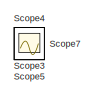
[diagram: root canvas - part 1/2, top left region]
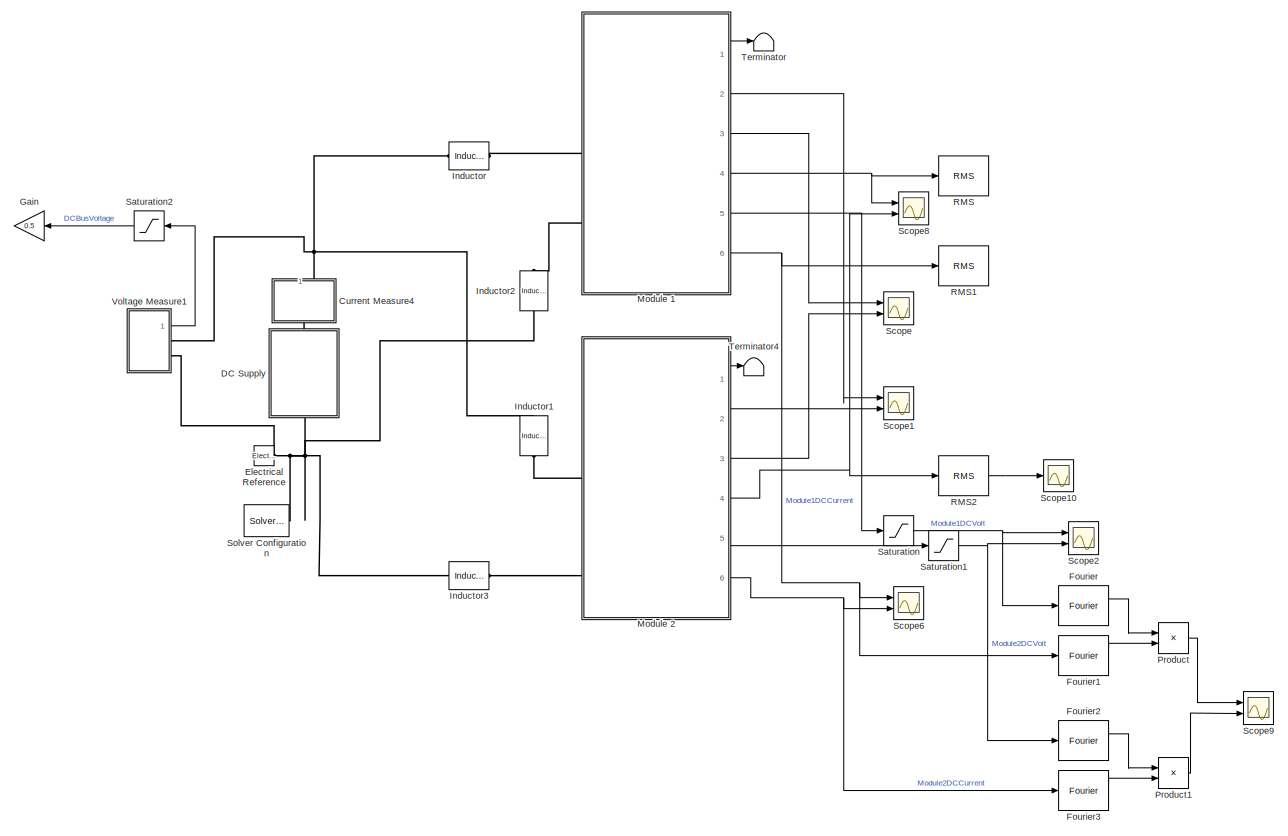
[diagram: root canvas - part 2/2, bottom center region]
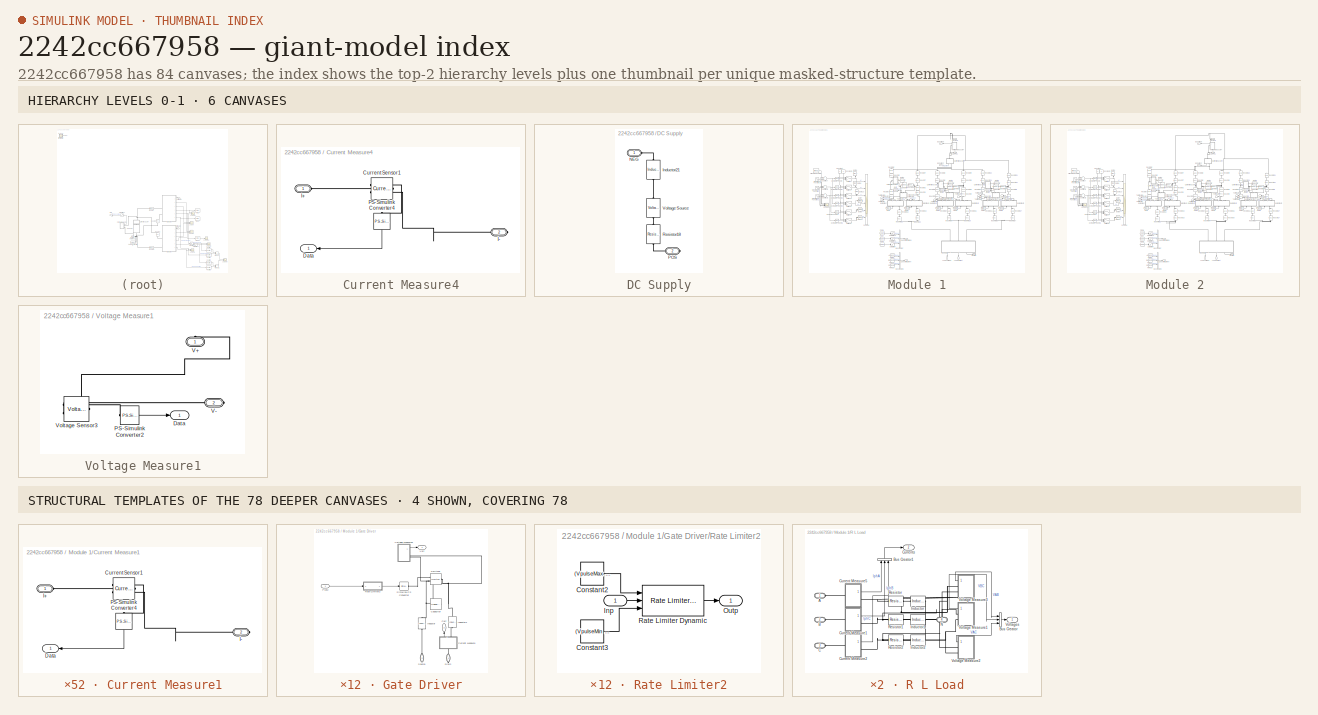
[diagram: thumbnail index - top-2 hierarchy levels (6 canvases) + 4 structural-template representatives of the remaining 78 canvases]
MODEL slx_2242cc667958
KIND model
CONFIG AbsTol = auto
CONFIG FixedStep = SampleTime*1e-2
CONFIG MaxStep = auto
CONFIG MinStep = SampleTime*1e-2
CONFIG RelTol = 1e-3
CONFIG SampleTimeConstraint = Unconstrained
CONFIG Solver = FixedStepAuto
CONFIG SolverMode = SingleTasking
CONFIG SolverName = FixedStepAuto
CONFIG StartTime = 0.0
CONFIG StopTime = 30e-3
BLOCK [SubSystem] Current Measure4
  Ports = [0, 1, 0, 0, 0, 1, 1]
  RequestExecContextInheritance = off
  Variant = off
BLOCK [Reference] Current Measure4/Current Sensor1  REF=fl_lib/Electrical/Electrical Sensors/Current Sensor
  Ports = [0, 0, 0, 0, 0, 1, 2]
  SourceBlock = fl_lib/Electrical/Electrical Sensors/Current Sensor
  SourceType = Current Sensor
BLOCK [Outport] Current Measure4/Data
  IconDisplay = Port number
BLOCK [PMIOPort] Current Measure4/I+
  Port = 1
  Side = Left
BLOCK [PMIOPort] Current Measure4/I-
  Port = 2
  Side = Right
BLOCK [Reference] Current Measure4/PS-Simulink Converter4  REF=nesl_utility/PS-Simulink
Converter
  Ports = [0, 1, 0, 0, 0, 1]
  SourceBlock = nesl_utility/PS-Simulink\nConverter
  SourceType = PS-Simulink\nConverter
BLOCK [SubSystem] DC Supply
  Ports = [0, 0, 0, 0, 0, 1, 1]
  RequestExecContextInheritance = off
  Variant = off
BLOCK [Reference] DC Supply/Inductor21  REF=elec_lib/Passive Devices/Inductor
  Ports = [0, 0, 0, 0, 0, 1, 1]
  SourceBlock = elec_lib/Passive Devices/Inductor
  SourceType = Inductor
BLOCK [PMIOPort] DC Supply/NEG
  Port = 1
  Side = Left
BLOCK [PMIOPort] DC Supply/POS
  Port = 2
  Side = Right
BLOCK [Reference] DC Supply/Resistor18  REF=elec_lib/Passive Devices/Resistor
  Ports = [0, 0, 0, 0, 0, 1, 1]
  SourceBlock = elec_lib/Passive Devices/Resistor
  SourceType = Resistor
BLOCK [Reference] DC Supply/Voltage Source  REF=elec_lib/Sources/Voltage Source
  Ports = [0, 0, 0, 0, 0, 1, 1]
  SourceBlock = elec_lib/Sources/Voltage Source
  SourceType = Voltage Source
BLOCK [Reference] Electrical Reference  REF=fl_lib/Electrical/Electrical Elements/Electrical Reference
  Ports = [0, 0, 0, 0, 0, 1]
  SourceBlock = fl_lib/Electrical/Electrical Elements/Electrical Reference
  SourceType = Electrical Reference
BLOCK [Reference] Fourier  REF=powerlib_meascontrol/Measurements/Fourier
  Ports = [1, 2]
  SourceBlock = powerlib_meascontrol/Measurements/Fourier
  SourceType = Fourier
BLOCK [Reference] Fourier1  REF=powerlib_meascontrol/Measurements/Fourier
  Ports = [1, 2]
  SourceBlock = powerlib_meascontrol/Measurements/Fourier
  SourceType = Fourier
BLOCK [Reference] Fourier2  REF=powerlib_meascontrol/Measurements/Fourier
  Ports = [1, 2]
  SourceBlock = powerlib_meascontrol/Measurements/Fourier
  SourceType = Fourier
BLOCK [Reference] Fourier3  REF=powerlib_meascontrol/Measurements/Fourier
  Ports = [1, 2]
  SourceBlock = powerlib_meascontrol/Measurements/Fourier
  SourceType = Fourier
BLOCK [Gain] Gain
  Gain = 0.5
  OutDataTypeStr = Inherit: Inherit via internal rule
  ParamDataTypeStr = Inherit: Inherit via internal rule
  SaturateOnIntegerOverflow = off
BLOCK [Reference] Inductor  REF=elec_lib/Passive Devices/Inductor
  Ports = [0, 0, 0, 0, 0, 1, 1]
  SourceBlock = elec_lib/Passive Devices/Inductor
  SourceType = Inductor
BLOCK [Reference] Inductor1  REF=elec_lib/Passive Devices/Inductor
  Ports = [0, 0, 0, 0, 0, 1, 1]
  SourceBlock = elec_lib/Passive Devices/Inductor
  SourceType = Inductor
BLOCK [Reference] Inductor2  REF=elec_lib/Passive Devices/Inductor
  Ports = [0, 0, 0, 0, 0, 1, 1]
  SourceBlock = elec_lib/Passive Devices/Inductor
  SourceType = Inductor
BLOCK [Reference] Inductor3  REF=elec_lib/Passive Devices/Inductor
  Ports = [0, 0, 0, 0, 0, 1, 1]
  SourceBlock = elec_lib/Passive Devices/Inductor
  SourceType = Inductor
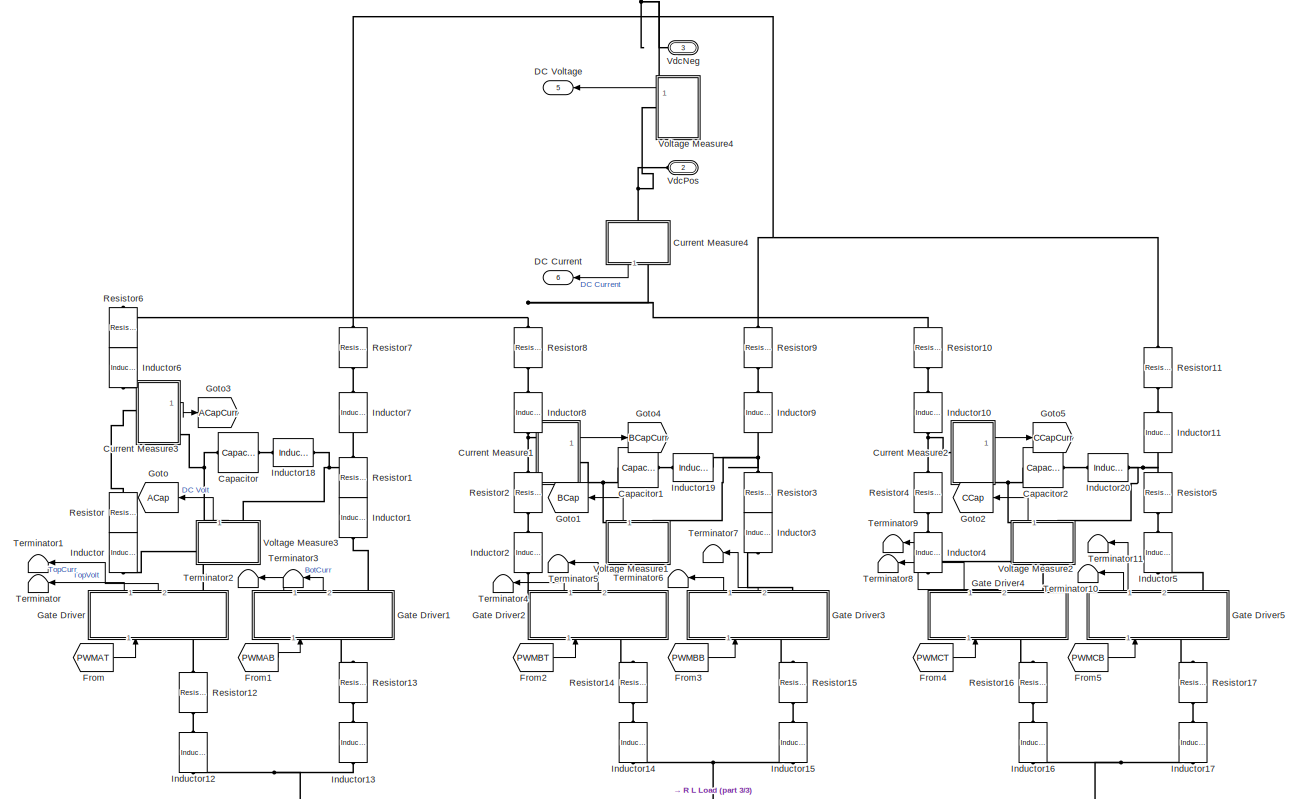
[diagram: Module 1 - part 1/3, central region]
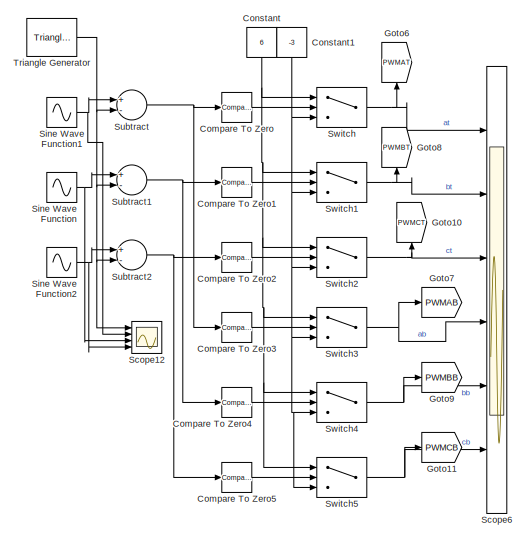
[diagram: Module 1 - part 2/3, middle left region]
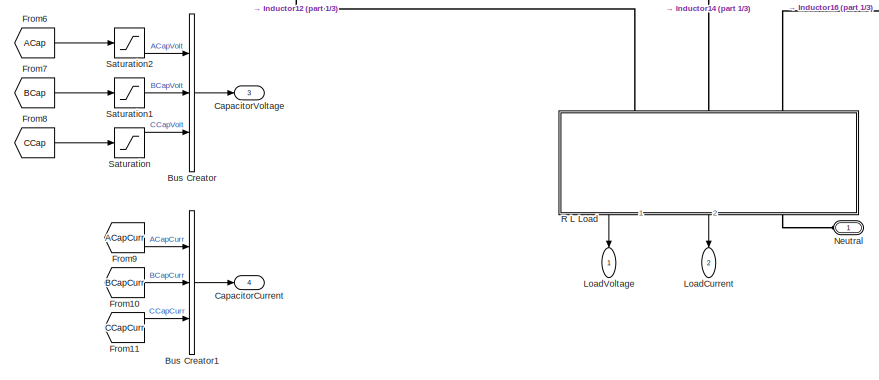
[diagram: Module 1 - part 3/3, bottom center region]
BLOCK [SubSystem] Module 1
  Ports = [0, 6, 0, 0, 0, 3]
  RequestExecContextInheritance = off
  Variant = off
BLOCK [BusCreator] Module 1/Bus Creator
  DisplayOption = bar
  InheritFromInputs = on
  Inputs = 3
  Ports = [3, 1]
BLOCK [BusCreator] Module 1/Bus Creator1
  DisplayOption = bar
  InheritFromInputs = on
  Inputs = 3
  Ports = [3, 1]
BLOCK [Reference] Module 1/Capacitor  REF=elec_lib/Passive Devices/Capacitor
  Ports = [0, 0, 0, 0, 0, 1, 1]
  SourceBlock = elec_lib/Passive Devices/Capacitor
  SourceType = Capacitor
BLOCK [Reference] Module 1/Capacitor1  REF=elec_lib/Passive Devices/Capacitor
  Ports = [0, 0, 0, 0, 0, 1, 1]
  SourceBlock = elec_lib/Passive Devices/Capacitor
  SourceType = Capacitor
BLOCK [Reference] Module 1/Capacitor2  REF=elec_lib/Passive Devices/Capacitor
  Ports = [0, 0, 0, 0, 0, 1, 1]
  SourceBlock = elec_lib/Passive Devices/Capacitor
  SourceType = Capacitor
BLOCK [Outport] Module 1/CapacitorCurrent
  IconDisplay = Port number
  Port = 4
BLOCK [Outport] Module 1/CapacitorVoltage
  IconDisplay = Port number
  Port = 3
BLOCK [Reference] Module 1/Compare To Zero  REF=simulink/Logic and Bit
Operations/Compare
To Zero
  Ports = [1, 1]
  SourceBlock = simulink/Logic and Bit\nOperations/Compare\nTo Zero
  SourceType = Compare To Zero
BLOCK [Reference] Module 1/Compare To Zero1  REF=simulink/Logic and Bit
Operations/Compare
To Zero
  Ports = [1, 1]
  SourceBlock = simulink/Logic and Bit\nOperations/Compare\nTo Zero
  SourceType = Compare To Zero
BLOCK [Reference] Module 1/Compare To Zero2  REF=simulink/Logic and Bit
Operations/Compare
To Zero
  Ports = [1, 1]
  SourceBlock = simulink/Logic and Bit\nOperations/Compare\nTo Zero
  SourceType = Compare To Zero
BLOCK [Reference] Module 1/Compare To Zero3  REF=simulink/Logic and Bit
Operations/Compare
To Zero
  Ports = [1, 1]
  SourceBlock = simulink/Logic and Bit\nOperations/Compare\nTo Zero
  SourceType = Compare To Zero
BLOCK [Reference] Module 1/Compare To Zero4  REF=simulink/Logic and Bit
Operations/Compare
To Zero
  Ports = [1, 1]
  SourceBlock = simulink/Logic and Bit\nOperations/Compare\nTo Zero
  SourceType = Compare To Zero
BLOCK [Reference] Module 1/Compare To Zero5  REF=simulink/Logic and Bit
Operations/Compare
To Zero
  Ports = [1, 1]
  SourceBlock = simulink/Logic and Bit\nOperations/Compare\nTo Zero
  SourceType = Compare To Zero
BLOCK [Constant] Module 1/Constant
  Value = 6
BLOCK [Constant] Module 1/Constant1
  Value = -3
BLOCK [SubSystem] Module 1/Current Measure1
  Ports = [0, 1, 0, 0, 0, 1, 1]
  RequestExecContextInheritance = off
  Variant = off
BLOCK [Reference] Module 1/Current Measure1/Current Sensor1  REF=fl_lib/Electrical/Electrical Sensors/Current Sensor
  Ports = [0, 0, 0, 0, 0, 1, 2]
  SourceBlock = fl_lib/Electrical/Electrical Sensors/Current Sensor
  SourceType = Current Sensor
BLOCK [Outport] Module 1/Current Measure1/Data
  IconDisplay = Port number
BLOCK [PMIOPort] Module 1/Current Measure1/I+
  Port = 1
  Side = Left
BLOCK [PMIOPort] Module 1/Current Measure1/I-
  Port = 2
  Side = Right
BLOCK [Reference] Module 1/Current Measure1/PS-Simulink Converter4  REF=nesl_utility/PS-Simulink
Converter
  Ports = [0, 1, 0, 0, 0, 1]
  SourceBlock = nesl_utility/PS-Simulink\nConverter
  SourceType = PS-Simulink\nConverter
BLOCK [SubSystem] Module 1/Current Measure2
  Ports = [0, 1, 0, 0, 0, 1, 1]
  RequestExecContextInheritance = off
  Variant = off
BLOCK [Reference] Module 1/Current Measure2/Current Sensor1  REF=fl_lib/Electrical/Electrical Sensors/Current Sensor
  Ports = [0, 0, 0, 0, 0, 1, 2]
  SourceBlock = fl_lib/Electrical/Electrical Sensors/Current Sensor
  SourceType = Current Sensor
BLOCK [Outport] Module 1/Current Measure2/Data
  IconDisplay = Port number
BLOCK [PMIOPort] Module 1/Current Measure2/I+
  Port = 1
  Side = Left
BLOCK [PMIOPort] Module 1/Current Measure2/I-
  Port = 2
  Side = Right
BLOCK [Reference] Module 1/Current Measure2/PS-Simulink Converter4  REF=nesl_utility/PS-Simulink
Converter
  Ports = [0, 1, 0, 0, 0, 1]
  SourceBlock = nesl_utility/PS-Simulink\nConverter
  SourceType = PS-Simulink\nConverter
BLOCK [SubSystem] Module 1/Current Measure3
  Ports = [0, 1, 0, 0, 0, 1, 1]
  RequestExecContextInheritance = off
  Variant = off
BLOCK [Reference] Module 1/Current Measure3/Current Sensor1  REF=fl_lib/Electrical/Electrical Sensors/Current Sensor
  Ports = [0, 0, 0, 0, 0, 1, 2]
  SourceBlock = fl_lib/Electrical/Electrical Sensors/Current Sensor
  SourceType = Current Sensor
BLOCK [Outport] Module 1/Current Measure3/Data
  IconDisplay = Port number
BLOCK [PMIOPort] Module 1/Current Measure3/I+
  Port = 1
  Side = Left
BLOCK [PMIOPort] Module 1/Current Measure3/I-
  Port = 2
  Side = Right
BLOCK [Reference] Module 1/Current Measure3/PS-Simulink Converter4  REF=nesl_utility/PS-Simulink
Converter
  Ports = [0, 1, 0, 0, 0, 1]
  SourceBlock = nesl_utility/PS-Simulink\nConverter
  SourceType = PS-Simulink\nConverter
BLOCK [SubSystem] Module 1/Current Measure4
  Ports = [0, 1, 0, 0, 0, 1, 1]
  RequestExecContextInheritance = off
  Variant = off
BLOCK [Reference] Module 1/Current Measure4/Current Sensor1  REF=fl_lib/Electrical/Electrical Sensors/Current Sensor
  Ports = [0, 0, 0, 0, 0, 1, 2]
  SourceBlock = fl_lib/Electrical/Electrical Sensors/Current Sensor
  SourceType = Current Sensor
BLOCK [Outport] Module 1/Current Measure4/Data
  IconDisplay = Port number
BLOCK [PMIOPort] Module 1/Current Measure4/I+
  Port = 1
  Side = Left
BLOCK [PMIOPort] Module 1/Current Measure4/I-
  Port = 2
  Side = Right
BLOCK [Reference] Module 1/Current Measure4/PS-Simulink Converter4  REF=nesl_utility/PS-Simulink
Converter
  Ports = [0, 1, 0, 0, 0, 1]
  SourceBlock = nesl_utility/PS-Simulink\nConverter
  SourceType = PS-Simulink\nConverter
BLOCK [Outport] Module 1/DC Current
  IconDisplay = Port number
  Port = 6
BLOCK [Outport] Module 1/DC Voltage
  IconDisplay = Port number
  Port = 5
BLOCK [From] Module 1/From
  GotoTag = PWMAT
BLOCK [From] Module 1/From1
  GotoTag = PWMAB
BLOCK [From] Module 1/From10
  GotoTag = BCapCurr
BLOCK [From] Module 1/From11
  GotoTag = CCapCurr
BLOCK [From] Module 1/From2
  GotoTag = PWMBT
BLOCK [From] Module 1/From3
  GotoTag = PWMBB
BLOCK [From] Module 1/From4
  GotoTag = PWMCT
BLOCK [From] Module 1/From5
  GotoTag = PWMCB
BLOCK [From] Module 1/From6
  GotoTag = ACap
BLOCK [From] Module 1/From7
  GotoTag = BCap
BLOCK [From] Module 1/From8
  GotoTag = CCap
BLOCK [From] Module 1/From9
  GotoTag = ACapCurr
BLOCK [SubSystem] Module 1/Gate Driver
  Ports = [1, 2, 0, 0, 0, 1, 1]
  RequestExecContextInheritance = off
  Variant = off
BLOCK [Reference] Module 1/Gate Driver/Capacitor  REF=elec_lib/Passive Devices/Capacitor
  Ports = [0, 0, 0, 0, 0, 1, 1]
  SourceBlock = elec_lib/Passive Devices/Capacitor
  SourceType = Capacitor
BLOCK [Outport] Module 1/Gate Driver/Curr
  IconDisplay = Port number
  Port = 2
BLOCK [SubSystem] Module 1/Gate Driver/Current Measure
  Ports = [0, 1, 0, 0, 0, 1, 1]
  RequestExecContextInheritance = off
  Variant = off
BLOCK [Reference] Module 1/Gate Driver/Current Measure/Current Sensor1  REF=fl_lib/Electrical/Electrical Sensors/Current Sensor
  Ports = [0, 0, 0, 0, 0, 1, 2]
  SourceBlock = fl_lib/Electrical/Electrical Sensors/Current Sensor
  SourceType = Current Sensor
BLOCK [Outport] Module 1/Gate Driver/Current Measure/Data
  IconDisplay = Port number
BLOCK [PMIOPort] Module 1/Gate Driver/Current Measure/I+
  Port = 1
  Side = Left
BLOCK [PMIOPort] Module 1/Gate Driver/Current Measure/I-
  Port = 2
  Side = Right
BLOCK [Reference] Module 1/Gate Driver/Current Measure/PS-Simulink Converter4  REF=nesl_utility/PS-Simulink
Converter
  Ports = [0, 1, 0, 0, 0, 1]
  SourceBlock = nesl_utility/PS-Simulink\nConverter
  SourceType = PS-Simulink\nConverter
BLOCK [PMIOPort] Module 1/Gate Driver/Drain
  Port = 1
  Side = Right
BLOCK [Reference] Module 1/Gate Driver/Inductor  REF=elec_lib/Passive Devices/Inductor
  Ports = [0, 0, 0, 0, 0, 1, 1]
  SourceBlock = elec_lib/Passive Devices/Inductor
  SourceType = Inductor
BLOCK [Reference] Module 1/Gate Driver/Inductor1  REF=elec_lib/Passive Devices/Inductor
  Ports = [0, 0, 0, 0, 0, 1, 1]
  SourceBlock = elec_lib/Passive Devices/Inductor
  SourceType = Inductor
BLOCK [Inport] Module 1/Gate Driver/PWM
  IconDisplay = Port number
BLOCK [SubSystem] Module 1/Gate Driver/Rate Limiter2
  Ports = [1, 1]
  RequestExecContextInheritance = off
  Variant = off
BLOCK [Constant] Module 1/Gate Driver/Rate Limiter2/Constant2
  Value = (VpulseMax - VpulseMin)/1e-9
BLOCK [Constant] Module 1/Gate Driver/Rate Limiter2/Constant3
  Value = (VpulseMin - VpulseMax)/1e-9
BLOCK [Inport] Module 1/Gate Driver/Rate Limiter2/Inp
  IconDisplay = Port number
BLOCK [Outport] Module 1/Gate Driver/Rate Limiter2/Outp
  IconDisplay = Port number
BLOCK [Reference] Module 1/Gate Driver/Rate Limiter2/Rate Limiter Dynamic  REF=simulink/Discontinuities/Rate Limiter
Dynamic
  Ports = [3, 1]
  SourceBlock = simulink/Discontinuities/Rate Limiter\nDynamic
  SourceType = Rate Limiter Dynamic
BLOCK [Reference] Module 1/Gate Driver/Simulink-PS Converter  REF=nesl_utility/Simulink-PS
Converter
  Ports = [1, 0, 0, 0, 0, 0, 1]
  SourceBlock = nesl_utility/Simulink-PS\nConverter
  SourceType = Simulink-PS\nConverter
BLOCK [PMIOPort] Module 1/Gate Driver/Source
  Port = 2
  Side = Left
BLOCK [Reference] Module 1/Gate Driver/Switch6  REF=fl_lib/Electrical/Electrical Elements/Switch
  Ports = [0, 0, 0, 0, 0, 1, 2]
  SourceBlock = fl_lib/Electrical/Electrical Elements/Switch
  SourceType = Switch
BLOCK [Outport] Module 1/Gate Driver/Volt
  IconDisplay = Port number
BLOCK [SubSystem] Module 1/Gate Driver/Voltage Measure3
  Ports = [0, 1, 0, 0, 0, 0, 2]
  RequestExecContextInheritance = off
  Variant = off
BLOCK [Outport] Module 1/Gate Driver/Voltage Measure3/Data
  IconDisplay = Port number
BLOCK [Reference] Module 1/Gate Driver/Voltage Measure3/PS-Simulink Converter2  REF=nesl_utility/PS-Simulink
Converter
  Ports = [0, 1, 0, 0, 0, 1]
  SourceBlock = nesl_utility/PS-Simulink\nConverter
  SourceType = PS-Simulink\nConverter
BLOCK [PMIOPort] Module 1/Gate Driver/Voltage Measure3/V+
  Port = 1
  Side = Right
BLOCK [PMIOPort] Module 1/Gate Driver/Voltage Measure3/V-
  Port = 2
  Side = Right
BLOCK [Reference] Module 1/Gate Driver/Voltage Measure3/Voltage Sensor3  REF=fl_lib/Electrical/Electrical Sensors/Voltage Sensor
  Ports = [0, 0, 0, 0, 0, 1, 2]
  SourceBlock = fl_lib/Electrical/Electrical Sensors/Voltage Sensor
  SourceType = Voltage Sensor
BLOCK [SubSystem] Module 1/Gate Driver1
  Ports = [1, 2, 0, 0, 0, 1, 1]
  RequestExecContextInheritance = off
  Variant = off
BLOCK [Reference] Module 1/Gate Driver1/Capacitor  REF=elec_lib/Passive Devices/Capacitor
  Ports = [0, 0, 0, 0, 0, 1, 1]
  SourceBlock = elec_lib/Passive Devices/Capacitor
  SourceType = Capacitor
BLOCK [Outport] Module 1/Gate Driver1/Curr
  IconDisplay = Port number
  Port = 2
BLOCK [SubSystem] Module 1/Gate Driver1/Current Measure
  Ports = [0, 1, 0, 0, 0, 1, 1]
  RequestExecContextInheritance = off
  Variant = off
BLOCK [Reference] Module 1/Gate Driver1/Current Measure/Current Sensor1  REF=fl_lib/Electrical/Electrical Sensors/Current Sensor
  Ports = [0, 0, 0, 0, 0, 1, 2]
  SourceBlock = fl_lib/Electrical/Electrical Sensors/Current Sensor
  SourceType = Current Sensor
BLOCK [Outport] Module 1/Gate Driver1/Current Measure/Data
  IconDisplay = Port number
BLOCK [PMIOPort] Module 1/Gate Driver1/Current Measure/I+
  Port = 1
  Side = Left
BLOCK [PMIOPort] Module 1/Gate Driver1/Current Measure/I-
  Port = 2
  Side = Right
BLOCK [Reference] Module 1/Gate Driver1/Current Measure/PS-Simulink Converter4  REF=nesl_utility/PS-Simulink
Converter
  Ports = [0, 1, 0, 0, 0, 1]
  SourceBlock = nesl_utility/PS-Simulink\nConverter
  SourceType = PS-Simulink\nConverter
BLOCK [PMIOPort] Module 1/Gate Driver1/Drain
  Port = 1
  Side = Left
BLOCK [Reference] Module 1/Gate Driver1/Inductor  REF=elec_lib/Passive Devices/Inductor
  Ports = [0, 0, 0, 0, 0, 1, 1]
  SourceBlock = elec_lib/Passive Devices/Inductor
  SourceType = Inductor
BLOCK [Reference] Module 1/Gate Driver1/Inductor1  REF=elec_lib/Passive Devices/Inductor
  Ports = [0, 0, 0, 0, 0, 1, 1]
  SourceBlock = elec_lib/Passive Devices/Inductor
  SourceType = Inductor
BLOCK [Inport] Module 1/Gate Driver1/PWM
  IconDisplay = Port number
BLOCK [SubSystem] Module 1/Gate Driver1/Rate Limiter2
  Ports = [1, 1]
  RequestExecContextInheritance = off
  Variant = off
BLOCK [Constant] Module 1/Gate Driver1/Rate Limiter2/Constant2
  Value = (VpulseMax - VpulseMin)/1e-9
BLOCK [Constant] Module 1/Gate Driver1/Rate Limiter2/Constant3
  Value = (VpulseMin - VpulseMax)/1e-9
BLOCK [Inport] Module 1/Gate Driver1/Rate Limiter2/Inp
  IconDisplay = Port number
BLOCK [Outport] Module 1/Gate Driver1/Rate Limiter2/Outp
  IconDisplay = Port number
BLOCK [Reference] Module 1/Gate Driver1/Rate Limiter2/Rate Limiter Dynamic  REF=simulink/Discontinuities/Rate Limiter
Dynamic
  Ports = [3, 1]
  SourceBlock = simulink/Discontinuities/Rate Limiter\nDynamic
  SourceType = Rate Limiter Dynamic
BLOCK [Reference] Module 1/Gate Driver1/Simulink-PS Converter  REF=nesl_utility/Simulink-PS
Converter
  Ports = [1, 0, 0, 0, 0, 0, 1]
  SourceBlock = nesl_utility/Simulink-PS\nConverter
  SourceType = Simulink-PS\nConverter
BLOCK [PMIOPort] Module 1/Gate Driver1/Source
  Port = 2
  Side = Right
BLOCK [Reference] Module 1/Gate Driver1/Switch6  REF=fl_lib/Electrical/Electrical Elements/Switch
  Ports = [0, 0, 0, 0, 0, 1, 2]
  SourceBlock = fl_lib/Electrical/Electrical Elements/Switch
  SourceType = Switch
BLOCK [Outport] Module 1/Gate Driver1/Volt
  IconDisplay = Port number
BLOCK [SubSystem] Module 1/Gate Driver1/Voltage Measure3
  Ports = [0, 1, 0, 0, 0, 0, 2]
  RequestExecContextInheritance = off
  Variant = off
BLOCK [Outport] Module 1/Gate Driver1/Voltage Measure3/Data
  IconDisplay = Port number
BLOCK [Reference] Module 1/Gate Driver1/Voltage Measure3/PS-Simulink Converter2  REF=nesl_utility/PS-Simulink
Converter
  Ports = [0, 1, 0, 0, 0, 1]
  SourceBlock = nesl_utility/PS-Simulink\nConverter
  SourceType = PS-Simulink\nConverter
BLOCK [PMIOPort] Module 1/Gate Driver1/Voltage Measure3/V+
  Port = 1
  Side = Right
BLOCK [PMIOPort] Module 1/Gate Driver1/Voltage Measure3/V-
  Port = 2
  Side = Right
BLOCK [Reference] Module 1/Gate Driver1/Voltage Measure3/Voltage Sensor3  REF=fl_lib/Electrical/Electrical Sensors/Voltage Sensor
  Ports = [0, 0, 0, 0, 0, 1, 2]
  SourceBlock = fl_lib/Electrical/Electrical Sensors/Voltage Sensor
  SourceType = Voltage Sensor
BLOCK [SubSystem] Module 1/Gate Driver2
  Ports = [1, 2, 0, 0, 0, 1, 1]
  RequestExecContextInheritance = off
  Variant = off
BLOCK [Reference] Module 1/Gate Driver2/Capacitor  REF=elec_lib/Passive Devices/Capacitor
  Ports = [0, 0, 0, 0, 0, 1, 1]
  SourceBlock = elec_lib/Passive Devices/Capacitor
  SourceType = Capacitor
BLOCK [Outport] Module 1/Gate Driver2/Curr
  IconDisplay = Port number
  Port = 2
BLOCK [SubSystem] Module 1/Gate Driver2/Current Measure
  Ports = [0, 1, 0, 0, 0, 1, 1]
  RequestExecContextInheritance = off
  Variant = off
BLOCK [Reference] Module 1/Gate Driver2/Current Measure/Current Sensor1  REF=fl_lib/Electrical/Electrical Sensors/Current Sensor
  Ports = [0, 0, 0, 0, 0, 1, 2]
  SourceBlock = fl_lib/Electrical/Electrical Sensors/Current Sensor
  SourceType = Current Sensor
BLOCK [Outport] Module 1/Gate Driver2/Current Measure/Data
  IconDisplay = Port number
BLOCK [PMIOPort] Module 1/Gate Driver2/Current Measure/I+
  Port = 1
  Side = Left
BLOCK [PMIOPort] Module 1/Gate Driver2/Current Measure/I-
  Port = 2
  Side = Right
BLOCK [Reference] Module 1/Gate Driver2/Current Measure/PS-Simulink Converter4  REF=nesl_utility/PS-Simulink
Converter
  Ports = [0, 1, 0, 0, 0, 1]
  SourceBlock = nesl_utility/PS-Simulink\nConverter
  SourceType = PS-Simulink\nConverter
BLOCK [PMIOPort] Module 1/Gate Driver2/Drain
  Port = 1
  Side = Right
BLOCK [Reference] Module 1/Gate Driver2/Inductor  REF=elec_lib/Passive Devices/Inductor
  Ports = [0, 0, 0, 0, 0, 1, 1]
  SourceBlock = elec_lib/Passive Devices/Inductor
  SourceType = Inductor
BLOCK [Reference] Module 1/Gate Driver2/Inductor1  REF=elec_lib/Passive Devices/Inductor
  Ports = [0, 0, 0, 0, 0, 1, 1]
  SourceBlock = elec_lib/Passive Devices/Inductor
  SourceType = Inductor
BLOCK [Inport] Module 1/Gate Driver2/PWM
  IconDisplay = Port number
BLOCK [SubSystem] Module 1/Gate Driver2/Rate Limiter2
  Ports = [1, 1]
  RequestExecContextInheritance = off
  Variant = off
BLOCK [Constant] Module 1/Gate Driver2/Rate Limiter2/Constant2
  Value = (VpulseMax - VpulseMin)/1e-9
BLOCK [Constant] Module 1/Gate Driver2/Rate Limiter2/Constant3
  Value = (VpulseMin - VpulseMax)/1e-9
BLOCK [Inport] Module 1/Gate Driver2/Rate Limiter2/Inp
  IconDisplay = Port number
BLOCK [Outport] Module 1/Gate Driver2/Rate Limiter2/Outp
  IconDisplay = Port number
BLOCK [Reference] Module 1/Gate Driver2/Rate Limiter2/Rate Limiter Dynamic  REF=simulink/Discontinuities/Rate Limiter
Dynamic
  Ports = [3, 1]
  SourceBlock = simulink/Discontinuities/Rate Limiter\nDynamic
  SourceType = Rate Limiter Dynamic
BLOCK [Reference] Module 1/Gate Driver2/Simulink-PS Converter  REF=nesl_utility/Simulink-PS
Converter
  Ports = [1, 0, 0, 0, 0, 0, 1]
  SourceBlock = nesl_utility/Simulink-PS\nConverter
  SourceType = Simulink-PS\nConverter
BLOCK [PMIOPort] Module 1/Gate Driver2/Source
  Port = 2
  Side = Left
BLOCK [Reference] Module 1/Gate Driver2/Switch6  REF=fl_lib/Electrical/Electrical Elements/Switch
  Ports = [0, 0, 0, 0, 0, 1, 2]
  SourceBlock = fl_lib/Electrical/Electrical Elements/Switch
  SourceType = Switch
BLOCK [Outport] Module 1/Gate Driver2/Volt
  IconDisplay = Port number
BLOCK [SubSystem] Module 1/Gate Driver2/Voltage Measure3
  Ports = [0, 1, 0, 0, 0, 0, 2]
  RequestExecContextInheritance = off
  Variant = off
BLOCK [Outport] Module 1/Gate Driver2/Voltage Measure3/Data
  IconDisplay = Port number
BLOCK [Reference] Module 1/Gate Driver2/Voltage Measure3/PS-Simulink Converter2  REF=nesl_utility/PS-Simulink
Converter
  Ports = [0, 1, 0, 0, 0, 1]
  SourceBlock = nesl_utility/PS-Simulink\nConverter
  SourceType = PS-Simulink\nConverter
BLOCK [PMIOPort] Module 1/Gate Driver2/Voltage Measure3/V+
  Port = 1
  Side = Right
BLOCK [PMIOPort] Module 1/Gate Driver2/Voltage Measure3/V-
  Port = 2
  Side = Right
BLOCK [Reference] Module 1/Gate Driver2/Voltage Measure3/Voltage Sensor3  REF=fl_lib/Electrical/Electrical Sensors/Voltage Sensor
  Ports = [0, 0, 0, 0, 0, 1, 2]
  SourceBlock = fl_lib/Electrical/Electrical Sensors/Voltage Sensor
  SourceType = Voltage Sensor
BLOCK [SubSystem] Module 1/Gate Driver3
  Ports = [1, 2, 0, 0, 0, 1, 1]
  RequestExecContextInheritance = off
  Variant = off
BLOCK [Reference] Module 1/Gate Driver3/Capacitor  REF=elec_lib/Passive Devices/Capacitor
  Ports = [0, 0, 0, 0, 0, 1, 1]
  SourceBlock = elec_lib/Passive Devices/Capacitor
  SourceType = Capacitor
BLOCK [Outport] Module 1/Gate Driver3/Curr
  IconDisplay = Port number
  Port = 2
BLOCK [SubSystem] Module 1/Gate Driver3/Current Measure
  Ports = [0, 1, 0, 0, 0, 1, 1]
  RequestExecContextInheritance = off
  Variant = off
BLOCK [Reference] Module 1/Gate Driver3/Current Measure/Current Sensor1  REF=fl_lib/Electrical/Electrical Sensors/Current Sensor
  Ports = [0, 0, 0, 0, 0, 1, 2]
  SourceBlock = fl_lib/Electrical/Electrical Sensors/Current Sensor
  SourceType = Current Sensor
BLOCK [Outport] Module 1/Gate Driver3/Current Measure/Data
  IconDisplay = Port number
BLOCK [PMIOPort] Module 1/Gate Driver3/Current Measure/I+
  Port = 1
  Side = Left
BLOCK [PMIOPort] Module 1/Gate Driver3/Current Measure/I-
  Port = 2
  Side = Right
BLOCK [Reference] Module 1/Gate Driver3/Current Measure/PS-Simulink Converter4  REF=nesl_utility/PS-Simulink
Converter
  Ports = [0, 1, 0, 0, 0, 1]
  SourceBlock = nesl_utility/PS-Simulink\nConverter
  SourceType = PS-Simulink\nConverter
BLOCK [PMIOPort] Module 1/Gate Driver3/Drain
  Port = 1
  Side = Left
BLOCK [Reference] Module 1/Gate Driver3/Inductor  REF=elec_lib/Passive Devices/Inductor
  Ports = [0, 0, 0, 0, 0, 1, 1]
  SourceBlock = elec_lib/Passive Devices/Inductor
  SourceType = Inductor
BLOCK [Reference] Module 1/Gate Driver3/Inductor1  REF=elec_lib/Passive Devices/Inductor
  Ports = [0, 0, 0, 0, 0, 1, 1]
  SourceBlock = elec_lib/Passive Devices/Inductor
  SourceType = Inductor
BLOCK [Inport] Module 1/Gate Driver3/PWM
  IconDisplay = Port number
BLOCK [SubSystem] Module 1/Gate Driver3/Rate Limiter2
  Ports = [1, 1]
  RequestExecContextInheritance = off
  Variant = off
BLOCK [Constant] Module 1/Gate Driver3/Rate Limiter2/Constant2
  Value = (VpulseMax - VpulseMin)/1e-9
BLOCK [Constant] Module 1/Gate Driver3/Rate Limiter2/Constant3
  Value = (VpulseMin - VpulseMax)/1e-9
BLOCK [Inport] Module 1/Gate Driver3/Rate Limiter2/Inp
  IconDisplay = Port number
BLOCK [Outport] Module 1/Gate Driver3/Rate Limiter2/Outp
  IconDisplay = Port number
BLOCK [Reference] Module 1/Gate Driver3/Rate Limiter2/Rate Limiter Dynamic  REF=simulink/Discontinuities/Rate Limiter
Dynamic
  Ports = [3, 1]
  SourceBlock = simulink/Discontinuities/Rate Limiter\nDynamic
  SourceType = Rate Limiter Dynamic
BLOCK [Reference] Module 1/Gate Driver3/Simulink-PS Converter  REF=nesl_utility/Simulink-PS
Converter
  Ports = [1, 0, 0, 0, 0, 0, 1]
  SourceBlock = nesl_utility/Simulink-PS\nConverter
  SourceType = Simulink-PS\nConverter
BLOCK [PMIOPort] Module 1/Gate Driver3/Source
  Port = 2
  Side = Right
BLOCK [Reference] Module 1/Gate Driver3/Switch6  REF=fl_lib/Electrical/Electrical Elements/Switch
  Ports = [0, 0, 0, 0, 0, 1, 2]
  SourceBlock = fl_lib/Electrical/Electrical Elements/Switch
  SourceType = Switch
BLOCK [Outport] Module 1/Gate Driver3/Volt
  IconDisplay = Port number
BLOCK [SubSystem] Module 1/Gate Driver3/Voltage Measure3
  Ports = [0, 1, 0, 0, 0, 0, 2]
  RequestExecContextInheritance = off
  Variant = off
BLOCK [Outport] Module 1/Gate Driver3/Voltage Measure3/Data
  IconDisplay = Port number
BLOCK [Reference] Module 1/Gate Driver3/Voltage Measure3/PS-Simulink Converter2  REF=nesl_utility/PS-Simulink
Converter
  Ports = [0, 1, 0, 0, 0, 1]
  SourceBlock = nesl_utility/PS-Simulink\nConverter
  SourceType = PS-Simulink\nConverter
BLOCK [PMIOPort] Module 1/Gate Driver3/Voltage Measure3/V+
  Port = 1
  Side = Right
BLOCK [PMIOPort] Module 1/Gate Driver3/Voltage Measure3/V-
  Port = 2
  Side = Right
BLOCK [Reference] Module 1/Gate Driver3/Voltage Measure3/Voltage Sensor3  REF=fl_lib/Electrical/Electrical Sensors/Voltage Sensor
  Ports = [0, 0, 0, 0, 0, 1, 2]
  SourceBlock = fl_lib/Electrical/Electrical Sensors/Voltage Sensor
  SourceType = Voltage Sensor
BLOCK [SubSystem] Module 1/Gate Driver4
  Ports = [1, 2, 0, 0, 0, 1, 1]
  RequestExecContextInheritance = off
  Variant = off
BLOCK [Reference] Module 1/Gate Driver4/Capacitor  REF=elec_lib/Passive Devices/Capacitor
  Ports = [0, 0, 0, 0, 0, 1, 1]
  SourceBlock = elec_lib/Passive Devices/Capacitor
  SourceType = Capacitor
BLOCK [Outport] Module 1/Gate Driver4/Curr
  IconDisplay = Port number
  Port = 2
BLOCK [SubSystem] Module 1/Gate Driver4/Current Measure
  Ports = [0, 1, 0, 0, 0, 1, 1]
  RequestExecContextInheritance = off
  Variant = off
BLOCK [Reference] Module 1/Gate Driver4/Current Measure/Current Sensor1  REF=fl_lib/Electrical/Electrical Sensors/Current Sensor
  Ports = [0, 0, 0, 0, 0, 1, 2]
  SourceBlock = fl_lib/Electrical/Electrical Sensors/Current Sensor
  SourceType = Current Sensor
BLOCK [Outport] Module 1/Gate Driver4/Current Measure/Data
  IconDisplay = Port number
BLOCK [PMIOPort] Module 1/Gate Driver4/Current Measure/I+
  Port = 1
  Side = Left
BLOCK [PMIOPort] Module 1/Gate Driver4/Current Measure/I-
  Port = 2
  Side = Right
BLOCK [Reference] Module 1/Gate Driver4/Current Measure/PS-Simulink Converter4  REF=nesl_utility/PS-Simulink
Converter
  Ports = [0, 1, 0, 0, 0, 1]
  SourceBlock = nesl_utility/PS-Simulink\nConverter
  SourceType = PS-Simulink\nConverter
BLOCK [PMIOPort] Module 1/Gate Driver4/Drain
  Port = 1
  Side = Right
BLOCK [Reference] Module 1/Gate Driver4/Inductor  REF=elec_lib/Passive Devices/Inductor
  Ports = [0, 0, 0, 0, 0, 1, 1]
  SourceBlock = elec_lib/Passive Devices/Inductor
  SourceType = Inductor
BLOCK [Reference] Module 1/Gate Driver4/Inductor1  REF=elec_lib/Passive Devices/Inductor
  Ports = [0, 0, 0, 0, 0, 1, 1]
  SourceBlock = elec_lib/Passive Devices/Inductor
  SourceType = Inductor
BLOCK [Inport] Module 1/Gate Driver4/PWM
  IconDisplay = Port number
BLOCK [SubSystem] Module 1/Gate Driver4/Rate Limiter2
  Ports = [1, 1]
  RequestExecContextInheritance = off
  Variant = off
BLOCK [Constant] Module 1/Gate Driver4/Rate Limiter2/Constant2
  Value = (VpulseMax - VpulseMin)/1e-9
BLOCK [Constant] Module 1/Gate Driver4/Rate Limiter2/Constant3
  Value = (VpulseMin - VpulseMax)/1e-9
BLOCK [Inport] Module 1/Gate Driver4/Rate Limiter2/Inp
  IconDisplay = Port number
BLOCK [Outport] Module 1/Gate Driver4/Rate Limiter2/Outp
  IconDisplay = Port number
BLOCK [Reference] Module 1/Gate Driver4/Rate Limiter2/Rate Limiter Dynamic  REF=simulink/Discontinuities/Rate Limiter
Dynamic
  Ports = [3, 1]
  SourceBlock = simulink/Discontinuities/Rate Limiter\nDynamic
  SourceType = Rate Limiter Dynamic
BLOCK [Reference] Module 1/Gate Driver4/Simulink-PS Converter  REF=nesl_utility/Simulink-PS
Converter
  Ports = [1, 0, 0, 0, 0, 0, 1]
  SourceBlock = nesl_utility/Simulink-PS\nConverter
  SourceType = Simulink-PS\nConverter
BLOCK [PMIOPort] Module 1/Gate Driver4/Source
  Port = 2
  Side = Left
BLOCK [Reference] Module 1/Gate Driver4/Switch6  REF=fl_lib/Electrical/Electrical Elements/Switch
  Ports = [0, 0, 0, 0, 0, 1, 2]
  SourceBlock = fl_lib/Electrical/Electrical Elements/Switch
  SourceType = Switch
BLOCK [Outport] Module 1/Gate Driver4/Volt
  IconDisplay = Port number
BLOCK [SubSystem] Module 1/Gate Driver4/Voltage Measure3
  Ports = [0, 1, 0, 0, 0, 0, 2]
  RequestExecContextInheritance = off
  Variant = off
BLOCK [Outport] Module 1/Gate Driver4/Voltage Measure3/Data
  IconDisplay = Port number
BLOCK [Reference] Module 1/Gate Driver4/Voltage Measure3/PS-Simulink Converter2  REF=nesl_utility/PS-Simulink
Converter
  Ports = [0, 1, 0, 0, 0, 1]
  SourceBlock = nesl_utility/PS-Simulink\nConverter
  SourceType = PS-Simulink\nConverter
BLOCK [PMIOPort] Module 1/Gate Driver4/Voltage Measure3/V+
  Port = 1
  Side = Right
BLOCK [PMIOPort] Module 1/Gate Driver4/Voltage Measure3/V-
  Port = 2
  Side = Right
BLOCK [Reference] Module 1/Gate Driver4/Voltage Measure3/Voltage Sensor3  REF=fl_lib/Electrical/Electrical Sensors/Voltage Sensor
  Ports = [0, 0, 0, 0, 0, 1, 2]
  SourceBlock = fl_lib/Electrical/Electrical Sensors/Voltage Sensor
  SourceType = Voltage Sensor
BLOCK [SubSystem] Module 1/Gate Driver5
  Ports = [1, 2, 0, 0, 0, 1, 1]
  RequestExecContextInheritance = off
  Variant = off
BLOCK [Reference] Module 1/Gate Driver5/Capacitor  REF=elec_lib/Passive Devices/Capacitor
  Ports = [0, 0, 0, 0, 0, 1, 1]
  SourceBlock = elec_lib/Passive Devices/Capacitor
  SourceType = Capacitor
BLOCK [Outport] Module 1/Gate Driver5/Curr
  IconDisplay = Port number
  Port = 2
BLOCK [SubSystem] Module 1/Gate Driver5/Current Measure
  Ports = [0, 1, 0, 0, 0, 1, 1]
  RequestExecContextInheritance = off
  Variant = off
BLOCK [Reference] Module 1/Gate Driver5/Current Measure/Current Sensor1  REF=fl_lib/Electrical/Electrical Sensors/Current Sensor
  Ports = [0, 0, 0, 0, 0, 1, 2]
  SourceBlock = fl_lib/Electrical/Electrical Sensors/Current Sensor
  SourceType = Current Sensor
BLOCK [Outport] Module 1/Gate Driver5/Current Measure/Data
  IconDisplay = Port number
BLOCK [PMIOPort] Module 1/Gate Driver5/Current Measure/I+
  Port = 1
  Side = Left
BLOCK [PMIOPort] Module 1/Gate Driver5/Current Measure/I-
  Port = 2
  Side = Right
BLOCK [Reference] Module 1/Gate Driver5/Current Measure/PS-Simulink Converter4  REF=nesl_utility/PS-Simulink
Converter
  Ports = [0, 1, 0, 0, 0, 1]
  SourceBlock = nesl_utility/PS-Simulink\nConverter
  SourceType = PS-Simulink\nConverter
BLOCK [PMIOPort] Module 1/Gate Driver5/Drain
  Port = 1
  Side = Left
BLOCK [Reference] Module 1/Gate Driver5/Inductor  REF=elec_lib/Passive Devices/Inductor
  Ports = [0, 0, 0, 0, 0, 1, 1]
  SourceBlock = elec_lib/Passive Devices/Inductor
  SourceType = Inductor
BLOCK [Reference] Module 1/Gate Driver5/Inductor1  REF=elec_lib/Passive Devices/Inductor
  Ports = [0, 0, 0, 0, 0, 1, 1]
  SourceBlock = elec_lib/Passive Devices/Inductor
  SourceType = Inductor
BLOCK [Inport] Module 1/Gate Driver5/PWM
  IconDisplay = Port number
BLOCK [SubSystem] Module 1/Gate Driver5/Rate Limiter2
  Ports = [1, 1]
  RequestExecContextInheritance = off
  Variant = off
BLOCK [Constant] Module 1/Gate Driver5/Rate Limiter2/Constant2
  Value = (VpulseMax - VpulseMin)/1e-9
BLOCK [Constant] Module 1/Gate Driver5/Rate Limiter2/Constant3
  Value = (VpulseMin - VpulseMax)/1e-9
BLOCK [Inport] Module 1/Gate Driver5/Rate Limiter2/Inp
  IconDisplay = Port number
BLOCK [Outport] Module 1/Gate Driver5/Rate Limiter2/Outp
  IconDisplay = Port number
BLOCK [Reference] Module 1/Gate Driver5/Rate Limiter2/Rate Limiter Dynamic  REF=simulink/Discontinuities/Rate Limiter
Dynamic
  Ports = [3, 1]
  SourceBlock = simulink/Discontinuities/Rate Limiter\nDynamic
  SourceType = Rate Limiter Dynamic
BLOCK [Reference] Module 1/Gate Driver5/Simulink-PS Converter  REF=nesl_utility/Simulink-PS
Converter
  Ports = [1, 0, 0, 0, 0, 0, 1]
  SourceBlock = nesl_utility/Simulink-PS\nConverter
  SourceType = Simulink-PS\nConverter
BLOCK [PMIOPort] Module 1/Gate Driver5/Source
  Port = 2
  Side = Right
BLOCK [Reference] Module 1/Gate Driver5/Switch6  REF=fl_lib/Electrical/Electrical Elements/Switch
  Ports = [0, 0, 0, 0, 0, 1, 2]
  SourceBlock = fl_lib/Electrical/Electrical Elements/Switch
  SourceType = Switch
BLOCK [Outport] Module 1/Gate Driver5/Volt
  IconDisplay = Port number
BLOCK [SubSystem] Module 1/Gate Driver5/Voltage Measure3
  Ports = [0, 1, 0, 0, 0, 0, 2]
  RequestExecContextInheritance = off
  Variant = off
BLOCK [Outport] Module 1/Gate Driver5/Voltage Measure3/Data
  IconDisplay = Port number
BLOCK [Reference] Module 1/Gate Driver5/Voltage Measure3/PS-Simulink Converter2  REF=nesl_utility/PS-Simulink
Converter
  Ports = [0, 1, 0, 0, 0, 1]
  SourceBlock = nesl_utility/PS-Simulink\nConverter
  SourceType = PS-Simulink\nConverter
BLOCK [PMIOPort] Module 1/Gate Driver5/Voltage Measure3/V+
  Port = 1
  Side = Right
BLOCK [PMIOPort] Module 1/Gate Driver5/Voltage Measure3/V-
  Port = 2
  Side = Right
BLOCK [Reference] Module 1/Gate Driver5/Voltage Measure3/Voltage Sensor3  REF=fl_lib/Electrical/Electrical Sensors/Voltage Sensor
  Ports = [0, 0, 0, 0, 0, 1, 2]
  SourceBlock = fl_lib/Electrical/Electrical Sensors/Voltage Sensor
  SourceType = Voltage Sensor
BLOCK [Goto] Module 1/Goto
  GotoTag = ACap
BLOCK [Goto] Module 1/Goto1
  GotoTag = BCap
BLOCK [Goto] Module 1/Goto10
  GotoTag = PWMCT
BLOCK [Goto] Module 1/Goto11
  GotoTag = PWMCB
BLOCK [Goto] Module 1/Goto2
  GotoTag = CCap
BLOCK [Goto] Module 1/Goto3
  GotoTag = ACapCurr
BLOCK [Goto] Module 1/Goto4
  GotoTag = BCapCurr
BLOCK [Goto] Module 1/Goto5
  GotoTag = CCapCurr
BLOCK [Goto] Module 1/Goto6
  GotoTag = PWMAT
BLOCK [Goto] Module 1/Goto7
  GotoTag = PWMAB
BLOCK [Goto] Module 1/Goto8
  GotoTag = PWMBT
BLOCK [Goto] Module 1/Goto9
  GotoTag = PWMBB
BLOCK [Reference] Module 1/Inductor  REF=elec_lib/Passive Devices/Inductor
  Ports = [0, 0, 0, 0, 0, 1, 1]
  SourceBlock = elec_lib/Passive Devices/Inductor
  SourceType = Inductor
BLOCK [Reference] Module 1/Inductor1  REF=elec_lib/Passive Devices/Inductor
  Ports = [0, 0, 0, 0, 0, 1, 1]
  SourceBlock = elec_lib/Passive Devices/Inductor
  SourceType = Inductor
BLOCK [Reference] Module 1/Inductor10  REF=elec_lib/Passive Devices/Inductor
  Ports = [0, 0, 0, 0, 0, 1, 1]
  SourceBlock = elec_lib/Passive Devices/Inductor
  SourceType = Inductor
BLOCK [Reference] Module 1/Inductor11  REF=elec_lib/Passive Devices/Inductor
  Ports = [0, 0, 0, 0, 0, 1, 1]
  SourceBlock = elec_lib/Passive Devices/Inductor
  SourceType = Inductor
BLOCK [Reference] Module 1/Inductor12  REF=elec_lib/Passive Devices/Inductor
  Ports = [0, 0, 0, 0, 0, 1, 1]
  SourceBlock = elec_lib/Passive Devices/Inductor
  SourceType = Inductor
BLOCK [Reference] Module 1/Inductor13  REF=elec_lib/Passive Devices/Inductor
  Ports = [0, 0, 0, 0, 0, 1, 1]
  SourceBlock = elec_lib/Passive Devices/Inductor
  SourceType = Inductor
BLOCK [Reference] Module 1/Inductor14  REF=elec_lib/Passive Devices/Inductor
  Ports = [0, 0, 0, 0, 0, 1, 1]
  SourceBlock = elec_lib/Passive Devices/Inductor
  SourceType = Inductor
BLOCK [Reference] Module 1/Inductor15  REF=elec_lib/Passive Devices/Inductor
  Ports = [0, 0, 0, 0, 0, 1, 1]
  SourceBlock = elec_lib/Passive Devices/Inductor
  SourceType = Inductor
BLOCK [Reference] Module 1/Inductor16  REF=elec_lib/Passive Devices/Inductor
  Ports = [0, 0, 0, 0, 0, 1, 1]
  SourceBlock = elec_lib/Passive Devices/Inductor
  SourceType = Inductor
BLOCK [Reference] Module 1/Inductor17  REF=elec_lib/Passive Devices/Inductor
  Ports = [0, 0, 0, 0, 0, 1, 1]
  SourceBlock = elec_lib/Passive Devices/Inductor
  SourceType = Inductor
BLOCK [Reference] Module 1/Inductor18  REF=elec_lib/Passive Devices/Inductor
  Ports = [0, 0, 0, 0, 0, 1, 1]
  SourceBlock = elec_lib/Passive Devices/Inductor
  SourceType = Inductor
BLOCK [Reference] Module 1/Inductor19  REF=elec_lib/Passive Devices/Inductor
  Ports = [0, 0, 0, 0, 0, 1, 1]
  SourceBlock = elec_lib/Passive Devices/Inductor
  SourceType = Inductor
BLOCK [Reference] Module 1/Inductor2  REF=elec_lib/Passive Devices/Inductor
  Ports = [0, 0, 0, 0, 0, 1, 1]
  SourceBlock = elec_lib/Passive Devices/Inductor
  SourceType = Inductor
BLOCK [Reference] Module 1/Inductor20  REF=elec_lib/Passive Devices/Inductor
  Ports = [0, 0, 0, 0, 0, 1, 1]
  SourceBlock = elec_lib/Passive Devices/Inductor
  SourceType = Inductor
BLOCK [Reference] Module 1/Inductor3  REF=elec_lib/Passive Devices/Inductor
  Ports = [0, 0, 0, 0, 0, 1, 1]
  SourceBlock = elec_lib/Passive Devices/Inductor
  SourceType = Inductor
BLOCK [Reference] Module 1/Inductor4  REF=elec_lib/Passive Devices/Inductor
  Ports = [0, 0, 0, 0, 0, 1, 1]
  SourceBlock = elec_lib/Passive Devices/Inductor
  SourceType = Inductor
BLOCK [Reference] Module 1/Inductor5  REF=elec_lib/Passive Devices/Inductor
  Ports = [0, 0, 0, 0, 0, 1, 1]
  SourceBlock = elec_lib/Passive Devices/Inductor
  SourceType = Inductor
BLOCK [Reference] Module 1/Inductor6  REF=elec_lib/Passive Devices/Inductor
  Ports = [0, 0, 0, 0, 0, 1, 1]
  SourceBlock = elec_lib/Passive Devices/Inductor
  SourceType = Inductor
BLOCK [Reference] Module 1/Inductor7  REF=elec_lib/Passive Devices/Inductor
  Ports = [0, 0, 0, 0, 0, 1, 1]
  SourceBlock = elec_lib/Passive Devices/Inductor
  SourceType = Inductor
BLOCK [Reference] Module 1/Inductor8  REF=elec_lib/Passive Devices/Inductor
  Ports = [0, 0, 0, 0, 0, 1, 1]
  SourceBlock = elec_lib/Passive Devices/Inductor
  SourceType = Inductor
BLOCK [Reference] Module 1/Inductor9  REF=elec_lib/Passive Devices/Inductor
  Ports = [0, 0, 0, 0, 0, 1, 1]
  SourceBlock = elec_lib/Passive Devices/Inductor
  SourceType = Inductor
BLOCK [Outport] Module 1/LoadCurrent
  IconDisplay = Port number
  Port = 2
BLOCK [Outport] Module 1/LoadVoltage
  IconDisplay = Port number
BLOCK [PMIOPort] Module 1/Neutral 
  Port = 1
  Side = Left
BLOCK [SubSystem] Module 1/R L Load
  Ports = [0, 2, 0, 0, 0, 3, 1]
  RequestExecContextInheritance = off
  Variant = off
BLOCK [PMIOPort] Module 1/R L Load/A
  Port = 1
  Side = Left
BLOCK [PMIOPort] Module 1/R L Load/B
  Port = 2
  Side = Left
BLOCK [BusCreator] Module 1/R L Load/Bus Creator
  DisplayOption = bar
  InheritFromInputs = on
  Inputs = 3
  Ports = [3, 1]
BLOCK [BusCreator] Module 1/R L Load/Bus Creator1
  DisplayOption = bar
  InheritFromInputs = on
  Inputs = 3
  Ports = [3, 1]
BLOCK [PMIOPort] Module 1/R L Load/C
  Port = 3
  Side = Left
BLOCK [SubSystem] Module 1/R L Load/Current Measure1
  Ports = [0, 1, 0, 0, 0, 1, 1]
  RequestExecContextInheritance = off
  Variant = off
BLOCK [Reference] Module 1/R L Load/Current Measure1/Current Sensor1  REF=fl_lib/Electrical/Electrical Sensors/Current Sensor
  Ports = [0, 0, 0, 0, 0, 1, 2]
  SourceBlock = fl_lib/Electrical/Electrical Sensors/Current Sensor
  SourceType = Current Sensor
BLOCK [Outport] Module 1/R L Load/Current Measure1/Data
  IconDisplay = Port number
BLOCK [PMIOPort] Module 1/R L Load/Current Measure1/I+
  Port = 1
  Side = Left
BLOCK [PMIOPort] Module 1/R L Load/Current Measure1/I-
  Port = 2
  Side = Right
BLOCK [Reference] Module 1/R L Load/Current Measure1/PS-Simulink Converter4  REF=nesl_utility/PS-Simulink
Converter
  Ports = [0, 1, 0, 0, 0, 1]
  SourceBlock = nesl_utility/PS-Simulink\nConverter
  SourceType = PS-Simulink\nConverter
BLOCK [SubSystem] Module 1/R L Load/Current Measure2
  Ports = [0, 1, 0, 0, 0, 1, 1]
  RequestExecContextInheritance = off
  Variant = off
BLOCK [Reference] Module 1/R L Load/Current Measure2/Current Sensor1  REF=fl_lib/Electrical/Electrical Sensors/Current Sensor
  Ports = [0, 0, 0, 0, 0, 1, 2]
  SourceBlock = fl_lib/Electrical/Electrical Sensors/Current Sensor
  SourceType = Current Sensor
BLOCK [Outport] Module 1/R L Load/Current Measure2/Data
  IconDisplay = Port number
BLOCK [PMIOPort] Module 1/R L Load/Current Measure2/I+
  Port = 1
  Side = Left
BLOCK [PMIOPort] Module 1/R L Load/Current Measure2/I-
  Port = 2
  Side = Right
BLOCK [Reference] Module 1/R L Load/Current Measure2/PS-Simulink Converter4  REF=nesl_utility/PS-Simulink
Converter
  Ports = [0, 1, 0, 0, 0, 1]
  SourceBlock = nesl_utility/PS-Simulink\nConverter
  SourceType = PS-Simulink\nConverter
BLOCK [SubSystem] Module 1/R L Load/Current Measure5
  Ports = [0, 1, 0, 0, 0, 1, 1]
  RequestExecContextInheritance = off
  Variant = off
BLOCK [Reference] Module 1/R L Load/Current Measure5/Current Sensor1  REF=fl_lib/Electrical/Electrical Sensors/Current Sensor
  Ports = [0, 0, 0, 0, 0, 1, 2]
  SourceBlock = fl_lib/Electrical/Electrical Sensors/Current Sensor
  SourceType = Current Sensor
BLOCK [Outport] Module 1/R L Load/Current Measure5/Data
  IconDisplay = Port number
BLOCK [PMIOPort] Module 1/R L Load/Current Measure5/I+
  Port = 1
  Side = Left
BLOCK [PMIOPort] Module 1/R L Load/Current Measure5/I-
  Port = 2
  Side = Right
BLOCK [Reference] Module 1/R L Load/Current Measure5/PS-Simulink Converter4  REF=nesl_utility/PS-Simulink
Converter
  Ports = [0, 1, 0, 0, 0, 1]
  SourceBlock = nesl_utility/PS-Simulink\nConverter
  SourceType = PS-Simulink\nConverter
BLOCK [Outport] Module 1/R L Load/Currents
  IconDisplay = Port number
  Port = 2
BLOCK [Reference] Module 1/R L Load/Inductor  REF=elec_lib/Passive Devices/Inductor
  Ports = [0, 0, 0, 0, 0, 1, 1]
  SourceBlock = elec_lib/Passive Devices/Inductor
  SourceType = Inductor
BLOCK [Reference] Module 1/R L Load/Inductor1  REF=elec_lib/Passive Devices/Inductor
  Ports = [0, 0, 0, 0, 0, 1, 1]
  SourceBlock = elec_lib/Passive Devices/Inductor
  SourceType = Inductor
BLOCK [Reference] Module 1/R L Load/Inductor2  REF=elec_lib/Passive Devices/Inductor
  Ports = [0, 0, 0, 0, 0, 1, 1]
  SourceBlock = elec_lib/Passive Devices/Inductor
  SourceType = Inductor
BLOCK [PMIOPort] Module 1/R L Load/N
  Port = 4
  Side = Right
BLOCK [Reference] Module 1/R L Load/Resistor  REF=elec_lib/Passive Devices/Resistor
  Ports = [0, 0, 0, 0, 0, 1, 1]
  SourceBlock = elec_lib/Passive Devices/Resistor
  SourceType = Resistor
BLOCK [Reference] Module 1/R L Load/Resistor1  REF=elec_lib/Passive Devices/Resistor
  Ports = [0, 0, 0, 0, 0, 1, 1]
  SourceBlock = elec_lib/Passive Devices/Resistor
  SourceType = Resistor
BLOCK [Reference] Module 1/R L Load/Resistor2  REF=elec_lib/Passive Devices/Resistor
  Ports = [0, 0, 0, 0, 0, 1, 1]
  SourceBlock = elec_lib/Passive Devices/Resistor
  SourceType = Resistor
BLOCK [SubSystem] Module 1/R L Load/Voltage Measure1
  Ports = [0, 1, 0, 0, 0, 0, 2]
  RequestExecContextInheritance = off
  Variant = off
BLOCK [Outport] Module 1/R L Load/Voltage Measure1/Data
  IconDisplay = Port number
BLOCK [Reference] Module 1/R L Load/Voltage Measure1/PS-Simulink Converter2  REF=nesl_utility/PS-Simulink
Converter
  Ports = [0, 1, 0, 0, 0, 1]
  SourceBlock = nesl_utility/PS-Simulink\nConverter
  SourceType = PS-Simulink\nConverter
BLOCK [PMIOPort] Module 1/R L Load/Voltage Measure1/V+
  Port = 1
  Side = Right
BLOCK [PMIOPort] Module 1/R L Load/Voltage Measure1/V-
  Port = 2
  Side = Right
BLOCK [Reference] Module 1/R L Load/Voltage Measure1/Voltage Sensor3  REF=fl_lib/Electrical/Electrical Sensors/Voltage Sensor
  Ports = [0, 0, 0, 0, 0, 1, 2]
  SourceBlock = fl_lib/Electrical/Electrical Sensors/Voltage Sensor
  SourceType = Voltage Sensor
BLOCK [SubSystem] Module 1/R L Load/Voltage Measure2
  Ports = [0, 1, 0, 0, 0, 0, 2]
  RequestExecContextInheritance = off
  Variant = off
BLOCK [Outport] Module 1/R L Load/Voltage Measure2/Data
  IconDisplay = Port number
BLOCK [Reference] Module 1/R L Load/Voltage Measure2/PS-Simulink Converter2  REF=nesl_utility/PS-Simulink
Converter
  Ports = [0, 1, 0, 0, 0, 1]
  SourceBlock = nesl_utility/PS-Simulink\nConverter
  SourceType = PS-Simulink\nConverter
BLOCK [PMIOPort] Module 1/R L Load/Voltage Measure2/V+
  Port = 1
  Side = Right
BLOCK [PMIOPort] Module 1/R L Load/Voltage Measure2/V-
  Port = 2
  Side = Right
BLOCK [Reference] Module 1/R L Load/Voltage Measure2/Voltage Sensor3  REF=fl_lib/Electrical/Electrical Sensors/Voltage Sensor
  Ports = [0, 0, 0, 0, 0, 1, 2]
  SourceBlock = fl_lib/Electrical/Electrical Sensors/Voltage Sensor
  SourceType = Voltage Sensor
BLOCK [SubSystem] Module 1/R L Load/Voltage Measure3
  Ports = [0, 1, 0, 0, 0, 0, 2]
  RequestExecContextInheritance = off
  Variant = off
BLOCK [Outport] Module 1/R L Load/Voltage Measure3/Data
  IconDisplay = Port number
BLOCK [Reference] Module 1/R L Load/Voltage Measure3/PS-Simulink Converter2  REF=nesl_utility/PS-Simulink
Converter
  Ports = [0, 1, 0, 0, 0, 1]
  SourceBlock = nesl_utility/PS-Simulink\nConverter
  SourceType = PS-Simulink\nConverter
BLOCK [PMIOPort] Module 1/R L Load/Voltage Measure3/V+
  Port = 1
  Side = Right
BLOCK [PMIOPort] Module 1/R L Load/Voltage Measure3/V-
  Port = 2
  Side = Right
BLOCK [Reference] Module 1/R L Load/Voltage Measure3/Voltage Sensor3  REF=fl_lib/Electrical/Electrical Sensors/Voltage Sensor
  Ports = [0, 0, 0, 0, 0, 1, 2]
  SourceBlock = fl_lib/Electrical/Electrical Sensors/Voltage Sensor
  SourceType = Voltage Sensor
BLOCK [Outport] Module 1/R L Load/Voltages
  IconDisplay = Port number
BLOCK [Reference] Module 1/Resistor  REF=elec_lib/Passive Devices/Resistor
  Ports = [0, 0, 0, 0, 0, 1, 1]
  SourceBlock = elec_lib/Passive Devices/Resistor
  SourceType = Resistor
BLOCK [Reference] Module 1/Resistor1  REF=elec_lib/Passive Devices/Resistor
  Ports = [0, 0, 0, 0, 0, 1, 1]
  SourceBlock = elec_lib/Passive Devices/Resistor
  SourceType = Resistor
BLOCK [Reference] Module 1/Resistor10  REF=elec_lib/Passive Devices/Resistor
  Ports = [0, 0, 0, 0, 0, 1, 1]
  SourceBlock = elec_lib/Passive Devices/Resistor
  SourceType = Resistor
BLOCK [Reference] Module 1/Resistor11  REF=elec_lib/Passive Devices/Resistor
  Ports = [0, 0, 0, 0, 0, 1, 1]
  SourceBlock = elec_lib/Passive Devices/Resistor
  SourceType = Resistor
BLOCK [Reference] Module 1/Resistor12  REF=elec_lib/Passive Devices/Resistor
  Ports = [0, 0, 0, 0, 0, 1, 1]
  SourceBlock = elec_lib/Passive Devices/Resistor
  SourceType = Resistor
BLOCK [Reference] Module 1/Resistor13  REF=elec_lib/Passive Devices/Resistor
  Ports = [0, 0, 0, 0, 0, 1, 1]
  SourceBlock = elec_lib/Passive Devices/Resistor
  SourceType = Resistor
BLOCK [Reference] Module 1/Resistor14  REF=elec_lib/Passive Devices/Resistor
  Ports = [0, 0, 0, 0, 0, 1, 1]
  SourceBlock = elec_lib/Passive Devices/Resistor
  SourceType = Resistor
BLOCK [Reference] Module 1/Resistor15  REF=elec_lib/Passive Devices/Resistor
  Ports = [0, 0, 0, 0, 0, 1, 1]
  SourceBlock = elec_lib/Passive Devices/Resistor
  SourceType = Resistor
BLOCK [Reference] Module 1/Resistor16  REF=elec_lib/Passive Devices/Resistor
  Ports = [0, 0, 0, 0, 0, 1, 1]
  SourceBlock = elec_lib/Passive Devices/Resistor
  SourceType = Resistor
BLOCK [Reference] Module 1/Resistor17  REF=elec_lib/Passive Devices/Resistor
  Ports = [0, 0, 0, 0, 0, 1, 1]
  SourceBlock = elec_lib/Passive Devices/Resistor
  SourceType = Resistor
BLOCK [Reference] Module 1/Resistor2  REF=elec_lib/Passive Devices/Resistor
  Ports = [0, 0, 0, 0, 0, 1, 1]
  SourceBlock = elec_lib/Passive Devices/Resistor
  SourceType = Resistor
BLOCK [Reference] Module 1/Resistor3  REF=elec_lib/Passive Devices/Resistor
  Ports = [0, 0, 0, 0, 0, 1, 1]
  SourceBlock = elec_lib/Passive Devices/Resistor
  SourceType = Resistor
BLOCK [Reference] Module 1/Resistor4  REF=elec_lib/Passive Devices/Resistor
  Ports = [0, 0, 0, 0, 0, 1, 1]
  SourceBlock = elec_lib/Passive Devices/Resistor
  SourceType = Resistor
BLOCK [Reference] Module 1/Resistor5  REF=elec_lib/Passive Devices/Resistor
  Ports = [0, 0, 0, 0, 0, 1, 1]
  SourceBlock = elec_lib/Passive Devices/Resistor
  SourceType = Resistor
BLOCK [Reference] Module 1/Resistor6  REF=elec_lib/Passive Devices/Resistor
  Ports = [0, 0, 0, 0, 0, 1, 1]
  SourceBlock = elec_lib/Passive Devices/Resistor
  SourceType = Resistor
BLOCK [Reference] Module 1/Resistor7  REF=elec_lib/Passive Devices/Resistor
  Ports = [0, 0, 0, 0, 0, 1, 1]
  SourceBlock = elec_lib/Passive Devices/Resistor
  SourceType = Resistor
BLOCK [Reference] Module 1/Resistor8  REF=elec_lib/Passive Devices/Resistor
  Ports = [0, 0, 0, 0, 0, 1, 1]
  SourceBlock = elec_lib/Passive Devices/Resistor
  SourceType = Resistor
BLOCK [Reference] Module 1/Resistor9  REF=elec_lib/Passive Devices/Resistor
  Ports = [0, 0, 0, 0, 0, 1, 1]
  SourceBlock = elec_lib/Passive Devices/Resistor
  SourceType = Resistor
BLOCK [Saturate] Module 1/Saturation
  InputPortMap = u0
  LowerLimit = -20
  Ports = [1, 1]
  UpperLimit = Vmodule*1.5
BLOCK [Saturate] Module 1/Saturation1
  InputPortMap = u0
  LowerLimit = -20
  Ports = [1, 1]
  UpperLimit = Vmodule*1.5
BLOCK [Saturate] Module 1/Saturation2
  InputPortMap = u0
  LowerLimit = -20
  Ports = [1, 1]
  UpperLimit = Vmodule*1.5
BLOCK [Scope] Module 1/Scope12
  NumInputPorts = 4
  Ports = [4]
  ScopeSpecificationString = Simulink.scopes.TimeScopeBlockCfg('CurrentConfiguration', extmgr.ConfigurationSet(extmgr.Configuration('Core','General UI',true),extmgr.Configuration('Core','Source UI',true),extmgr.Configuration('Sources','WiredSimulink',true,'DataLoggingVariableName','ScopeData3'),extmgr.Configuration('Visuals','Time Domain',true,'SerializedDisplays',{struct('MinYLimReal','-1.25','MaxYLimReal','1.25','YLabelReal...<+1451ch>
BLOCK [Scope] Module 1/Scope6
  Commented = on
  NumInputPorts = 6
  Ports = [6]
  ScopeSpecificationString = Simulink.scopes.TimeScopeBlockCfg('CurrentConfiguration', extmgr.ConfigurationSet(extmgr.Configuration('Core','General UI',true),extmgr.Configuration('Core','Source UI',true),extmgr.Configuration('Sources','WiredSimulink',true,'DataLoggingVariableName','ScopeData9','DataLoggingLimitDataPoints',true),extmgr.Configuration('Visuals','Time Domain',true,'SerializedDisplays',{struct('MinYLimReal','-4.12...<+5169ch>
BLOCK [Sin] Module 1/Sine Wave Function
  Amplitude = ModulationIndex1
  Frequency = ffund*2*pi
  Phase = -2*pi/3
  Ports = [0, 1]
  SampleTime = 0
BLOCK [Sin] Module 1/Sine Wave Function1
  Amplitude = ModulationIndex1
  Frequency = ffund*2*pi
  Ports = [0, 1]
  SampleTime = 0
BLOCK [Sin] Module 1/Sine Wave Function2
  Amplitude = ModulationIndex1
  Frequency = ffund*2*pi
  Phase = 2*pi/3
  Ports = [0, 1]
  SampleTime = 0
BLOCK [Sum] Module 1/Subtract
  InputSameDT = off
  Inputs = +-
  OutDataTypeStr = Inherit: Inherit via internal rule
  Ports = [2, 1]
  SaturateOnIntegerOverflow = off
BLOCK [Sum] Module 1/Subtract1
  InputSameDT = off
  Inputs = +-
  OutDataTypeStr = Inherit: Inherit via internal rule
  Ports = [2, 1]
  SaturateOnIntegerOverflow = off
BLOCK [Sum] Module 1/Subtract2
  InputSameDT = off
  Inputs = +-
  OutDataTypeStr = Inherit: Inherit via internal rule
  Ports = [2, 1]
  SaturateOnIntegerOverflow = off
BLOCK [Switch] Module 1/Switch
  Criteria = u2 > Threshold
  InputSameDT = off
  SaturateOnIntegerOverflow = off
BLOCK [Switch] Module 1/Switch1
  Criteria = u2 > Threshold
  InputSameDT = off
  SaturateOnIntegerOverflow = off
BLOCK [Switch] Module 1/Switch2
  Criteria = u2 > Threshold
  InputSameDT = off
  SaturateOnIntegerOverflow = off
BLOCK [Switch] Module 1/Switch3
  Criteria = u2 > Threshold
  InputSameDT = off
  SaturateOnIntegerOverflow = off
BLOCK [Switch] Module 1/Switch4
  Criteria = u2 > Threshold
  InputSameDT = off
  SaturateOnIntegerOverflow = off
BLOCK [Switch] Module 1/Switch5
  Criteria = u2 > Threshold
  InputSameDT = off
  SaturateOnIntegerOverflow = off
BLOCK [Terminator] Module 1/Terminator
BLOCK [Terminator] Module 1/Terminator1
BLOCK [Terminator] Module 1/Terminator10
BLOCK [Terminator] Module 1/Terminator11
BLOCK [Terminator] Module 1/Terminator2
BLOCK [Terminator] Module 1/Terminator3
BLOCK [Terminator] Module 1/Terminator4
BLOCK [Terminator] Module 1/Terminator5
BLOCK [Terminator] Module 1/Terminator6
BLOCK [Terminator] Module 1/Terminator7
BLOCK [Terminator] Module 1/Terminator8
BLOCK [Terminator] Module 1/Terminator9
BLOCK [Reference] Module 1/Triangle Generator  REF=powerlib_meascontrol/Pulse & Signal
Generators/Triangle
Generator
  Ports = [0, 1]
  SourceBlock = powerlib_meascontrol/Pulse & Signal\nGenerators/Triangle\nGenerator
  SourceType = Triangle Generator
BLOCK [PMIOPort] Module 1/VdcNeg
  Port = 3
  Side = Left
BLOCK [PMIOPort] Module 1/VdcPos
  Port = 2
  Side = Left
BLOCK [SubSystem] Module 1/Voltage Measure1
  Ports = [0, 1, 0, 0, 0, 0, 2]
  RequestExecContextInheritance = off
  Variant = off
BLOCK [Outport] Module 1/Voltage Measure1/Data
  IconDisplay = Port number
BLOCK [Reference] Module 1/Voltage Measure1/PS-Simulink Converter2  REF=nesl_utility/PS-Simulink
Converter
  Ports = [0, 1, 0, 0, 0, 1]
  SourceBlock = nesl_utility/PS-Simulink\nConverter
  SourceType = PS-Simulink\nConverter
BLOCK [PMIOPort] Module 1/Voltage Measure1/V+
  Port = 1
  Side = Right
BLOCK [PMIOPort] Module 1/Voltage Measure1/V-
  Port = 2
  Side = Right
BLOCK [Reference] Module 1/Voltage Measure1/Voltage Sensor3  REF=fl_lib/Electrical/Electrical Sensors/Voltage Sensor
  Ports = [0, 0, 0, 0, 0, 1, 2]
  SourceBlock = fl_lib/Electrical/Electrical Sensors/Voltage Sensor
  SourceType = Voltage Sensor
BLOCK [SubSystem] Module 1/Voltage Measure2
  Ports = [0, 1, 0, 0, 0, 0, 2]
  RequestExecContextInheritance = off
  Variant = off
BLOCK [Outport] Module 1/Voltage Measure2/Data
  IconDisplay = Port number
BLOCK [Reference] Module 1/Voltage Measure2/PS-Simulink Converter2  REF=nesl_utility/PS-Simulink
Converter
  Ports = [0, 1, 0, 0, 0, 1]
  SourceBlock = nesl_utility/PS-Simulink\nConverter
  SourceType = PS-Simulink\nConverter
BLOCK [PMIOPort] Module 1/Voltage Measure2/V+
  Port = 1
  Side = Right
BLOCK [PMIOPort] Module 1/Voltage Measure2/V-
  Port = 2
  Side = Right
BLOCK [Reference] Module 1/Voltage Measure2/Voltage Sensor3  REF=fl_lib/Electrical/Electrical Sensors/Voltage Sensor
  Ports = [0, 0, 0, 0, 0, 1, 2]
  SourceBlock = fl_lib/Electrical/Electrical Sensors/Voltage Sensor
  SourceType = Voltage Sensor
BLOCK [SubSystem] Module 1/Voltage Measure3
  Ports = [0, 1, 0, 0, 0, 0, 2]
  RequestExecContextInheritance = off
  Variant = off
BLOCK [Outport] Module 1/Voltage Measure3/Data
  IconDisplay = Port number
BLOCK [Reference] Module 1/Voltage Measure3/PS-Simulink Converter2  REF=nesl_utility/PS-Simulink
Converter
  Ports = [0, 1, 0, 0, 0, 1]
  SourceBlock = nesl_utility/PS-Simulink\nConverter
  SourceType = PS-Simulink\nConverter
BLOCK [PMIOPort] Module 1/Voltage Measure3/V+
  Port = 1
  Side = Right
BLOCK [PMIOPort] Module 1/Voltage Measure3/V-
  Port = 2
  Side = Right
BLOCK [Reference] Module 1/Voltage Measure3/Voltage Sensor3  REF=fl_lib/Electrical/Electrical Sensors/Voltage Sensor
  Ports = [0, 0, 0, 0, 0, 1, 2]
  SourceBlock = fl_lib/Electrical/Electrical Sensors/Voltage Sensor
  SourceType = Voltage Sensor
BLOCK [SubSystem] Module 1/Voltage Measure4
  Ports = [0, 1, 0, 0, 0, 0, 2]
  RequestExecContextInheritance = off
  Variant = off
BLOCK [Outport] Module 1/Voltage Measure4/Data
  IconDisplay = Port number
BLOCK [Reference] Module 1/Voltage Measure4/PS-Simulink Converter2  REF=nesl_utility/PS-Simulink
Converter
  Ports = [0, 1, 0, 0, 0, 1]
  SourceBlock = nesl_utility/PS-Simulink\nConverter
  SourceType = PS-Simulink\nConverter
BLOCK [PMIOPort] Module 1/Voltage Measure4/V+
  Port = 1
  Side = Right
BLOCK [PMIOPort] Module 1/Voltage Measure4/V-
  Port = 2
  Side = Right
BLOCK [Reference] Module 1/Voltage Measure4/Voltage Sensor3  REF=fl_lib/Electrical/Electrical Sensors/Voltage Sensor
  Ports = [0, 0, 0, 0, 0, 1, 2]
  SourceBlock = fl_lib/Electrical/Electrical Sensors/Voltage Sensor
  SourceType = Voltage Sensor
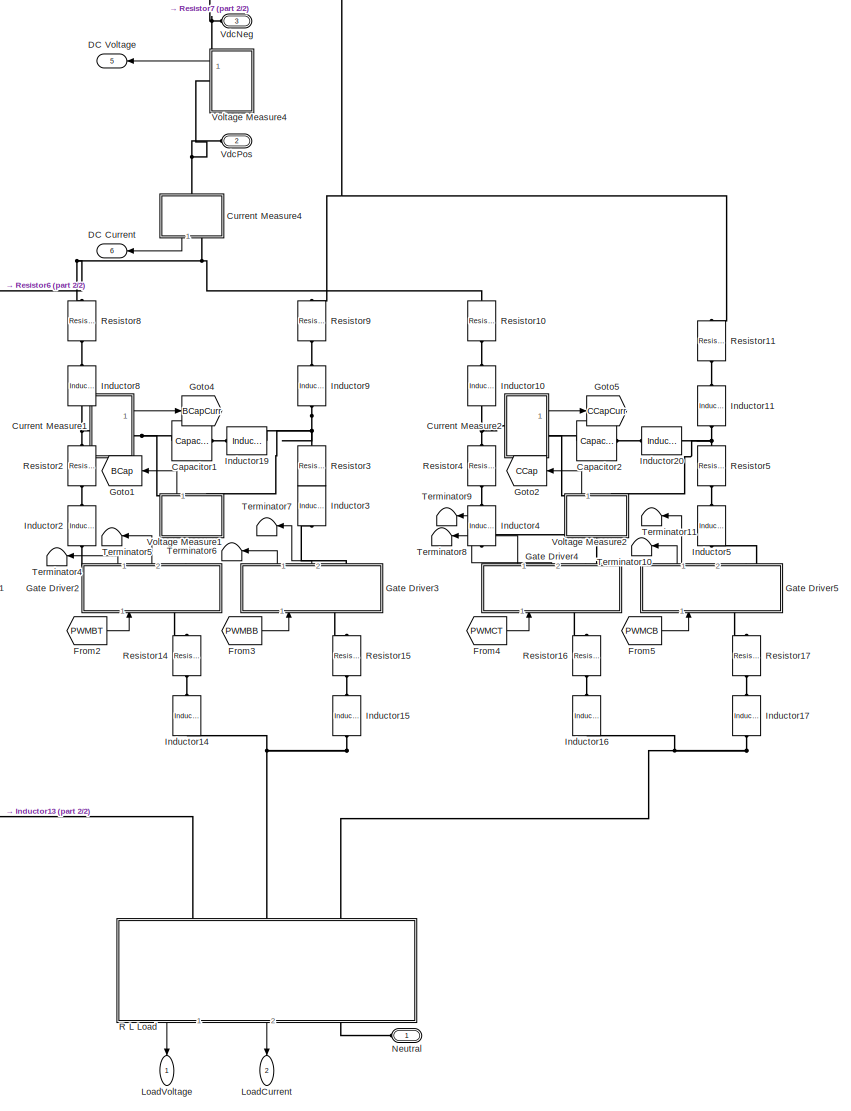
[diagram: Module 2 - part 1/2, right side, full height]
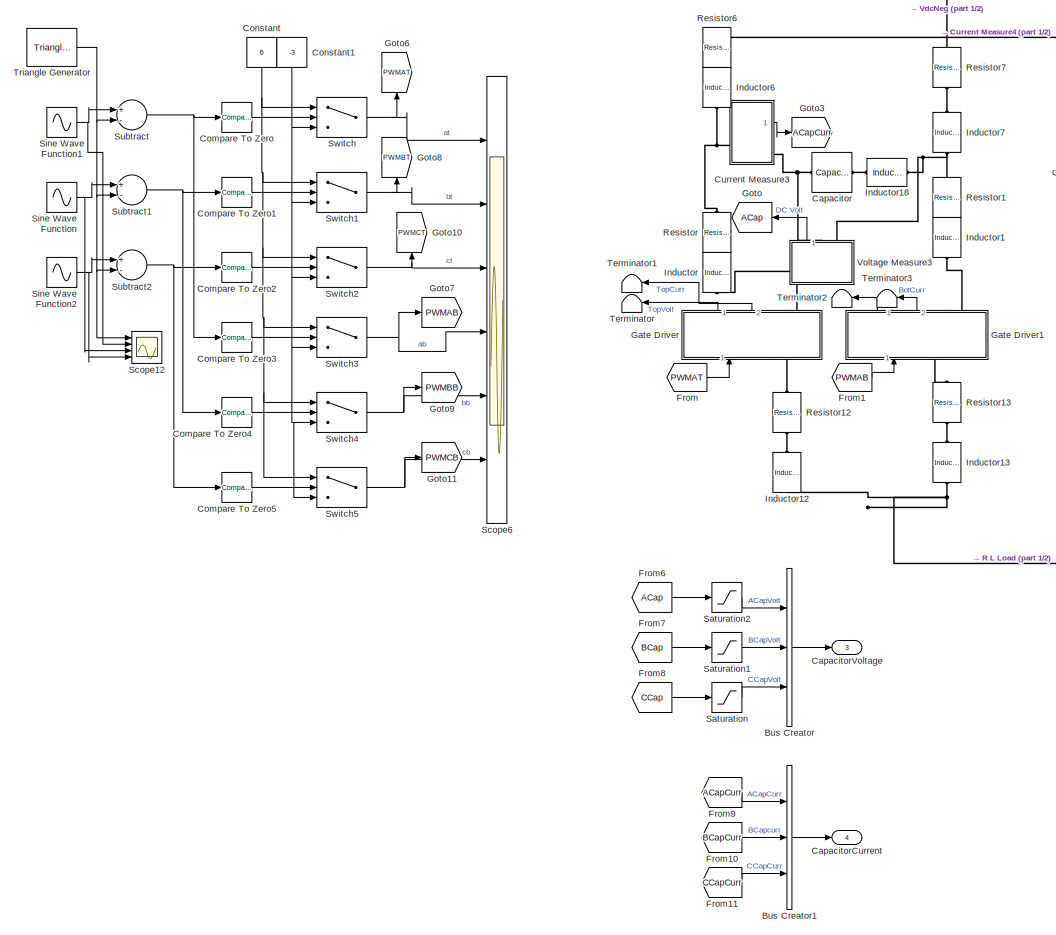
[diagram: Module 2 - part 2/2, left side, full height]
BLOCK [SubSystem] Module 2
  Ports = [0, 6, 0, 0, 0, 3]
  RequestExecContextInheritance = off
  Variant = off
BLOCK [BusCreator] Module 2/Bus Creator
  DisplayOption = bar
  InheritFromInputs = on
  Inputs = 3
  Ports = [3, 1]
BLOCK [BusCreator] Module 2/Bus Creator1
  DisplayOption = bar
  InheritFromInputs = on
  Inputs = 3
  Ports = [3, 1]
BLOCK [Reference] Module 2/Capacitor  REF=elec_lib/Passive Devices/Capacitor
  Ports = [0, 0, 0, 0, 0, 1, 1]
  SourceBlock = elec_lib/Passive Devices/Capacitor
  SourceType = Capacitor
BLOCK [Reference] Module 2/Capacitor1  REF=elec_lib/Passive Devices/Capacitor
  Ports = [0, 0, 0, 0, 0, 1, 1]
  SourceBlock = elec_lib/Passive Devices/Capacitor
  SourceType = Capacitor
BLOCK [Reference] Module 2/Capacitor2  REF=elec_lib/Passive Devices/Capacitor
  Ports = [0, 0, 0, 0, 0, 1, 1]
  SourceBlock = elec_lib/Passive Devices/Capacitor
  SourceType = Capacitor
BLOCK [Outport] Module 2/CapacitorCurrent
  IconDisplay = Port number
  Port = 4
BLOCK [Outport] Module 2/CapacitorVoltage
  IconDisplay = Port number
  Port = 3
BLOCK [Reference] Module 2/Compare To Zero  REF=simulink/Logic and Bit
Operations/Compare
To Zero
  Ports = [1, 1]
  SourceBlock = simulink/Logic and Bit\nOperations/Compare\nTo Zero
  SourceType = Compare To Zero
BLOCK [Reference] Module 2/Compare To Zero1  REF=simulink/Logic and Bit
Operations/Compare
To Zero
  Ports = [1, 1]
  SourceBlock = simulink/Logic and Bit\nOperations/Compare\nTo Zero
  SourceType = Compare To Zero
BLOCK [Reference] Module 2/Compare To Zero2  REF=simulink/Logic and Bit
Operations/Compare
To Zero
  Ports = [1, 1]
  SourceBlock = simulink/Logic and Bit\nOperations/Compare\nTo Zero
  SourceType = Compare To Zero
BLOCK [Reference] Module 2/Compare To Zero3  REF=simulink/Logic and Bit
Operations/Compare
To Zero
  Ports = [1, 1]
  SourceBlock = simulink/Logic and Bit\nOperations/Compare\nTo Zero
  SourceType = Compare To Zero
BLOCK [Reference] Module 2/Compare To Zero4  REF=simulink/Logic and Bit
Operations/Compare
To Zero
  Ports = [1, 1]
  SourceBlock = simulink/Logic and Bit\nOperations/Compare\nTo Zero
  SourceType = Compare To Zero
BLOCK [Reference] Module 2/Compare To Zero5  REF=simulink/Logic and Bit
Operations/Compare
To Zero
  Ports = [1, 1]
  SourceBlock = simulink/Logic and Bit\nOperations/Compare\nTo Zero
  SourceType = Compare To Zero
BLOCK [Constant] Module 2/Constant
  Value = 6
BLOCK [Constant] Module 2/Constant1
  Value = -3
BLOCK [SubSystem] Module 2/Current Measure1
  Ports = [0, 1, 0, 0, 0, 1, 1]
  RequestExecContextInheritance = off
  Variant = off
BLOCK [Reference] Module 2/Current Measure1/Current Sensor1  REF=fl_lib/Electrical/Electrical Sensors/Current Sensor
  Ports = [0, 0, 0, 0, 0, 1, 2]
  SourceBlock = fl_lib/Electrical/Electrical Sensors/Current Sensor
  SourceType = Current Sensor
BLOCK [Outport] Module 2/Current Measure1/Data
  IconDisplay = Port number
BLOCK [PMIOPort] Module 2/Current Measure1/I+
  Port = 1
  Side = Left
BLOCK [PMIOPort] Module 2/Current Measure1/I-
  Port = 2
  Side = Right
BLOCK [Reference] Module 2/Current Measure1/PS-Simulink Converter4  REF=nesl_utility/PS-Simulink
Converter
  Ports = [0, 1, 0, 0, 0, 1]
  SourceBlock = nesl_utility/PS-Simulink\nConverter
  SourceType = PS-Simulink\nConverter
BLOCK [SubSystem] Module 2/Current Measure2
  Ports = [0, 1, 0, 0, 0, 1, 1]
  RequestExecContextInheritance = off
  Variant = off
BLOCK [Reference] Module 2/Current Measure2/Current Sensor1  REF=fl_lib/Electrical/Electrical Sensors/Current Sensor
  Ports = [0, 0, 0, 0, 0, 1, 2]
  SourceBlock = fl_lib/Electrical/Electrical Sensors/Current Sensor
  SourceType = Current Sensor
BLOCK [Outport] Module 2/Current Measure2/Data
  IconDisplay = Port number
BLOCK [PMIOPort] Module 2/Current Measure2/I+
  Port = 1
  Side = Left
BLOCK [PMIOPort] Module 2/Current Measure2/I-
  Port = 2
  Side = Right
BLOCK [Reference] Module 2/Current Measure2/PS-Simulink Converter4  REF=nesl_utility/PS-Simulink
Converter
  Ports = [0, 1, 0, 0, 0, 1]
  SourceBlock = nesl_utility/PS-Simulink\nConverter
  SourceType = PS-Simulink\nConverter
BLOCK [SubSystem] Module 2/Current Measure3
  Ports = [0, 1, 0, 0, 0, 1, 1]
  RequestExecContextInheritance = off
  Variant = off
BLOCK [Reference] Module 2/Current Measure3/Current Sensor1  REF=fl_lib/Electrical/Electrical Sensors/Current Sensor
  Ports = [0, 0, 0, 0, 0, 1, 2]
  SourceBlock = fl_lib/Electrical/Electrical Sensors/Current Sensor
  SourceType = Current Sensor
BLOCK [Outport] Module 2/Current Measure3/Data
  IconDisplay = Port number
BLOCK [PMIOPort] Module 2/Current Measure3/I+
  Port = 1
  Side = Left
BLOCK [PMIOPort] Module 2/Current Measure3/I-
  Port = 2
  Side = Right
BLOCK [Reference] Module 2/Current Measure3/PS-Simulink Converter4  REF=nesl_utility/PS-Simulink
Converter
  Ports = [0, 1, 0, 0, 0, 1]
  SourceBlock = nesl_utility/PS-Simulink\nConverter
  SourceType = PS-Simulink\nConverter
BLOCK [SubSystem] Module 2/Current Measure4
  Ports = [0, 1, 0, 0, 0, 1, 1]
  RequestExecContextInheritance = off
  Variant = off
BLOCK [Reference] Module 2/Current Measure4/Current Sensor1  REF=fl_lib/Electrical/Electrical Sensors/Current Sensor
  Ports = [0, 0, 0, 0, 0, 1, 2]
  SourceBlock = fl_lib/Electrical/Electrical Sensors/Current Sensor
  SourceType = Current Sensor
BLOCK [Outport] Module 2/Current Measure4/Data
  IconDisplay = Port number
BLOCK [PMIOPort] Module 2/Current Measure4/I+
  Port = 1
  Side = Left
BLOCK [PMIOPort] Module 2/Current Measure4/I-
  Port = 2
  Side = Right
BLOCK [Reference] Module 2/Current Measure4/PS-Simulink Converter4  REF=nesl_utility/PS-Simulink
Converter
  Ports = [0, 1, 0, 0, 0, 1]
  SourceBlock = nesl_utility/PS-Simulink\nConverter
  SourceType = PS-Simulink\nConverter
BLOCK [Outport] Module 2/DC Current
  IconDisplay = Port number
  Port = 6
BLOCK [Outport] Module 2/DC Voltage
  IconDisplay = Port number
  Port = 5
BLOCK [From] Module 2/From
  GotoTag = PWMAT
BLOCK [From] Module 2/From1
  GotoTag = PWMAB
BLOCK [From] Module 2/From10
  GotoTag = BCapCurr
BLOCK [From] Module 2/From11
  GotoTag = CCapCurr
BLOCK [From] Module 2/From2
  GotoTag = PWMBT
BLOCK [From] Module 2/From3
  GotoTag = PWMBB
BLOCK [From] Module 2/From4
  GotoTag = PWMCT
BLOCK [From] Module 2/From5
  GotoTag = PWMCB
BLOCK [From] Module 2/From6
  GotoTag = ACap
BLOCK [From] Module 2/From7
  GotoTag = BCap
BLOCK [From] Module 2/From8
  GotoTag = CCap
BLOCK [From] Module 2/From9
  GotoTag = ACapCurr
BLOCK [SubSystem] Module 2/Gate Driver
  Ports = [1, 2, 0, 0, 0, 1, 1]
  RequestExecContextInheritance = off
  Variant = off
BLOCK [Reference] Module 2/Gate Driver/Capacitor  REF=elec_lib/Passive Devices/Capacitor
  Ports = [0, 0, 0, 0, 0, 1, 1]
  SourceBlock = elec_lib/Passive Devices/Capacitor
  SourceType = Capacitor
BLOCK [Outport] Module 2/Gate Driver/Curr
  IconDisplay = Port number
  Port = 2
BLOCK [SubSystem] Module 2/Gate Driver/Current Measure
  Ports = [0, 1, 0, 0, 0, 1, 1]
  RequestExecContextInheritance = off
  Variant = off
BLOCK [Reference] Module 2/Gate Driver/Current Measure/Current Sensor1  REF=fl_lib/Electrical/Electrical Sensors/Current Sensor
  Ports = [0, 0, 0, 0, 0, 1, 2]
  SourceBlock = fl_lib/Electrical/Electrical Sensors/Current Sensor
  SourceType = Current Sensor
BLOCK [Outport] Module 2/Gate Driver/Current Measure/Data
  IconDisplay = Port number
BLOCK [PMIOPort] Module 2/Gate Driver/Current Measure/I+
  Port = 1
  Side = Left
BLOCK [PMIOPort] Module 2/Gate Driver/Current Measure/I-
  Port = 2
  Side = Right
BLOCK [Reference] Module 2/Gate Driver/Current Measure/PS-Simulink Converter4  REF=nesl_utility/PS-Simulink
Converter
  Ports = [0, 1, 0, 0, 0, 1]
  SourceBlock = nesl_utility/PS-Simulink\nConverter
  SourceType = PS-Simulink\nConverter
BLOCK [PMIOPort] Module 2/Gate Driver/Drain
  Port = 1
  Side = Right
BLOCK [Reference] Module 2/Gate Driver/Inductor  REF=elec_lib/Passive Devices/Inductor
  Ports = [0, 0, 0, 0, 0, 1, 1]
  SourceBlock = elec_lib/Passive Devices/Inductor
  SourceType = Inductor
BLOCK [Reference] Module 2/Gate Driver/Inductor1  REF=elec_lib/Passive Devices/Inductor
  Ports = [0, 0, 0, 0, 0, 1, 1]
  SourceBlock = elec_lib/Passive Devices/Inductor
  SourceType = Inductor
BLOCK [Inport] Module 2/Gate Driver/PWM
  IconDisplay = Port number
BLOCK [SubSystem] Module 2/Gate Driver/Rate Limiter2
  Ports = [1, 1]
  RequestExecContextInheritance = off
  Variant = off
BLOCK [Constant] Module 2/Gate Driver/Rate Limiter2/Constant2
  Value = (VpulseMax - VpulseMin)/1e-9
BLOCK [Constant] Module 2/Gate Driver/Rate Limiter2/Constant3
  Value = (VpulseMin - VpulseMax)/1e-9
BLOCK [Inport] Module 2/Gate Driver/Rate Limiter2/Inp
  IconDisplay = Port number
BLOCK [Outport] Module 2/Gate Driver/Rate Limiter2/Outp
  IconDisplay = Port number
BLOCK [Reference] Module 2/Gate Driver/Rate Limiter2/Rate Limiter Dynamic  REF=simulink/Discontinuities/Rate Limiter
Dynamic
  Ports = [3, 1]
  SourceBlock = simulink/Discontinuities/Rate Limiter\nDynamic
  SourceType = Rate Limiter Dynamic
BLOCK [Reference] Module 2/Gate Driver/Simulink-PS Converter  REF=nesl_utility/Simulink-PS
Converter
  Ports = [1, 0, 0, 0, 0, 0, 1]
  SourceBlock = nesl_utility/Simulink-PS\nConverter
  SourceType = Simulink-PS\nConverter
BLOCK [PMIOPort] Module 2/Gate Driver/Source
  Port = 2
  Side = Left
BLOCK [Reference] Module 2/Gate Driver/Switch6  REF=fl_lib/Electrical/Electrical Elements/Switch
  Ports = [0, 0, 0, 0, 0, 1, 2]
  SourceBlock = fl_lib/Electrical/Electrical Elements/Switch
  SourceType = Switch
BLOCK [Outport] Module 2/Gate Driver/Volt
  IconDisplay = Port number
BLOCK [SubSystem] Module 2/Gate Driver/Voltage Measure3
  Ports = [0, 1, 0, 0, 0, 0, 2]
  RequestExecContextInheritance = off
  Variant = off
BLOCK [Outport] Module 2/Gate Driver/Voltage Measure3/Data
  IconDisplay = Port number
BLOCK [Reference] Module 2/Gate Driver/Voltage Measure3/PS-Simulink Converter2  REF=nesl_utility/PS-Simulink
Converter
  Ports = [0, 1, 0, 0, 0, 1]
  SourceBlock = nesl_utility/PS-Simulink\nConverter
  SourceType = PS-Simulink\nConverter
BLOCK [PMIOPort] Module 2/Gate Driver/Voltage Measure3/V+
  Port = 1
  Side = Right
BLOCK [PMIOPort] Module 2/Gate Driver/Voltage Measure3/V-
  Port = 2
  Side = Right
BLOCK [Reference] Module 2/Gate Driver/Voltage Measure3/Voltage Sensor3  REF=fl_lib/Electrical/Electrical Sensors/Voltage Sensor
  Ports = [0, 0, 0, 0, 0, 1, 2]
  SourceBlock = fl_lib/Electrical/Electrical Sensors/Voltage Sensor
  SourceType = Voltage Sensor
BLOCK [SubSystem] Module 2/Gate Driver1
  Ports = [1, 2, 0, 0, 0, 1, 1]
  RequestExecContextInheritance = off
  Variant = off
BLOCK [Reference] Module 2/Gate Driver1/Capacitor  REF=elec_lib/Passive Devices/Capacitor
  Ports = [0, 0, 0, 0, 0, 1, 1]
  SourceBlock = elec_lib/Passive Devices/Capacitor
  SourceType = Capacitor
BLOCK [Outport] Module 2/Gate Driver1/Curr
  IconDisplay = Port number
  Port = 2
BLOCK [SubSystem] Module 2/Gate Driver1/Current Measure
  Ports = [0, 1, 0, 0, 0, 1, 1]
  RequestExecContextInheritance = off
  Variant = off
BLOCK [Reference] Module 2/Gate Driver1/Current Measure/Current Sensor1  REF=fl_lib/Electrical/Electrical Sensors/Current Sensor
  Ports = [0, 0, 0, 0, 0, 1, 2]
  SourceBlock = fl_lib/Electrical/Electrical Sensors/Current Sensor
  SourceType = Current Sensor
BLOCK [Outport] Module 2/Gate Driver1/Current Measure/Data
  IconDisplay = Port number
BLOCK [PMIOPort] Module 2/Gate Driver1/Current Measure/I+
  Port = 1
  Side = Left
BLOCK [PMIOPort] Module 2/Gate Driver1/Current Measure/I-
  Port = 2
  Side = Right
BLOCK [Reference] Module 2/Gate Driver1/Current Measure/PS-Simulink Converter4  REF=nesl_utility/PS-Simulink
Converter
  Ports = [0, 1, 0, 0, 0, 1]
  SourceBlock = nesl_utility/PS-Simulink\nConverter
  SourceType = PS-Simulink\nConverter
BLOCK [PMIOPort] Module 2/Gate Driver1/Drain
  Port = 1
  Side = Left
BLOCK [Reference] Module 2/Gate Driver1/Inductor  REF=elec_lib/Passive Devices/Inductor
  Ports = [0, 0, 0, 0, 0, 1, 1]
  SourceBlock = elec_lib/Passive Devices/Inductor
  SourceType = Inductor
BLOCK [Reference] Module 2/Gate Driver1/Inductor1  REF=elec_lib/Passive Devices/Inductor
  Ports = [0, 0, 0, 0, 0, 1, 1]
  SourceBlock = elec_lib/Passive Devices/Inductor
  SourceType = Inductor
BLOCK [Inport] Module 2/Gate Driver1/PWM
  IconDisplay = Port number
BLOCK [SubSystem] Module 2/Gate Driver1/Rate Limiter2
  Ports = [1, 1]
  RequestExecContextInheritance = off
  Variant = off
BLOCK [Constant] Module 2/Gate Driver1/Rate Limiter2/Constant2
  Value = (VpulseMax - VpulseMin)/1e-9
BLOCK [Constant] Module 2/Gate Driver1/Rate Limiter2/Constant3
  Value = (VpulseMin - VpulseMax)/1e-9
BLOCK [Inport] Module 2/Gate Driver1/Rate Limiter2/Inp
  IconDisplay = Port number
BLOCK [Outport] Module 2/Gate Driver1/Rate Limiter2/Outp
  IconDisplay = Port number
BLOCK [Reference] Module 2/Gate Driver1/Rate Limiter2/Rate Limiter Dynamic  REF=simulink/Discontinuities/Rate Limiter
Dynamic
  Ports = [3, 1]
  SourceBlock = simulink/Discontinuities/Rate Limiter\nDynamic
  SourceType = Rate Limiter Dynamic
BLOCK [Reference] Module 2/Gate Driver1/Simulink-PS Converter  REF=nesl_utility/Simulink-PS
Converter
  Ports = [1, 0, 0, 0, 0, 0, 1]
  SourceBlock = nesl_utility/Simulink-PS\nConverter
  SourceType = Simulink-PS\nConverter
BLOCK [PMIOPort] Module 2/Gate Driver1/Source
  Port = 2
  Side = Right
BLOCK [Reference] Module 2/Gate Driver1/Switch6  REF=fl_lib/Electrical/Electrical Elements/Switch
  Ports = [0, 0, 0, 0, 0, 1, 2]
  SourceBlock = fl_lib/Electrical/Electrical Elements/Switch
  SourceType = Switch
BLOCK [Outport] Module 2/Gate Driver1/Volt
  IconDisplay = Port number
BLOCK [SubSystem] Module 2/Gate Driver1/Voltage Measure3
  Ports = [0, 1, 0, 0, 0, 0, 2]
  RequestExecContextInheritance = off
  Variant = off
BLOCK [Outport] Module 2/Gate Driver1/Voltage Measure3/Data
  IconDisplay = Port number
BLOCK [Reference] Module 2/Gate Driver1/Voltage Measure3/PS-Simulink Converter2  REF=nesl_utility/PS-Simulink
Converter
  Ports = [0, 1, 0, 0, 0, 1]
  SourceBlock = nesl_utility/PS-Simulink\nConverter
  SourceType = PS-Simulink\nConverter
BLOCK [PMIOPort] Module 2/Gate Driver1/Voltage Measure3/V+
  Port = 1
  Side = Right
BLOCK [PMIOPort] Module 2/Gate Driver1/Voltage Measure3/V-
  Port = 2
  Side = Right
BLOCK [Reference] Module 2/Gate Driver1/Voltage Measure3/Voltage Sensor3  REF=fl_lib/Electrical/Electrical Sensors/Voltage Sensor
  Ports = [0, 0, 0, 0, 0, 1, 2]
  SourceBlock = fl_lib/Electrical/Electrical Sensors/Voltage Sensor
  SourceType = Voltage Sensor
BLOCK [SubSystem] Module 2/Gate Driver2
  Ports = [1, 2, 0, 0, 0, 1, 1]
  RequestExecContextInheritance = off
  Variant = off
BLOCK [Reference] Module 2/Gate Driver2/Capacitor  REF=elec_lib/Passive Devices/Capacitor
  Ports = [0, 0, 0, 0, 0, 1, 1]
  SourceBlock = elec_lib/Passive Devices/Capacitor
  SourceType = Capacitor
BLOCK [Outport] Module 2/Gate Driver2/Curr
  IconDisplay = Port number
  Port = 2
BLOCK [SubSystem] Module 2/Gate Driver2/Current Measure
  Ports = [0, 1, 0, 0, 0, 1, 1]
  RequestExecContextInheritance = off
  Variant = off
BLOCK [Reference] Module 2/Gate Driver2/Current Measure/Current Sensor1  REF=fl_lib/Electrical/Electrical Sensors/Current Sensor
  Ports = [0, 0, 0, 0, 0, 1, 2]
  SourceBlock = fl_lib/Electrical/Electrical Sensors/Current Sensor
  SourceType = Current Sensor
BLOCK [Outport] Module 2/Gate Driver2/Current Measure/Data
  IconDisplay = Port number
BLOCK [PMIOPort] Module 2/Gate Driver2/Current Measure/I+
  Port = 1
  Side = Left
BLOCK [PMIOPort] Module 2/Gate Driver2/Current Measure/I-
  Port = 2
  Side = Right
BLOCK [Reference] Module 2/Gate Driver2/Current Measure/PS-Simulink Converter4  REF=nesl_utility/PS-Simulink
Converter
  Ports = [0, 1, 0, 0, 0, 1]
  SourceBlock = nesl_utility/PS-Simulink\nConverter
  SourceType = PS-Simulink\nConverter
BLOCK [PMIOPort] Module 2/Gate Driver2/Drain
  Port = 1
  Side = Right
BLOCK [Reference] Module 2/Gate Driver2/Inductor  REF=elec_lib/Passive Devices/Inductor
  Ports = [0, 0, 0, 0, 0, 1, 1]
  SourceBlock = elec_lib/Passive Devices/Inductor
  SourceType = Inductor
BLOCK [Reference] Module 2/Gate Driver2/Inductor1  REF=elec_lib/Passive Devices/Inductor
  Ports = [0, 0, 0, 0, 0, 1, 1]
  SourceBlock = elec_lib/Passive Devices/Inductor
  SourceType = Inductor
BLOCK [Inport] Module 2/Gate Driver2/PWM
  IconDisplay = Port number
BLOCK [SubSystem] Module 2/Gate Driver2/Rate Limiter2
  Ports = [1, 1]
  RequestExecContextInheritance = off
  Variant = off
BLOCK [Constant] Module 2/Gate Driver2/Rate Limiter2/Constant2
  Value = (VpulseMax - VpulseMin)/1e-9
BLOCK [Constant] Module 2/Gate Driver2/Rate Limiter2/Constant3
  Value = (VpulseMin - VpulseMax)/1e-9
BLOCK [Inport] Module 2/Gate Driver2/Rate Limiter2/Inp
  IconDisplay = Port number
BLOCK [Outport] Module 2/Gate Driver2/Rate Limiter2/Outp
  IconDisplay = Port number
BLOCK [Reference] Module 2/Gate Driver2/Rate Limiter2/Rate Limiter Dynamic  REF=simulink/Discontinuities/Rate Limiter
Dynamic
  Ports = [3, 1]
  SourceBlock = simulink/Discontinuities/Rate Limiter\nDynamic
  SourceType = Rate Limiter Dynamic
BLOCK [Reference] Module 2/Gate Driver2/Simulink-PS Converter  REF=nesl_utility/Simulink-PS
Converter
  Ports = [1, 0, 0, 0, 0, 0, 1]
  SourceBlock = nesl_utility/Simulink-PS\nConverter
  SourceType = Simulink-PS\nConverter
BLOCK [PMIOPort] Module 2/Gate Driver2/Source
  Port = 2
  Side = Left
BLOCK [Reference] Module 2/Gate Driver2/Switch6  REF=fl_lib/Electrical/Electrical Elements/Switch
  Ports = [0, 0, 0, 0, 0, 1, 2]
  SourceBlock = fl_lib/Electrical/Electrical Elements/Switch
  SourceType = Switch
BLOCK [Outport] Module 2/Gate Driver2/Volt
  IconDisplay = Port number
BLOCK [SubSystem] Module 2/Gate Driver2/Voltage Measure3
  Ports = [0, 1, 0, 0, 0, 0, 2]
  RequestExecContextInheritance = off
  Variant = off
BLOCK [Outport] Module 2/Gate Driver2/Voltage Measure3/Data
  IconDisplay = Port number
BLOCK [Reference] Module 2/Gate Driver2/Voltage Measure3/PS-Simulink Converter2  REF=nesl_utility/PS-Simulink
Converter
  Ports = [0, 1, 0, 0, 0, 1]
  SourceBlock = nesl_utility/PS-Simulink\nConverter
  SourceType = PS-Simulink\nConverter
BLOCK [PMIOPort] Module 2/Gate Driver2/Voltage Measure3/V+
  Port = 1
  Side = Right
BLOCK [PMIOPort] Module 2/Gate Driver2/Voltage Measure3/V-
  Port = 2
  Side = Right
BLOCK [Reference] Module 2/Gate Driver2/Voltage Measure3/Voltage Sensor3  REF=fl_lib/Electrical/Electrical Sensors/Voltage Sensor
  Ports = [0, 0, 0, 0, 0, 1, 2]
  SourceBlock = fl_lib/Electrical/Electrical Sensors/Voltage Sensor
  SourceType = Voltage Sensor
BLOCK [SubSystem] Module 2/Gate Driver3
  Ports = [1, 2, 0, 0, 0, 1, 1]
  RequestExecContextInheritance = off
  Variant = off
BLOCK [Reference] Module 2/Gate Driver3/Capacitor  REF=elec_lib/Passive Devices/Capacitor
  Ports = [0, 0, 0, 0, 0, 1, 1]
  SourceBlock = elec_lib/Passive Devices/Capacitor
  SourceType = Capacitor
BLOCK [Outport] Module 2/Gate Driver3/Curr
  IconDisplay = Port number
  Port = 2
BLOCK [SubSystem] Module 2/Gate Driver3/Current Measure
  Ports = [0, 1, 0, 0, 0, 1, 1]
  RequestExecContextInheritance = off
  Variant = off
BLOCK [Reference] Module 2/Gate Driver3/Current Measure/Current Sensor1  REF=fl_lib/Electrical/Electrical Sensors/Current Sensor
  Ports = [0, 0, 0, 0, 0, 1, 2]
  SourceBlock = fl_lib/Electrical/Electrical Sensors/Current Sensor
  SourceType = Current Sensor
BLOCK [Outport] Module 2/Gate Driver3/Current Measure/Data
  IconDisplay = Port number
BLOCK [PMIOPort] Module 2/Gate Driver3/Current Measure/I+
  Port = 1
  Side = Left
BLOCK [PMIOPort] Module 2/Gate Driver3/Current Measure/I-
  Port = 2
  Side = Right
BLOCK [Reference] Module 2/Gate Driver3/Current Measure/PS-Simulink Converter4  REF=nesl_utility/PS-Simulink
Converter
  Ports = [0, 1, 0, 0, 0, 1]
  SourceBlock = nesl_utility/PS-Simulink\nConverter
  SourceType = PS-Simulink\nConverter
BLOCK [PMIOPort] Module 2/Gate Driver3/Drain
  Port = 1
  Side = Left
BLOCK [Reference] Module 2/Gate Driver3/Inductor  REF=elec_lib/Passive Devices/Inductor
  Ports = [0, 0, 0, 0, 0, 1, 1]
  SourceBlock = elec_lib/Passive Devices/Inductor
  SourceType = Inductor
BLOCK [Reference] Module 2/Gate Driver3/Inductor1  REF=elec_lib/Passive Devices/Inductor
  Ports = [0, 0, 0, 0, 0, 1, 1]
  SourceBlock = elec_lib/Passive Devices/Inductor
  SourceType = Inductor
BLOCK [Inport] Module 2/Gate Driver3/PWM
  IconDisplay = Port number
BLOCK [SubSystem] Module 2/Gate Driver3/Rate Limiter2
  Ports = [1, 1]
  RequestExecContextInheritance = off
  Variant = off
BLOCK [Constant] Module 2/Gate Driver3/Rate Limiter2/Constant2
  Value = (VpulseMax - VpulseMin)/1e-9
BLOCK [Constant] Module 2/Gate Driver3/Rate Limiter2/Constant3
  Value = (VpulseMin - VpulseMax)/1e-9
BLOCK [Inport] Module 2/Gate Driver3/Rate Limiter2/Inp
  IconDisplay = Port number
BLOCK [Outport] Module 2/Gate Driver3/Rate Limiter2/Outp
  IconDisplay = Port number
BLOCK [Reference] Module 2/Gate Driver3/Rate Limiter2/Rate Limiter Dynamic  REF=simulink/Discontinuities/Rate Limiter
Dynamic
  Ports = [3, 1]
  SourceBlock = simulink/Discontinuities/Rate Limiter\nDynamic
  SourceType = Rate Limiter Dynamic
BLOCK [Reference] Module 2/Gate Driver3/Simulink-PS Converter  REF=nesl_utility/Simulink-PS
Converter
  Ports = [1, 0, 0, 0, 0, 0, 1]
  SourceBlock = nesl_utility/Simulink-PS\nConverter
  SourceType = Simulink-PS\nConverter
BLOCK [PMIOPort] Module 2/Gate Driver3/Source
  Port = 2
  Side = Right
BLOCK [Reference] Module 2/Gate Driver3/Switch6  REF=fl_lib/Electrical/Electrical Elements/Switch
  Ports = [0, 0, 0, 0, 0, 1, 2]
  SourceBlock = fl_lib/Electrical/Electrical Elements/Switch
  SourceType = Switch
BLOCK [Outport] Module 2/Gate Driver3/Volt
  IconDisplay = Port number
BLOCK [SubSystem] Module 2/Gate Driver3/Voltage Measure3
  Ports = [0, 1, 0, 0, 0, 0, 2]
  RequestExecContextInheritance = off
  Variant = off
BLOCK [Outport] Module 2/Gate Driver3/Voltage Measure3/Data
  IconDisplay = Port number
BLOCK [Reference] Module 2/Gate Driver3/Voltage Measure3/PS-Simulink Converter2  REF=nesl_utility/PS-Simulink
Converter
  Ports = [0, 1, 0, 0, 0, 1]
  SourceBlock = nesl_utility/PS-Simulink\nConverter
  SourceType = PS-Simulink\nConverter
BLOCK [PMIOPort] Module 2/Gate Driver3/Voltage Measure3/V+
  Port = 1
  Side = Right
BLOCK [PMIOPort] Module 2/Gate Driver3/Voltage Measure3/V-
  Port = 2
  Side = Right
BLOCK [Reference] Module 2/Gate Driver3/Voltage Measure3/Voltage Sensor3  REF=fl_lib/Electrical/Electrical Sensors/Voltage Sensor
  Ports = [0, 0, 0, 0, 0, 1, 2]
  SourceBlock = fl_lib/Electrical/Electrical Sensors/Voltage Sensor
  SourceType = Voltage Sensor
BLOCK [SubSystem] Module 2/Gate Driver4
  Ports = [1, 2, 0, 0, 0, 1, 1]
  RequestExecContextInheritance = off
  Variant = off
BLOCK [Reference] Module 2/Gate Driver4/Capacitor  REF=elec_lib/Passive Devices/Capacitor
  Ports = [0, 0, 0, 0, 0, 1, 1]
  SourceBlock = elec_lib/Passive Devices/Capacitor
  SourceType = Capacitor
BLOCK [Outport] Module 2/Gate Driver4/Curr
  IconDisplay = Port number
  Port = 2
BLOCK [SubSystem] Module 2/Gate Driver4/Current Measure
  Ports = [0, 1, 0, 0, 0, 1, 1]
  RequestExecContextInheritance = off
  Variant = off
BLOCK [Reference] Module 2/Gate Driver4/Current Measure/Current Sensor1  REF=fl_lib/Electrical/Electrical Sensors/Current Sensor
  Ports = [0, 0, 0, 0, 0, 1, 2]
  SourceBlock = fl_lib/Electrical/Electrical Sensors/Current Sensor
  SourceType = Current Sensor
BLOCK [Outport] Module 2/Gate Driver4/Current Measure/Data
  IconDisplay = Port number
BLOCK [PMIOPort] Module 2/Gate Driver4/Current Measure/I+
  Port = 1
  Side = Left
BLOCK [PMIOPort] Module 2/Gate Driver4/Current Measure/I-
  Port = 2
  Side = Right
BLOCK [Reference] Module 2/Gate Driver4/Current Measure/PS-Simulink Converter4  REF=nesl_utility/PS-Simulink
Converter
  Ports = [0, 1, 0, 0, 0, 1]
  SourceBlock = nesl_utility/PS-Simulink\nConverter
  SourceType = PS-Simulink\nConverter
BLOCK [PMIOPort] Module 2/Gate Driver4/Drain
  Port = 1
  Side = Right
BLOCK [Reference] Module 2/Gate Driver4/Inductor  REF=elec_lib/Passive Devices/Inductor
  Ports = [0, 0, 0, 0, 0, 1, 1]
  SourceBlock = elec_lib/Passive Devices/Inductor
  SourceType = Inductor
BLOCK [Reference] Module 2/Gate Driver4/Inductor1  REF=elec_lib/Passive Devices/Inductor
  Ports = [0, 0, 0, 0, 0, 1, 1]
  SourceBlock = elec_lib/Passive Devices/Inductor
  SourceType = Inductor
BLOCK [Inport] Module 2/Gate Driver4/PWM
  IconDisplay = Port number
BLOCK [SubSystem] Module 2/Gate Driver4/Rate Limiter2
  Ports = [1, 1]
  RequestExecContextInheritance = off
  Variant = off
BLOCK [Constant] Module 2/Gate Driver4/Rate Limiter2/Constant2
  Value = (VpulseMax - VpulseMin)/1e-9
BLOCK [Constant] Module 2/Gate Driver4/Rate Limiter2/Constant3
  Value = (VpulseMin - VpulseMax)/1e-9
BLOCK [Inport] Module 2/Gate Driver4/Rate Limiter2/Inp
  IconDisplay = Port number
BLOCK [Outport] Module 2/Gate Driver4/Rate Limiter2/Outp
  IconDisplay = Port number
BLOCK [Reference] Module 2/Gate Driver4/Rate Limiter2/Rate Limiter Dynamic  REF=simulink/Discontinuities/Rate Limiter
Dynamic
  Ports = [3, 1]
  SourceBlock = simulink/Discontinuities/Rate Limiter\nDynamic
  SourceType = Rate Limiter Dynamic
BLOCK [Reference] Module 2/Gate Driver4/Simulink-PS Converter  REF=nesl_utility/Simulink-PS
Converter
  Ports = [1, 0, 0, 0, 0, 0, 1]
  SourceBlock = nesl_utility/Simulink-PS\nConverter
  SourceType = Simulink-PS\nConverter
BLOCK [PMIOPort] Module 2/Gate Driver4/Source
  Port = 2
  Side = Left
BLOCK [Reference] Module 2/Gate Driver4/Switch6  REF=fl_lib/Electrical/Electrical Elements/Switch
  Ports = [0, 0, 0, 0, 0, 1, 2]
  SourceBlock = fl_lib/Electrical/Electrical Elements/Switch
  SourceType = Switch
BLOCK [Outport] Module 2/Gate Driver4/Volt
  IconDisplay = Port number
BLOCK [SubSystem] Module 2/Gate Driver4/Voltage Measure3
  Ports = [0, 1, 0, 0, 0, 0, 2]
  RequestExecContextInheritance = off
  Variant = off
BLOCK [Outport] Module 2/Gate Driver4/Voltage Measure3/Data
  IconDisplay = Port number
BLOCK [Reference] Module 2/Gate Driver4/Voltage Measure3/PS-Simulink Converter2  REF=nesl_utility/PS-Simulink
Converter
  Ports = [0, 1, 0, 0, 0, 1]
  SourceBlock = nesl_utility/PS-Simulink\nConverter
  SourceType = PS-Simulink\nConverter
BLOCK [PMIOPort] Module 2/Gate Driver4/Voltage Measure3/V+
  Port = 1
  Side = Right
BLOCK [PMIOPort] Module 2/Gate Driver4/Voltage Measure3/V-
  Port = 2
  Side = Right
BLOCK [Reference] Module 2/Gate Driver4/Voltage Measure3/Voltage Sensor3  REF=fl_lib/Electrical/Electrical Sensors/Voltage Sensor
  Ports = [0, 0, 0, 0, 0, 1, 2]
  SourceBlock = fl_lib/Electrical/Electrical Sensors/Voltage Sensor
  SourceType = Voltage Sensor
BLOCK [SubSystem] Module 2/Gate Driver5
  Ports = [1, 2, 0, 0, 0, 1, 1]
  RequestExecContextInheritance = off
  Variant = off
BLOCK [Reference] Module 2/Gate Driver5/Capacitor  REF=elec_lib/Passive Devices/Capacitor
  Ports = [0, 0, 0, 0, 0, 1, 1]
  SourceBlock = elec_lib/Passive Devices/Capacitor
  SourceType = Capacitor
BLOCK [Outport] Module 2/Gate Driver5/Curr
  IconDisplay = Port number
  Port = 2
BLOCK [SubSystem] Module 2/Gate Driver5/Current Measure
  Ports = [0, 1, 0, 0, 0, 1, 1]
  RequestExecContextInheritance = off
  Variant = off
BLOCK [Reference] Module 2/Gate Driver5/Current Measure/Current Sensor1  REF=fl_lib/Electrical/Electrical Sensors/Current Sensor
  Ports = [0, 0, 0, 0, 0, 1, 2]
  SourceBlock = fl_lib/Electrical/Electrical Sensors/Current Sensor
  SourceType = Current Sensor
BLOCK [Outport] Module 2/Gate Driver5/Current Measure/Data
  IconDisplay = Port number
BLOCK [PMIOPort] Module 2/Gate Driver5/Current Measure/I+
  Port = 1
  Side = Left
BLOCK [PMIOPort] Module 2/Gate Driver5/Current Measure/I-
  Port = 2
  Side = Right
BLOCK [Reference] Module 2/Gate Driver5/Current Measure/PS-Simulink Converter4  REF=nesl_utility/PS-Simulink
Converter
  Ports = [0, 1, 0, 0, 0, 1]
  SourceBlock = nesl_utility/PS-Simulink\nConverter
  SourceType = PS-Simulink\nConverter
BLOCK [PMIOPort] Module 2/Gate Driver5/Drain
  Port = 1
  Side = Left
BLOCK [Reference] Module 2/Gate Driver5/Inductor  REF=elec_lib/Passive Devices/Inductor
  Ports = [0, 0, 0, 0, 0, 1, 1]
  SourceBlock = elec_lib/Passive Devices/Inductor
  SourceType = Inductor
BLOCK [Reference] Module 2/Gate Driver5/Inductor1  REF=elec_lib/Passive Devices/Inductor
  Ports = [0, 0, 0, 0, 0, 1, 1]
  SourceBlock = elec_lib/Passive Devices/Inductor
  SourceType = Inductor
BLOCK [Inport] Module 2/Gate Driver5/PWM
  IconDisplay = Port number
BLOCK [SubSystem] Module 2/Gate Driver5/Rate Limiter2
  Ports = [1, 1]
  RequestExecContextInheritance = off
  Variant = off
BLOCK [Constant] Module 2/Gate Driver5/Rate Limiter2/Constant2
  Value = (VpulseMax - VpulseMin)/1e-9
BLOCK [Constant] Module 2/Gate Driver5/Rate Limiter2/Constant3
  Value = (VpulseMin - VpulseMax)/1e-9
BLOCK [Inport] Module 2/Gate Driver5/Rate Limiter2/Inp
  IconDisplay = Port number
BLOCK [Outport] Module 2/Gate Driver5/Rate Limiter2/Outp
  IconDisplay = Port number
BLOCK [Reference] Module 2/Gate Driver5/Rate Limiter2/Rate Limiter Dynamic  REF=simulink/Discontinuities/Rate Limiter
Dynamic
  Ports = [3, 1]
  SourceBlock = simulink/Discontinuities/Rate Limiter\nDynamic
  SourceType = Rate Limiter Dynamic
BLOCK [Reference] Module 2/Gate Driver5/Simulink-PS Converter  REF=nesl_utility/Simulink-PS
Converter
  Ports = [1, 0, 0, 0, 0, 0, 1]
  SourceBlock = nesl_utility/Simulink-PS\nConverter
  SourceType = Simulink-PS\nConverter
BLOCK [PMIOPort] Module 2/Gate Driver5/Source
  Port = 2
  Side = Right
BLOCK [Reference] Module 2/Gate Driver5/Switch6  REF=fl_lib/Electrical/Electrical Elements/Switch
  Ports = [0, 0, 0, 0, 0, 1, 2]
  SourceBlock = fl_lib/Electrical/Electrical Elements/Switch
  SourceType = Switch
BLOCK [Outport] Module 2/Gate Driver5/Volt
  IconDisplay = Port number
BLOCK [SubSystem] Module 2/Gate Driver5/Voltage Measure3
  Ports = [0, 1, 0, 0, 0, 0, 2]
  RequestExecContextInheritance = off
  Variant = off
BLOCK [Outport] Module 2/Gate Driver5/Voltage Measure3/Data
  IconDisplay = Port number
BLOCK [Reference] Module 2/Gate Driver5/Voltage Measure3/PS-Simulink Converter2  REF=nesl_utility/PS-Simulink
Converter
  Ports = [0, 1, 0, 0, 0, 1]
  SourceBlock = nesl_utility/PS-Simulink\nConverter
  SourceType = PS-Simulink\nConverter
BLOCK [PMIOPort] Module 2/Gate Driver5/Voltage Measure3/V+
  Port = 1
  Side = Right
BLOCK [PMIOPort] Module 2/Gate Driver5/Voltage Measure3/V-
  Port = 2
  Side = Right
BLOCK [Reference] Module 2/Gate Driver5/Voltage Measure3/Voltage Sensor3  REF=fl_lib/Electrical/Electrical Sensors/Voltage Sensor
  Ports = [0, 0, 0, 0, 0, 1, 2]
  SourceBlock = fl_lib/Electrical/Electrical Sensors/Voltage Sensor
  SourceType = Voltage Sensor
BLOCK [Goto] Module 2/Goto
  GotoTag = ACap
BLOCK [Goto] Module 2/Goto1
  GotoTag = BCap
BLOCK [Goto] Module 2/Goto10
  GotoTag = PWMCT
BLOCK [Goto] Module 2/Goto11
  GotoTag = PWMCB
BLOCK [Goto] Module 2/Goto2
  GotoTag = CCap
BLOCK [Goto] Module 2/Goto3
  GotoTag = ACapCurr
BLOCK [Goto] Module 2/Goto4
  GotoTag = BCapCurr
BLOCK [Goto] Module 2/Goto5
  GotoTag = CCapCurr
BLOCK [Goto] Module 2/Goto6
  GotoTag = PWMAT
BLOCK [Goto] Module 2/Goto7
  GotoTag = PWMAB
BLOCK [Goto] Module 2/Goto8
  GotoTag = PWMBT
BLOCK [Goto] Module 2/Goto9
  GotoTag = PWMBB
BLOCK [Reference] Module 2/Inductor  REF=elec_lib/Passive Devices/Inductor
  Ports = [0, 0, 0, 0, 0, 1, 1]
  SourceBlock = elec_lib/Passive Devices/Inductor
  SourceType = Inductor
BLOCK [Reference] Module 2/Inductor1  REF=elec_lib/Passive Devices/Inductor
  Ports = [0, 0, 0, 0, 0, 1, 1]
  SourceBlock = elec_lib/Passive Devices/Inductor
  SourceType = Inductor
BLOCK [Reference] Module 2/Inductor10  REF=elec_lib/Passive Devices/Inductor
  Ports = [0, 0, 0, 0, 0, 1, 1]
  SourceBlock = elec_lib/Passive Devices/Inductor
  SourceType = Inductor
BLOCK [Reference] Module 2/Inductor11  REF=elec_lib/Passive Devices/Inductor
  Ports = [0, 0, 0, 0, 0, 1, 1]
  SourceBlock = elec_lib/Passive Devices/Inductor
  SourceType = Inductor
BLOCK [Reference] Module 2/Inductor12  REF=elec_lib/Passive Devices/Inductor
  Ports = [0, 0, 0, 0, 0, 1, 1]
  SourceBlock = elec_lib/Passive Devices/Inductor
  SourceType = Inductor
BLOCK [Reference] Module 2/Inductor13  REF=elec_lib/Passive Devices/Inductor
  Ports = [0, 0, 0, 0, 0, 1, 1]
  SourceBlock = elec_lib/Passive Devices/Inductor
  SourceType = Inductor
BLOCK [Reference] Module 2/Inductor14  REF=elec_lib/Passive Devices/Inductor
  Ports = [0, 0, 0, 0, 0, 1, 1]
  SourceBlock = elec_lib/Passive Devices/Inductor
  SourceType = Inductor
BLOCK [Reference] Module 2/Inductor15  REF=elec_lib/Passive Devices/Inductor
  Ports = [0, 0, 0, 0, 0, 1, 1]
  SourceBlock = elec_lib/Passive Devices/Inductor
  SourceType = Inductor
BLOCK [Reference] Module 2/Inductor16  REF=elec_lib/Passive Devices/Inductor
  Ports = [0, 0, 0, 0, 0, 1, 1]
  SourceBlock = elec_lib/Passive Devices/Inductor
  SourceType = Inductor
BLOCK [Reference] Module 2/Inductor17  REF=elec_lib/Passive Devices/Inductor
  Ports = [0, 0, 0, 0, 0, 1, 1]
  SourceBlock = elec_lib/Passive Devices/Inductor
  SourceType = Inductor
BLOCK [Reference] Module 2/Inductor18  REF=elec_lib/Passive Devices/Inductor
  Ports = [0, 0, 0, 0, 0, 1, 1]
  SourceBlock = elec_lib/Passive Devices/Inductor
  SourceType = Inductor
BLOCK [Reference] Module 2/Inductor19  REF=elec_lib/Passive Devices/Inductor
  Ports = [0, 0, 0, 0, 0, 1, 1]
  SourceBlock = elec_lib/Passive Devices/Inductor
  SourceType = Inductor
BLOCK [Reference] Module 2/Inductor2  REF=elec_lib/Passive Devices/Inductor
  Ports = [0, 0, 0, 0, 0, 1, 1]
  SourceBlock = elec_lib/Passive Devices/Inductor
  SourceType = Inductor
BLOCK [Reference] Module 2/Inductor20  REF=elec_lib/Passive Devices/Inductor
  Ports = [0, 0, 0, 0, 0, 1, 1]
  SourceBlock = elec_lib/Passive Devices/Inductor
  SourceType = Inductor
BLOCK [Reference] Module 2/Inductor3  REF=elec_lib/Passive Devices/Inductor
  Ports = [0, 0, 0, 0, 0, 1, 1]
  SourceBlock = elec_lib/Passive Devices/Inductor
  SourceType = Inductor
BLOCK [Reference] Module 2/Inductor4  REF=elec_lib/Passive Devices/Inductor
  Ports = [0, 0, 0, 0, 0, 1, 1]
  SourceBlock = elec_lib/Passive Devices/Inductor
  SourceType = Inductor
BLOCK [Reference] Module 2/Inductor5  REF=elec_lib/Passive Devices/Inductor
  Ports = [0, 0, 0, 0, 0, 1, 1]
  SourceBlock = elec_lib/Passive Devices/Inductor
  SourceType = Inductor
BLOCK [Reference] Module 2/Inductor6  REF=elec_lib/Passive Devices/Inductor
  Ports = [0, 0, 0, 0, 0, 1, 1]
  SourceBlock = elec_lib/Passive Devices/Inductor
  SourceType = Inductor
BLOCK [Reference] Module 2/Inductor7  REF=elec_lib/Passive Devices/Inductor
  Ports = [0, 0, 0, 0, 0, 1, 1]
  SourceBlock = elec_lib/Passive Devices/Inductor
  SourceType = Inductor
BLOCK [Reference] Module 2/Inductor8  REF=elec_lib/Passive Devices/Inductor
  Ports = [0, 0, 0, 0, 0, 1, 1]
  SourceBlock = elec_lib/Passive Devices/Inductor
  SourceType = Inductor
BLOCK [Reference] Module 2/Inductor9  REF=elec_lib/Passive Devices/Inductor
  Ports = [0, 0, 0, 0, 0, 1, 1]
  SourceBlock = elec_lib/Passive Devices/Inductor
  SourceType = Inductor
BLOCK [Outport] Module 2/LoadCurrent
  IconDisplay = Port number
  Port = 2
BLOCK [Outport] Module 2/LoadVoltage
  IconDisplay = Port number
BLOCK [PMIOPort] Module 2/Neutral 
  Port = 1
  Side = Left
BLOCK [SubSystem] Module 2/R L Load
  Ports = [0, 2, 0, 0, 0, 3, 1]
  RequestExecContextInheritance = off
  Variant = off
BLOCK [PMIOPort] Module 2/R L Load/A
  Port = 1
  Side = Left
BLOCK [PMIOPort] Module 2/R L Load/B
  Port = 2
  Side = Left
BLOCK [BusCreator] Module 2/R L Load/Bus Creator
  DisplayOption = bar
  InheritFromInputs = on
  Inputs = 3
  Ports = [3, 1]
BLOCK [BusCreator] Module 2/R L Load/Bus Creator1
  DisplayOption = bar
  InheritFromInputs = on
  Inputs = 3
  Ports = [3, 1]
BLOCK [PMIOPort] Module 2/R L Load/C
  Port = 3
  Side = Left
BLOCK [SubSystem] Module 2/R L Load/Current Measure1
  Ports = [0, 1, 0, 0, 0, 1, 1]
  RequestExecContextInheritance = off
  Variant = off
BLOCK [Reference] Module 2/R L Load/Current Measure1/Current Sensor1  REF=fl_lib/Electrical/Electrical Sensors/Current Sensor
  Ports = [0, 0, 0, 0, 0, 1, 2]
  SourceBlock = fl_lib/Electrical/Electrical Sensors/Current Sensor
  SourceType = Current Sensor
BLOCK [Outport] Module 2/R L Load/Current Measure1/Data
  IconDisplay = Port number
BLOCK [PMIOPort] Module 2/R L Load/Current Measure1/I+
  Port = 1
  Side = Left
BLOCK [PMIOPort] Module 2/R L Load/Current Measure1/I-
  Port = 2
  Side = Right
BLOCK [Reference] Module 2/R L Load/Current Measure1/PS-Simulink Converter4  REF=nesl_utility/PS-Simulink
Converter
  Ports = [0, 1, 0, 0, 0, 1]
  SourceBlock = nesl_utility/PS-Simulink\nConverter
  SourceType = PS-Simulink\nConverter
BLOCK [SubSystem] Module 2/R L Load/Current Measure2
  Ports = [0, 1, 0, 0, 0, 1, 1]
  RequestExecContextInheritance = off
  Variant = off
BLOCK [Reference] Module 2/R L Load/Current Measure2/Current Sensor1  REF=fl_lib/Electrical/Electrical Sensors/Current Sensor
  Ports = [0, 0, 0, 0, 0, 1, 2]
  SourceBlock = fl_lib/Electrical/Electrical Sensors/Current Sensor
  SourceType = Current Sensor
BLOCK [Outport] Module 2/R L Load/Current Measure2/Data
  IconDisplay = Port number
BLOCK [PMIOPort] Module 2/R L Load/Current Measure2/I+
  Port = 1
  Side = Left
BLOCK [PMIOPort] Module 2/R L Load/Current Measure2/I-
  Port = 2
  Side = Right
BLOCK [Reference] Module 2/R L Load/Current Measure2/PS-Simulink Converter4  REF=nesl_utility/PS-Simulink
Converter
  Ports = [0, 1, 0, 0, 0, 1]
  SourceBlock = nesl_utility/PS-Simulink\nConverter
  SourceType = PS-Simulink\nConverter
BLOCK [SubSystem] Module 2/R L Load/Current Measure5
  Ports = [0, 1, 0, 0, 0, 1, 1]
  RequestExecContextInheritance = off
  Variant = off
BLOCK [Reference] Module 2/R L Load/Current Measure5/Current Sensor1  REF=fl_lib/Electrical/Electrical Sensors/Current Sensor
  Ports = [0, 0, 0, 0, 0, 1, 2]
  SourceBlock = fl_lib/Electrical/Electrical Sensors/Current Sensor
  SourceType = Current Sensor
BLOCK [Outport] Module 2/R L Load/Current Measure5/Data
  IconDisplay = Port number
BLOCK [PMIOPort] Module 2/R L Load/Current Measure5/I+
  Port = 1
  Side = Left
BLOCK [PMIOPort] Module 2/R L Load/Current Measure5/I-
  Port = 2
  Side = Right
BLOCK [Reference] Module 2/R L Load/Current Measure5/PS-Simulink Converter4  REF=nesl_utility/PS-Simulink
Converter
  Ports = [0, 1, 0, 0, 0, 1]
  SourceBlock = nesl_utility/PS-Simulink\nConverter
  SourceType = PS-Simulink\nConverter
BLOCK [Outport] Module 2/R L Load/Currents
  IconDisplay = Port number
  Port = 2
BLOCK [Reference] Module 2/R L Load/Inductor  REF=elec_lib/Passive Devices/Inductor
  Ports = [0, 0, 0, 0, 0, 1, 1]
  SourceBlock = elec_lib/Passive Devices/Inductor
  SourceType = Inductor
BLOCK [Reference] Module 2/R L Load/Inductor1  REF=elec_lib/Passive Devices/Inductor
  Ports = [0, 0, 0, 0, 0, 1, 1]
  SourceBlock = elec_lib/Passive Devices/Inductor
  SourceType = Inductor
BLOCK [Reference] Module 2/R L Load/Inductor2  REF=elec_lib/Passive Devices/Inductor
  Ports = [0, 0, 0, 0, 0, 1, 1]
  SourceBlock = elec_lib/Passive Devices/Inductor
  SourceType = Inductor
BLOCK [PMIOPort] Module 2/R L Load/N
  Port = 4
  Side = Right
BLOCK [Reference] Module 2/R L Load/Resistor  REF=elec_lib/Passive Devices/Resistor
  Ports = [0, 0, 0, 0, 0, 1, 1]
  SourceBlock = elec_lib/Passive Devices/Resistor
  SourceType = Resistor
BLOCK [Reference] Module 2/R L Load/Resistor1  REF=elec_lib/Passive Devices/Resistor
  Ports = [0, 0, 0, 0, 0, 1, 1]
  SourceBlock = elec_lib/Passive Devices/Resistor
  SourceType = Resistor
BLOCK [Reference] Module 2/R L Load/Resistor2  REF=elec_lib/Passive Devices/Resistor
  Ports = [0, 0, 0, 0, 0, 1, 1]
  SourceBlock = elec_lib/Passive Devices/Resistor
  SourceType = Resistor
BLOCK [SubSystem] Module 2/R L Load/Voltage Measure1
  Ports = [0, 1, 0, 0, 0, 0, 2]
  RequestExecContextInheritance = off
  Variant = off
BLOCK [Outport] Module 2/R L Load/Voltage Measure1/Data
  IconDisplay = Port number
BLOCK [Reference] Module 2/R L Load/Voltage Measure1/PS-Simulink Converter2  REF=nesl_utility/PS-Simulink
Converter
  Ports = [0, 1, 0, 0, 0, 1]
  SourceBlock = nesl_utility/PS-Simulink\nConverter
  SourceType = PS-Simulink\nConverter
BLOCK [PMIOPort] Module 2/R L Load/Voltage Measure1/V+
  Port = 1
  Side = Right
BLOCK [PMIOPort] Module 2/R L Load/Voltage Measure1/V-
  Port = 2
  Side = Right
BLOCK [Reference] Module 2/R L Load/Voltage Measure1/Voltage Sensor3  REF=fl_lib/Electrical/Electrical Sensors/Voltage Sensor
  Ports = [0, 0, 0, 0, 0, 1, 2]
  SourceBlock = fl_lib/Electrical/Electrical Sensors/Voltage Sensor
  SourceType = Voltage Sensor
BLOCK [SubSystem] Module 2/R L Load/Voltage Measure2
  Ports = [0, 1, 0, 0, 0, 0, 2]
  RequestExecContextInheritance = off
  Variant = off
BLOCK [Outport] Module 2/R L Load/Voltage Measure2/Data
  IconDisplay = Port number
BLOCK [Reference] Module 2/R L Load/Voltage Measure2/PS-Simulink Converter2  REF=nesl_utility/PS-Simulink
Converter
  Ports = [0, 1, 0, 0, 0, 1]
  SourceBlock = nesl_utility/PS-Simulink\nConverter
  SourceType = PS-Simulink\nConverter
BLOCK [PMIOPort] Module 2/R L Load/Voltage Measure2/V+
  Port = 1
  Side = Right
BLOCK [PMIOPort] Module 2/R L Load/Voltage Measure2/V-
  Port = 2
  Side = Right
BLOCK [Reference] Module 2/R L Load/Voltage Measure2/Voltage Sensor3  REF=fl_lib/Electrical/Electrical Sensors/Voltage Sensor
  Ports = [0, 0, 0, 0, 0, 1, 2]
  SourceBlock = fl_lib/Electrical/Electrical Sensors/Voltage Sensor
  SourceType = Voltage Sensor
BLOCK [SubSystem] Module 2/R L Load/Voltage Measure3
  Ports = [0, 1, 0, 0, 0, 0, 2]
  RequestExecContextInheritance = off
  Variant = off
BLOCK [Outport] Module 2/R L Load/Voltage Measure3/Data
  IconDisplay = Port number
BLOCK [Reference] Module 2/R L Load/Voltage Measure3/PS-Simulink Converter2  REF=nesl_utility/PS-Simulink
Converter
  Ports = [0, 1, 0, 0, 0, 1]
  SourceBlock = nesl_utility/PS-Simulink\nConverter
  SourceType = PS-Simulink\nConverter
BLOCK [PMIOPort] Module 2/R L Load/Voltage Measure3/V+
  Port = 1
  Side = Right
BLOCK [PMIOPort] Module 2/R L Load/Voltage Measure3/V-
  Port = 2
  Side = Right
BLOCK [Reference] Module 2/R L Load/Voltage Measure3/Voltage Sensor3  REF=fl_lib/Electrical/Electrical Sensors/Voltage Sensor
  Ports = [0, 0, 0, 0, 0, 1, 2]
  SourceBlock = fl_lib/Electrical/Electrical Sensors/Voltage Sensor
  SourceType = Voltage Sensor
BLOCK [Outport] Module 2/R L Load/Voltages
  IconDisplay = Port number
BLOCK [Reference] Module 2/Resistor  REF=elec_lib/Passive Devices/Resistor
  Ports = [0, 0, 0, 0, 0, 1, 1]
  SourceBlock = elec_lib/Passive Devices/Resistor
  SourceType = Resistor
BLOCK [Reference] Module 2/Resistor1  REF=elec_lib/Passive Devices/Resistor
  Ports = [0, 0, 0, 0, 0, 1, 1]
  SourceBlock = elec_lib/Passive Devices/Resistor
  SourceType = Resistor
BLOCK [Reference] Module 2/Resistor10  REF=elec_lib/Passive Devices/Resistor
  Ports = [0, 0, 0, 0, 0, 1, 1]
  SourceBlock = elec_lib/Passive Devices/Resistor
  SourceType = Resistor
BLOCK [Reference] Module 2/Resistor11  REF=elec_lib/Passive Devices/Resistor
  Ports = [0, 0, 0, 0, 0, 1, 1]
  SourceBlock = elec_lib/Passive Devices/Resistor
  SourceType = Resistor
BLOCK [Reference] Module 2/Resistor12  REF=elec_lib/Passive Devices/Resistor
  Ports = [0, 0, 0, 0, 0, 1, 1]
  SourceBlock = elec_lib/Passive Devices/Resistor
  SourceType = Resistor
BLOCK [Reference] Module 2/Resistor13  REF=elec_lib/Passive Devices/Resistor
  Ports = [0, 0, 0, 0, 0, 1, 1]
  SourceBlock = elec_lib/Passive Devices/Resistor
  SourceType = Resistor
BLOCK [Reference] Module 2/Resistor14  REF=elec_lib/Passive Devices/Resistor
  Ports = [0, 0, 0, 0, 0, 1, 1]
  SourceBlock = elec_lib/Passive Devices/Resistor
  SourceType = Resistor
BLOCK [Reference] Module 2/Resistor15  REF=elec_lib/Passive Devices/Resistor
  Ports = [0, 0, 0, 0, 0, 1, 1]
  SourceBlock = elec_lib/Passive Devices/Resistor
  SourceType = Resistor
BLOCK [Reference] Module 2/Resistor16  REF=elec_lib/Passive Devices/Resistor
  Ports = [0, 0, 0, 0, 0, 1, 1]
  SourceBlock = elec_lib/Passive Devices/Resistor
  SourceType = Resistor
BLOCK [Reference] Module 2/Resistor17  REF=elec_lib/Passive Devices/Resistor
  Ports = [0, 0, 0, 0, 0, 1, 1]
  SourceBlock = elec_lib/Passive Devices/Resistor
  SourceType = Resistor
BLOCK [Reference] Module 2/Resistor2  REF=elec_lib/Passive Devices/Resistor
  Ports = [0, 0, 0, 0, 0, 1, 1]
  SourceBlock = elec_lib/Passive Devices/Resistor
  SourceType = Resistor
BLOCK [Reference] Module 2/Resistor3  REF=elec_lib/Passive Devices/Resistor
  Ports = [0, 0, 0, 0, 0, 1, 1]
  SourceBlock = elec_lib/Passive Devices/Resistor
  SourceType = Resistor
BLOCK [Reference] Module 2/Resistor4  REF=elec_lib/Passive Devices/Resistor
  Ports = [0, 0, 0, 0, 0, 1, 1]
  SourceBlock = elec_lib/Passive Devices/Resistor
  SourceType = Resistor
BLOCK [Reference] Module 2/Resistor5  REF=elec_lib/Passive Devices/Resistor
  Ports = [0, 0, 0, 0, 0, 1, 1]
  SourceBlock = elec_lib/Passive Devices/Resistor
  SourceType = Resistor
BLOCK [Reference] Module 2/Resistor6  REF=elec_lib/Passive Devices/Resistor
  Ports = [0, 0, 0, 0, 0, 1, 1]
  SourceBlock = elec_lib/Passive Devices/Resistor
  SourceType = Resistor
BLOCK [Reference] Module 2/Resistor7  REF=elec_lib/Passive Devices/Resistor
  Ports = [0, 0, 0, 0, 0, 1, 1]
  SourceBlock = elec_lib/Passive Devices/Resistor
  SourceType = Resistor
BLOCK [Reference] Module 2/Resistor8  REF=elec_lib/Passive Devices/Resistor
  Ports = [0, 0, 0, 0, 0, 1, 1]
  SourceBlock = elec_lib/Passive Devices/Resistor
  SourceType = Resistor
BLOCK [Reference] Module 2/Resistor9  REF=elec_lib/Passive Devices/Resistor
  Ports = [0, 0, 0, 0, 0, 1, 1]
  SourceBlock = elec_lib/Passive Devices/Resistor
  SourceType = Resistor
BLOCK [Saturate] Module 2/Saturation
  InputPortMap = u0
  LowerLimit = -20
  Ports = [1, 1]
  UpperLimit = Vmodule*1.5
BLOCK [Saturate] Module 2/Saturation1
  InputPortMap = u0
  LowerLimit = -20
  Ports = [1, 1]
  UpperLimit = Vmodule*1.5
BLOCK [Saturate] Module 2/Saturation2
  InputPortMap = u0
  LowerLimit = -20
  Ports = [1, 1]
  UpperLimit = Vmodule*1.5
BLOCK [Scope] Module 2/Scope12
  NumInputPorts = 4
  Ports = [4]
  ScopeSpecificationString = Simulink.scopes.TimeScopeBlockCfg('CurrentConfiguration', extmgr.ConfigurationSet(extmgr.Configuration('Core','General UI',true),extmgr.Configuration('Core','Source UI',true),extmgr.Configuration('Sources','WiredSimulink',true,'DataLoggingVariableName','ScopeData3'),extmgr.Configuration('Visuals','Time Domain',true,'SerializedDisplays',{struct('MinYLimReal','-1.25','MaxYLimReal','1.25','YLabelReal...<+1451ch>
BLOCK [Scope] Module 2/Scope6
  Commented = on
  NumInputPorts = 6
  Ports = [6]
  ScopeSpecificationString = Simulink.scopes.TimeScopeBlockCfg('CurrentConfiguration', extmgr.ConfigurationSet(extmgr.Configuration('Core','General UI',true),extmgr.Configuration('Core','Source UI',true),extmgr.Configuration('Sources','WiredSimulink',true,'DataLoggingVariableName','ScopeData9','DataLoggingLimitDataPoints',true),extmgr.Configuration('Visuals','Time Domain',true,'SerializedDisplays',{struct('MinYLimReal','-4.12...<+5169ch>
BLOCK [Sin] Module 2/Sine Wave Function
  Amplitude = ModulationIndex2
  Frequency = ffund*2*pi
  Phase = -2*pi/3
  Ports = [0, 1]
  SampleTime = 0
BLOCK [Sin] Module 2/Sine Wave Function1
  Amplitude = ModulationIndex2
  Frequency = ffund*2*pi
  Ports = [0, 1]
  SampleTime = 0
BLOCK [Sin] Module 2/Sine Wave Function2
  Amplitude = ModulationIndex2
  Frequency = ffund*2*pi
  Phase = 2*pi/3
  Ports = [0, 1]
  SampleTime = 0
BLOCK [Sum] Module 2/Subtract
  InputSameDT = off
  Inputs = +-
  OutDataTypeStr = Inherit: Inherit via internal rule
  Ports = [2, 1]
  SaturateOnIntegerOverflow = off
BLOCK [Sum] Module 2/Subtract1
  InputSameDT = off
  Inputs = +-
  OutDataTypeStr = Inherit: Inherit via internal rule
  Ports = [2, 1]
  SaturateOnIntegerOverflow = off
BLOCK [Sum] Module 2/Subtract2
  InputSameDT = off
  Inputs = +-
  OutDataTypeStr = Inherit: Inherit via internal rule
  Ports = [2, 1]
  SaturateOnIntegerOverflow = off
BLOCK [Switch] Module 2/Switch
  Criteria = u2 > Threshold
  InputSameDT = off
  SaturateOnIntegerOverflow = off
BLOCK [Switch] Module 2/Switch1
  Criteria = u2 > Threshold
  InputSameDT = off
  SaturateOnIntegerOverflow = off
BLOCK [Switch] Module 2/Switch2
  Criteria = u2 > Threshold
  InputSameDT = off
  SaturateOnIntegerOverflow = off
BLOCK [Switch] Module 2/Switch3
  Criteria = u2 > Threshold
  InputSameDT = off
  SaturateOnIntegerOverflow = off
BLOCK [Switch] Module 2/Switch4
  Criteria = u2 > Threshold
  InputSameDT = off
  SaturateOnIntegerOverflow = off
BLOCK [Switch] Module 2/Switch5
  Criteria = u2 > Threshold
  InputSameDT = off
  SaturateOnIntegerOverflow = off
BLOCK [Terminator] Module 2/Terminator
BLOCK [Terminator] Module 2/Terminator1
BLOCK [Terminator] Module 2/Terminator10
BLOCK [Terminator] Module 2/Terminator11
BLOCK [Terminator] Module 2/Terminator2
BLOCK [Terminator] Module 2/Terminator3
BLOCK [Terminator] Module 2/Terminator4
BLOCK [Terminator] Module 2/Terminator5
BLOCK [Terminator] Module 2/Terminator6
BLOCK [Terminator] Module 2/Terminator7
BLOCK [Terminator] Module 2/Terminator8
BLOCK [Terminator] Module 2/Terminator9
BLOCK [Reference] Module 2/Triangle Generator  REF=powerlib_meascontrol/Pulse & Signal
Generators/Triangle
Generator
  Ports = [0, 1]
  SourceBlock = powerlib_meascontrol/Pulse & Signal\nGenerators/Triangle\nGenerator
  SourceType = Triangle Generator
BLOCK [PMIOPort] Module 2/VdcNeg
  Port = 3
  Side = Left
BLOCK [PMIOPort] Module 2/VdcPos
  Port = 2
  Side = Left
BLOCK [SubSystem] Module 2/Voltage Measure1
  Ports = [0, 1, 0, 0, 0, 0, 2]
  RequestExecContextInheritance = off
  Variant = off
BLOCK [Outport] Module 2/Voltage Measure1/Data
  IconDisplay = Port number
BLOCK [Reference] Module 2/Voltage Measure1/PS-Simulink Converter2  REF=nesl_utility/PS-Simulink
Converter
  Ports = [0, 1, 0, 0, 0, 1]
  SourceBlock = nesl_utility/PS-Simulink\nConverter
  SourceType = PS-Simulink\nConverter
BLOCK [PMIOPort] Module 2/Voltage Measure1/V+
  Port = 1
  Side = Right
BLOCK [PMIOPort] Module 2/Voltage Measure1/V-
  Port = 2
  Side = Right
BLOCK [Reference] Module 2/Voltage Measure1/Voltage Sensor3  REF=fl_lib/Electrical/Electrical Sensors/Voltage Sensor
  Ports = [0, 0, 0, 0, 0, 1, 2]
  SourceBlock = fl_lib/Electrical/Electrical Sensors/Voltage Sensor
  SourceType = Voltage Sensor
BLOCK [SubSystem] Module 2/Voltage Measure2
  Ports = [0, 1, 0, 0, 0, 0, 2]
  RequestExecContextInheritance = off
  Variant = off
BLOCK [Outport] Module 2/Voltage Measure2/Data
  IconDisplay = Port number
BLOCK [Reference] Module 2/Voltage Measure2/PS-Simulink Converter2  REF=nesl_utility/PS-Simulink
Converter
  Ports = [0, 1, 0, 0, 0, 1]
  SourceBlock = nesl_utility/PS-Simulink\nConverter
  SourceType = PS-Simulink\nConverter
BLOCK [PMIOPort] Module 2/Voltage Measure2/V+
  Port = 1
  Side = Right
BLOCK [PMIOPort] Module 2/Voltage Measure2/V-
  Port = 2
  Side = Right
BLOCK [Reference] Module 2/Voltage Measure2/Voltage Sensor3  REF=fl_lib/Electrical/Electrical Sensors/Voltage Sensor
  Ports = [0, 0, 0, 0, 0, 1, 2]
  SourceBlock = fl_lib/Electrical/Electrical Sensors/Voltage Sensor
  SourceType = Voltage Sensor
BLOCK [SubSystem] Module 2/Voltage Measure3
  Ports = [0, 1, 0, 0, 0, 0, 2]
  RequestExecContextInheritance = off
  Variant = off
BLOCK [Outport] Module 2/Voltage Measure3/Data
  IconDisplay = Port number
BLOCK [Reference] Module 2/Voltage Measure3/PS-Simulink Converter2  REF=nesl_utility/PS-Simulink
Converter
  Ports = [0, 1, 0, 0, 0, 1]
  SourceBlock = nesl_utility/PS-Simulink\nConverter
  SourceType = PS-Simulink\nConverter
BLOCK [PMIOPort] Module 2/Voltage Measure3/V+
  Port = 1
  Side = Right
BLOCK [PMIOPort] Module 2/Voltage Measure3/V-
  Port = 2
  Side = Right
BLOCK [Reference] Module 2/Voltage Measure3/Voltage Sensor3  REF=fl_lib/Electrical/Electrical Sensors/Voltage Sensor
  Ports = [0, 0, 0, 0, 0, 1, 2]
  SourceBlock = fl_lib/Electrical/Electrical Sensors/Voltage Sensor
  SourceType = Voltage Sensor
BLOCK [SubSystem] Module 2/Voltage Measure4
  Ports = [0, 1, 0, 0, 0, 0, 2]
  RequestExecContextInheritance = off
  Variant = off
BLOCK [Outport] Module 2/Voltage Measure4/Data
  IconDisplay = Port number
BLOCK [Reference] Module 2/Voltage Measure4/PS-Simulink Converter2  REF=nesl_utility/PS-Simulink
Converter
  Ports = [0, 1, 0, 0, 0, 1]
  SourceBlock = nesl_utility/PS-Simulink\nConverter
  SourceType = PS-Simulink\nConverter
BLOCK [PMIOPort] Module 2/Voltage Measure4/V+
  Port = 1
  Side = Right
BLOCK [PMIOPort] Module 2/Voltage Measure4/V-
  Port = 2
  Side = Right
BLOCK [Reference] Module 2/Voltage Measure4/Voltage Sensor3  REF=fl_lib/Electrical/Electrical Sensors/Voltage Sensor
  Ports = [0, 0, 0, 0, 0, 1, 2]
  SourceBlock = fl_lib/Electrical/Electrical Sensors/Voltage Sensor
  SourceType = Voltage Sensor
BLOCK [Product] Product
  InputSameDT = off
  OutDataTypeStr = Inherit: Inherit via internal rule
  Ports = [2, 1]
  RndMeth = Floor
  SaturateOnIntegerOverflow = off
BLOCK [Product] Product1
  InputSameDT = off
  OutDataTypeStr = Inherit: Inherit via internal rule
  Ports = [2, 1]
  RndMeth = Floor
  SaturateOnIntegerOverflow = off
BLOCK [Reference] RMS  REF=powerlib_meascontrol/Measurements/RMS
  Ports = [1, 1]
  SourceBlock = powerlib_meascontrol/Measurements/RMS
  SourceType = RMS
BLOCK [Reference] RMS1  REF=powerlib_meascontrol/Measurements/RMS
  Ports = [1, 1]
  SourceBlock = powerlib_meascontrol/Measurements/RMS
  SourceType = RMS
BLOCK [Reference] RMS2  REF=powerlib_meascontrol/Measurements/RMS
  Ports = [1, 1]
  SourceBlock = powerlib_meascontrol/Measurements/RMS
  SourceType = RMS
BLOCK [Saturate] Saturation
  InputPortMap = u0
  LowerLimit = -20
  Ports = [1, 1]
  UpperLimit = Vmodule*1.5
BLOCK [Saturate] Saturation1
  InputPortMap = u0
  LowerLimit = -20
  Ports = [1, 1]
  UpperLimit = Vmodule*1.5
BLOCK [Saturate] Saturation2
  InputPortMap = u0
  LowerLimit = -20
  Ports = [1, 1]
  UpperLimit = Vdc*1.5
BLOCK [Scope] Scope
  NumInputPorts = 2
  Ports = [2]
  ScopeSpecificationString = Simulink.scopes.TimeScopeBlockCfg('CurrentConfiguration', extmgr.ConfigurationSet(extmgr.Configuration('Core','General UI',true),extmgr.Configuration('Core','Source UI',true),extmgr.Configuration('Sources','WiredSimulink',true,'DataLoggingVariableName','ScopeData1'),extmgr.Configuration('Visuals','Time Domain',true,'SerializedDisplays',{struct('MinYLimReal','152.73876','MaxYLimReal','883.02903','Y...<+3775ch>
BLOCK [Scope] Scope1
  NumInputPorts = 2
  Ports = [2]
  ScopeSpecificationString = Simulink.scopes.TimeScopeBlockCfg('CurrentConfiguration', extmgr.ConfigurationSet(extmgr.Configuration('Core','General UI',true),extmgr.Configuration('Core','Source UI',true),extmgr.Configuration('Sources','WiredSimulink',true,'DataLoggingVariableName','ScopeData2'),extmgr.Configuration('Visuals','Time Domain',true,'SerializedDisplays',{struct('MinYLimReal','-14.03009','MaxYLimReal','14.07687','YL...<+3400ch>
BLOCK [Scope] Scope10
  Ports = [1]
  ScopeSpecificationString = Simulink.scopes.TimeScopeBlockCfg('CurrentConfiguration', extmgr.ConfigurationSet(extmgr.Configuration('Core','General UI',true),extmgr.Configuration('Core','Source UI',true),extmgr.Configuration('Sources','WiredSimulink',true,'DataLoggingVariableName','ScopeData1'),extmgr.Configuration('Visuals','Time Domain',true,'SerializedDisplays',{struct('MinYLimReal','-0.38126','MaxYLimReal','3.4313','YLabe...<+1406ch>
BLOCK [Scope] Scope2
  NumInputPorts = 2
  Ports = [2]
  ScopeSpecificationString = Simulink.scopes.TimeScopeBlockCfg('CurrentConfiguration', extmgr.ConfigurationSet(extmgr.Configuration('Core','General UI',true),extmgr.Configuration('Core','Source UI',true),extmgr.Configuration('Sources','WiredSimulink',true,'DataLoggingVariableName','ScopeData3'),extmgr.Configuration('Visuals','Time Domain',true,'SerializedDisplays',{struct('MinYLimReal','185.33211','MaxYLimReal','429.40754','Y...<+3756ch>
BLOCK [Scope] Scope3
  IOType = viewer
  Ports = []
  ScopeSpecificationString = Simulink.scopes.TimeScopeBlockCfg('CurrentConfiguration', extmgr.ConfigurationSet(extmgr.Configuration('Core','General UI',true),extmgr.Configuration('Core','Source UI',true),extmgr.Configuration('Sources','WiredSimulink',true,'DataLoggingVariableName','ScopeData1'),extmgr.Configuration('Visuals','Time Domain',true,'SerializedDisplays',{struct('MinYLimReal','-8.58237','MaxYLimReal','14.61504','YLa...<+1744ch>
BLOCK [Scope] Scope4
  IOType = viewer
  Ports = []
  ScopeSpecificationString = Simulink.scopes.TimeScopeBlockCfg('CurrentConfiguration', extmgr.ConfigurationSet(extmgr.Configuration('Core','General UI',true),extmgr.Configuration('Core','Source UI',true),extmgr.Configuration('Sources','WiredSimulink',true,'DataLoggingVariableName','ScopeData4'),extmgr.Configuration('Visuals','Time Domain',true,'SerializedDisplays',{struct('MinYLimReal','4.70463','MaxYLimReal','17.35981','YLab...<+1404ch>
BLOCK [Scope] Scope5
  IOType = viewer
  Ports = []
  ScopeSpecificationString = Simulink.scopes.TimeScopeBlockCfg('CurrentConfiguration', extmgr.ConfigurationSet(extmgr.Configuration('Core','General UI',true),extmgr.Configuration('Core','Source UI',true),extmgr.Configuration('Sources','WiredSimulink',true,'DataLoggingVariableName','ScopeData3'),extmgr.Configuration('Visuals','Time Domain',true,'SerializedDisplays',{struct('MinYLimReal','-10.00000','MaxYLimReal','10.00000','YL...<+1365ch>
BLOCK [Scope] Scope6
  NumInputPorts = 2
  Ports = [2]
  ScopeSpecificationString = Simulink.scopes.TimeScopeBlockCfg('CurrentConfiguration', extmgr.ConfigurationSet(extmgr.Configuration('Core','General UI',true),extmgr.Configuration('Core','Source UI',true),extmgr.Configuration('Sources','WiredSimulink',true,'DataLoggingVariableName','ScopeData1'),extmgr.Configuration('Visuals','Time Domain',true,'SerializedDisplays',{struct('MinYLimReal','-30.45157','MaxYLimReal','45.69553','YL...<+2748ch>
BLOCK [Scope] Scope7
  IOType = viewer
  Ports = []
  ScopeSpecificationString = Simulink.scopes.TimeScopeBlockCfg('CurrentConfiguration', extmgr.ConfigurationSet(extmgr.Configuration('Core','General UI',true),extmgr.Configuration('Core','Source UI',true),extmgr.Configuration('Sources','WiredSimulink',true,'DataLoggingVariableName','ScopeData4'),extmgr.Configuration('Visuals','Time Domain',true,'SerializedDisplays',{struct('MinYLimReal','-0.32545','MaxYLimReal','2.92905','YLab...<+1389ch>
BLOCK [Scope] Scope8
  NumInputPorts = 2
  Ports = [2]
  ScopeSpecificationString = Simulink.scopes.TimeScopeBlockCfg('CurrentConfiguration', extmgr.ConfigurationSet(extmgr.Configuration('Core','General UI',true),extmgr.Configuration('Core','Source UI',true),extmgr.Configuration('Sources','WiredSimulink',true,'DataLoggingVariableName','ScopeData2'),extmgr.Configuration('Visuals','Time Domain',true,'SerializedDisplays',{struct('MinYLimReal','-12.56793','MaxYLimReal','13.1348','YLa...<+2095ch>
BLOCK [Scope] Scope9
  NumInputPorts = 2
  Ports = [2]
  ScopeSpecificationString = Simulink.scopes.TimeScopeBlockCfg('CurrentConfiguration', extmgr.ConfigurationSet(extmgr.Configuration('Core','General UI',true),extmgr.Configuration('Core','Source UI',true),extmgr.Configuration('Sources','WiredSimulink',true,'DataLoggingVariableName','ScopeData3'),extmgr.Configuration('Visuals','Time Domain',true,'SerializedDisplays',{struct('MinYLimReal','-441.50307','MaxYLimReal','3973.52765',...<+1518ch>
BLOCK [Reference] Solver Configuration  REF=nesl_utility/Solver
Configuration
  Ports = [0, 0, 0, 0, 0, 0, 1]
  SourceBlock = nesl_utility/Solver\nConfiguration
  SourceType = Solver\nConfiguration
BLOCK [Terminator] Terminator
BLOCK [Terminator] Terminator4
BLOCK [SubSystem] Voltage Measure1
  Ports = [0, 1, 0, 0, 0, 0, 2]
  RequestExecContextInheritance = off
  Variant = off
BLOCK [Outport] Voltage Measure1/Data
  IconDisplay = Port number
BLOCK [Reference] Voltage Measure1/PS-Simulink Converter2  REF=nesl_utility/PS-Simulink
Converter
  Ports = [0, 1, 0, 0, 0, 1]
  SourceBlock = nesl_utility/PS-Simulink\nConverter
  SourceType = PS-Simulink\nConverter
BLOCK [PMIOPort] Voltage Measure1/V+
  Port = 1
  Side = Right
BLOCK [PMIOPort] Voltage Measure1/V-
  Port = 2
  Side = Right
BLOCK [Reference] Voltage Measure1/Voltage Sensor3  REF=fl_lib/Electrical/Electrical Sensors/Voltage Sensor
  Ports = [0, 0, 0, 0, 0, 1, 2]
  SourceBlock = fl_lib/Electrical/Electrical Sensors/Voltage Sensor
  SourceType = Voltage Sensor
LINE Current Measure4/PS-Simulink Converter4:1 -> Current Measure4/Data:1
LINE Fourier1:1 -> Product:2
LINE Fourier2:1 -> Product1:1
LINE Fourier3:1 -> Product1:2
LINE Fourier:1 -> Product:1
LINE Module 1/Bus Creator1:1 -> Module 1/CapacitorCurrent:1
LINE Module 1/Bus Creator:1 -> Module 1/CapacitorVoltage:1
LINE Module 1/Compare To Zero1:1 -> Module 1/Switch1:2
LINE Module 1/Compare To Zero2:1 -> Module 1/Switch2:2
LINE Module 1/Compare To Zero3:1 -> Module 1/Switch3:2
LINE Module 1/Compare To Zero4:1 -> Module 1/Switch4:2
LINE Module 1/Compare To Zero5:1 -> Module 1/Switch5:2
LINE Module 1/Compare To Zero:1 -> Module 1/Switch:2
NET Module 1/Constant1:1 -> Module 1/Switch1:3, Module 1/Switch2:3, Module 1/Switch3:3, Module 1/Switch4:3, Module 1/Switch5:3, Module 1/Switch:3
NET Module 1/Constant:1 -> Module 1/Switch1:1, Module 1/Switch2:1, Module 1/Switch3:1, Module 1/Switch4:1, Module 1/Switch5:1, Module 1/Switch:1
LINE Module 1/Current Measure1/PS-Simulink Converter4:1 -> Module 1/Current Measure1/Data:1
LINE Module 1/Current Measure1:1 -> Module 1/Goto4:1
LINE Module 1/Current Measure2/PS-Simulink Converter4:1 -> Module 1/Current Measure2/Data:1
LINE Module 1/Current Measure2:1 -> Module 1/Goto5:1
LINE Module 1/Current Measure3/PS-Simulink Converter4:1 -> Module 1/Current Measure3/Data:1
LINE Module 1/Current Measure3:1 -> Module 1/Goto3:1
LINE Module 1/Current Measure4/PS-Simulink Converter4:1 -> Module 1/Current Measure4/Data:1
LINE Module 1/Current Measure4:1 -> Module 1/DC Current:1
LINE Module 1/From10:1 -> Module 1/Bus Creator1:2
LINE Module 1/From11:1 -> Module 1/Bus Creator1:3
LINE Module 1/From1:1 -> Module 1/Gate Driver1:1
LINE Module 1/From2:1 -> Module 1/Gate Driver2:1
LINE Module 1/From3:1 -> Module 1/Gate Driver3:1
LINE Module 1/From4:1 -> Module 1/Gate Driver4:1
LINE Module 1/From5:1 -> Module 1/Gate Driver5:1
LINE Module 1/From6:1 -> Module 1/Saturation2:1
LINE Module 1/From7:1 -> Module 1/Saturation1:1
LINE Module 1/From8:1 -> Module 1/Saturation:1
LINE Module 1/From9:1 -> Module 1/Bus Creator1:1
LINE Module 1/From:1 -> Module 1/Gate Driver:1
LINE Module 1/Gate Driver/Current Measure/PS-Simulink Converter4:1 -> Module 1/Gate Driver/Current Measure/Data:1
LINE Module 1/Gate Driver/Current Measure:1 -> Module 1/Gate Driver/Curr:1
LINE Module 1/Gate Driver/PWM:1 -> Module 1/Gate Driver/Rate Limiter2:1
LINE Module 1/Gate Driver/Rate Limiter2/Constant2:1 -> Module 1/Gate Driver/Rate Limiter2/Rate Limiter Dynamic:1
LINE Module 1/Gate Driver/Rate Limiter2/Constant3:1 -> Module 1/Gate Driver/Rate Limiter2/Rate Limiter Dynamic:3
LINE Module 1/Gate Driver/Rate Limiter2/Inp:1 -> Module 1/Gate Driver/Rate Limiter2/Rate Limiter Dynamic:2
LINE Module 1/Gate Driver/Rate Limiter2/Rate Limiter Dynamic:1 -> Module 1/Gate Driver/Rate Limiter2/Outp:1
LINE Module 1/Gate Driver/Rate Limiter2:1 -> Module 1/Gate Driver/Simulink-PS Converter:1
LINE Module 1/Gate Driver/Voltage Measure3/PS-Simulink Converter2:1 -> Module 1/Gate Driver/Voltage Measure3/Data:1
LINE Module 1/Gate Driver/Voltage Measure3:1 -> Module 1/Gate Driver/Volt:1
LINE Module 1/Gate Driver1/Current Measure/PS-Simulink Converter4:1 -> Module 1/Gate Driver1/Current Measure/Data:1
LINE Module 1/Gate Driver1/Current Measure:1 -> Module 1/Gate Driver1/Curr:1
LINE Module 1/Gate Driver1/PWM:1 -> Module 1/Gate Driver1/Rate Limiter2:1
LINE Module 1/Gate Driver1/Rate Limiter2/Constant2:1 -> Module 1/Gate Driver1/Rate Limiter2/Rate Limiter Dynamic:1
LINE Module 1/Gate Driver1/Rate Limiter2/Constant3:1 -> Module 1/Gate Driver1/Rate Limiter2/Rate Limiter Dynamic:3
LINE Module 1/Gate Driver1/Rate Limiter2/Inp:1 -> Module 1/Gate Driver1/Rate Limiter2/Rate Limiter Dynamic:2
LINE Module 1/Gate Driver1/Rate Limiter2/Rate Limiter Dynamic:1 -> Module 1/Gate Driver1/Rate Limiter2/Outp:1
LINE Module 1/Gate Driver1/Rate Limiter2:1 -> Module 1/Gate Driver1/Simulink-PS Converter:1
LINE Module 1/Gate Driver1/Voltage Measure3/PS-Simulink Converter2:1 -> Module 1/Gate Driver1/Voltage Measure3/Data:1
LINE Module 1/Gate Driver1/Voltage Measure3:1 -> Module 1/Gate Driver1/Volt:1
LINE Module 1/Gate Driver1:1 -> Module 1/Terminator2:1
LINE Module 1/Gate Driver1:2 -> Module 1/Terminator3:1
LINE Module 1/Gate Driver2/Current Measure/PS-Simulink Converter4:1 -> Module 1/Gate Driver2/Current Measure/Data:1
LINE Module 1/Gate Driver2/Current Measure:1 -> Module 1/Gate Driver2/Curr:1
LINE Module 1/Gate Driver2/PWM:1 -> Module 1/Gate Driver2/Rate Limiter2:1
LINE Module 1/Gate Driver2/Rate Limiter2/Constant2:1 -> Module 1/Gate Driver2/Rate Limiter2/Rate Limiter Dynamic:1
LINE Module 1/Gate Driver2/Rate Limiter2/Constant3:1 -> Module 1/Gate Driver2/Rate Limiter2/Rate Limiter Dynamic:3
LINE Module 1/Gate Driver2/Rate Limiter2/Inp:1 -> Module 1/Gate Driver2/Rate Limiter2/Rate Limiter Dynamic:2
LINE Module 1/Gate Driver2/Rate Limiter2/Rate Limiter Dynamic:1 -> Module 1/Gate Driver2/Rate Limiter2/Outp:1
LINE Module 1/Gate Driver2/Rate Limiter2:1 -> Module 1/Gate Driver2/Simulink-PS Converter:1
LINE Module 1/Gate Driver2/Voltage Measure3/PS-Simulink Converter2:1 -> Module 1/Gate Driver2/Voltage Measure3/Data:1
LINE Module 1/Gate Driver2/Voltage Measure3:1 -> Module 1/Gate Driver2/Volt:1
LINE Module 1/Gate Driver2:1 -> Module 1/Terminator4:1
LINE Module 1/Gate Driver2:2 -> Module 1/Terminator5:1
LINE Module 1/Gate Driver3/Current Measure/PS-Simulink Converter4:1 -> Module 1/Gate Driver3/Current Measure/Data:1
LINE Module 1/Gate Driver3/Current Measure:1 -> Module 1/Gate Driver3/Curr:1
LINE Module 1/Gate Driver3/PWM:1 -> Module 1/Gate Driver3/Rate Limiter2:1
LINE Module 1/Gate Driver3/Rate Limiter2/Constant2:1 -> Module 1/Gate Driver3/Rate Limiter2/Rate Limiter Dynamic:1
LINE Module 1/Gate Driver3/Rate Limiter2/Constant3:1 -> Module 1/Gate Driver3/Rate Limiter2/Rate Limiter Dynamic:3
LINE Module 1/Gate Driver3/Rate Limiter2/Inp:1 -> Module 1/Gate Driver3/Rate Limiter2/Rate Limiter Dynamic:2
LINE Module 1/Gate Driver3/Rate Limiter2/Rate Limiter Dynamic:1 -> Module 1/Gate Driver3/Rate Limiter2/Outp:1
LINE Module 1/Gate Driver3/Rate Limiter2:1 -> Module 1/Gate Driver3/Simulink-PS Converter:1
LINE Module 1/Gate Driver3/Voltage Measure3/PS-Simulink Converter2:1 -> Module 1/Gate Driver3/Voltage Measure3/Data:1
LINE Module 1/Gate Driver3/Voltage Measure3:1 -> Module 1/Gate Driver3/Volt:1
LINE Module 1/Gate Driver3:1 -> Module 1/Terminator6:1
LINE Module 1/Gate Driver3:2 -> Module 1/Terminator7:1
LINE Module 1/Gate Driver4/Current Measure/PS-Simulink Converter4:1 -> Module 1/Gate Driver4/Current Measure/Data:1
LINE Module 1/Gate Driver4/Current Measure:1 -> Module 1/Gate Driver4/Curr:1
LINE Module 1/Gate Driver4/PWM:1 -> Module 1/Gate Driver4/Rate Limiter2:1
LINE Module 1/Gate Driver4/Rate Limiter2/Constant2:1 -> Module 1/Gate Driver4/Rate Limiter2/Rate Limiter Dynamic:1
LINE Module 1/Gate Driver4/Rate Limiter2/Constant3:1 -> Module 1/Gate Driver4/Rate Limiter2/Rate Limiter Dynamic:3
LINE Module 1/Gate Driver4/Rate Limiter2/Inp:1 -> Module 1/Gate Driver4/Rate Limiter2/Rate Limiter Dynamic:2
LINE Module 1/Gate Driver4/Rate Limiter2/Rate Limiter Dynamic:1 -> Module 1/Gate Driver4/Rate Limiter2/Outp:1
LINE Module 1/Gate Driver4/Rate Limiter2:1 -> Module 1/Gate Driver4/Simulink-PS Converter:1
LINE Module 1/Gate Driver4/Voltage Measure3/PS-Simulink Converter2:1 -> Module 1/Gate Driver4/Voltage Measure3/Data:1
LINE Module 1/Gate Driver4/Voltage Measure3:1 -> Module 1/Gate Driver4/Volt:1
LINE Module 1/Gate Driver4:1 -> Module 1/Terminator8:1
LINE Module 1/Gate Driver4:2 -> Module 1/Terminator9:1
LINE Module 1/Gate Driver5/Current Measure/PS-Simulink Converter4:1 -> Module 1/Gate Driver5/Current Measure/Data:1
LINE Module 1/Gate Driver5/Current Measure:1 -> Module 1/Gate Driver5/Curr:1
LINE Module 1/Gate Driver5/PWM:1 -> Module 1/Gate Driver5/Rate Limiter2:1
LINE Module 1/Gate Driver5/Rate Limiter2/Constant2:1 -> Module 1/Gate Driver5/Rate Limiter2/Rate Limiter Dynamic:1
LINE Module 1/Gate Driver5/Rate Limiter2/Constant3:1 -> Module 1/Gate Driver5/Rate Limiter2/Rate Limiter Dynamic:3
LINE Module 1/Gate Driver5/Rate Limiter2/Inp:1 -> Module 1/Gate Driver5/Rate Limiter2/Rate Limiter Dynamic:2
LINE Module 1/Gate Driver5/Rate Limiter2/Rate Limiter Dynamic:1 -> Module 1/Gate Driver5/Rate Limiter2/Outp:1
LINE Module 1/Gate Driver5/Rate Limiter2:1 -> Module 1/Gate Driver5/Simulink-PS Converter:1
LINE Module 1/Gate Driver5/Voltage Measure3/PS-Simulink Converter2:1 -> Module 1/Gate Driver5/Voltage Measure3/Data:1
LINE Module 1/Gate Driver5/Voltage Measure3:1 -> Module 1/Gate Driver5/Volt:1
LINE Module 1/Gate Driver5:1 -> Module 1/Terminator10:1
LINE Module 1/Gate Driver5:2 -> Module 1/Terminator11:1
LINE Module 1/Gate Driver:1 -> Module 1/Terminator:1
LINE Module 1/Gate Driver:2 -> Module 1/Terminator1:1
LINE Module 1/R L Load/Bus Creator1:1 -> Module 1/R L Load/Currents:1
LINE Module 1/R L Load/Bus Creator:1 -> Module 1/R L Load/Voltages:1
LINE Module 1/R L Load/Current Measure1/PS-Simulink Converter4:1 -> Module 1/R L Load/Current Measure1/Data:1
LINE Module 1/R L Load/Current Measure1:1 -> Module 1/R L Load/Bus Creator1:2
LINE Module 1/R L Load/Current Measure2/PS-Simulink Converter4:1 -> Module 1/R L Load/Current Measure2/Data:1
LINE Module 1/R L Load/Current Measure2:1 -> Module 1/R L Load/Bus Creator1:3
LINE Module 1/R L Load/Current Measure5/PS-Simulink Converter4:1 -> Module 1/R L Load/Current Measure5/Data:1
LINE Module 1/R L Load/Current Measure5:1 -> Module 1/R L Load/Bus Creator1:1
LINE Module 1/R L Load/Voltage Measure1/PS-Simulink Converter2:1 -> Module 1/R L Load/Voltage Measure1/Data:1
LINE Module 1/R L Load/Voltage Measure1:1 -> Module 1/R L Load/Bus Creator:2
LINE Module 1/R L Load/Voltage Measure2/PS-Simulink Converter2:1 -> Module 1/R L Load/Voltage Measure2/Data:1
LINE Module 1/R L Load/Voltage Measure2:1 -> Module 1/R L Load/Bus Creator:3
LINE Module 1/R L Load/Voltage Measure3/PS-Simulink Converter2:1 -> Module 1/R L Load/Voltage Measure3/Data:1
LINE Module 1/R L Load/Voltage Measure3:1 -> Module 1/R L Load/Bus Creator:1
LINE Module 1/R L Load:1 -> Module 1/LoadVoltage:1
LINE Module 1/R L Load:2 -> Module 1/LoadCurrent:1
LINE Module 1/Saturation1:1 -> Module 1/Bus Creator:2
LINE Module 1/Saturation2:1 -> Module 1/Bus Creator:1
LINE Module 1/Saturation:1 -> Module 1/Bus Creator:3
NET Module 1/Sine Wave Function1:1 -> Module 1/Scope12:2, Module 1/Subtract:1
NET Module 1/Sine Wave Function2:1 -> Module 1/Scope12:4, Module 1/Subtract2:1
NET Module 1/Sine Wave Function:1 -> Module 1/Scope12:3, Module 1/Subtract1:1
NET Module 1/Subtract1:1 -> Module 1/Compare To Zero1:1, Module 1/Compare To Zero4:1
NET Module 1/Subtract2:1 -> Module 1/Compare To Zero2:1, Module 1/Compare To Zero5:1
NET Module 1/Subtract:1 -> Module 1/Compare To Zero3:1, Module 1/Compare To Zero:1
NET Module 1/Switch1:1 -> Module 1/Goto8:1, Module 1/Scope6:2
NET Module 1/Switch2:1 -> Module 1/Goto10:1, Module 1/Scope6:3
NET Module 1/Switch3:1 -> Module 1/Goto7:1, Module 1/Scope6:4
NET Module 1/Switch4:1 -> Module 1/Goto9:1, Module 1/Scope6:5
NET Module 1/Switch5:1 -> Module 1/Goto11:1, Module 1/Scope6:6
NET Module 1/Switch:1 -> Module 1/Goto6:1, Module 1/Scope6:1
NET Module 1/Triangle Generator:1 -> Module 1/Scope12:1, Module 1/Subtract1:2, Module 1/Subtract2:2, Module 1/Subtract:2
LINE Module 1/Voltage Measure1/PS-Simulink Converter2:1 -> Module 1/Voltage Measure1/Data:1
LINE Module 1/Voltage Measure1:1 -> Module 1/Goto1:1
LINE Module 1/Voltage Measure2/PS-Simulink Converter2:1 -> Module 1/Voltage Measure2/Data:1
LINE Module 1/Voltage Measure2:1 -> Module 1/Goto2:1
LINE Module 1/Voltage Measure3/PS-Simulink Converter2:1 -> Module 1/Voltage Measure3/Data:1
LINE Module 1/Voltage Measure3:1 -> Module 1/Goto:1
LINE Module 1/Voltage Measure4/PS-Simulink Converter2:1 -> Module 1/Voltage Measure4/Data:1
LINE Module 1/Voltage Measure4:1 -> Module 1/DC Voltage:1
LINE Module 1:1 -> Terminator:1
LINE Module 1:2 -> Scope1:1
LINE Module 1:3 -> Scope:1
NET Module 1:4 -> RMS:1, Scope8:1
LINE Module 1:5 -> Saturation:1
NET Module 1:6 -> Fourier1:1, RMS1:1, Scope6:1
LINE Module 2/Bus Creator1:1 -> Module 2/CapacitorCurrent:1
LINE Module 2/Bus Creator:1 -> Module 2/CapacitorVoltage:1
LINE Module 2/Compare To Zero1:1 -> Module 2/Switch1:2
LINE Module 2/Compare To Zero2:1 -> Module 2/Switch2:2
LINE Module 2/Compare To Zero3:1 -> Module 2/Switch3:2
LINE Module 2/Compare To Zero4:1 -> Module 2/Switch4:2
LINE Module 2/Compare To Zero5:1 -> Module 2/Switch5:2
LINE Module 2/Compare To Zero:1 -> Module 2/Switch:2
NET Module 2/Constant1:1 -> Module 2/Switch1:3, Module 2/Switch2:3, Module 2/Switch3:3, Module 2/Switch4:3, Module 2/Switch5:3, Module 2/Switch:3
NET Module 2/Constant:1 -> Module 2/Switch1:1, Module 2/Switch2:1, Module 2/Switch3:1, Module 2/Switch4:1, Module 2/Switch5:1, Module 2/Switch:1
LINE Module 2/Current Measure1/PS-Simulink Converter4:1 -> Module 2/Current Measure1/Data:1
LINE Module 2/Current Measure1:1 -> Module 2/Goto4:1
LINE Module 2/Current Measure2/PS-Simulink Converter4:1 -> Module 2/Current Measure2/Data:1
LINE Module 2/Current Measure2:1 -> Module 2/Goto5:1
LINE Module 2/Current Measure3/PS-Simulink Converter4:1 -> Module 2/Current Measure3/Data:1
LINE Module 2/Current Measure3:1 -> Module 2/Goto3:1
LINE Module 2/Current Measure4/PS-Simulink Converter4:1 -> Module 2/Current Measure4/Data:1
LINE Module 2/Current Measure4:1 -> Module 2/DC Current:1
LINE Module 2/From10:1 -> Module 2/Bus Creator1:2
LINE Module 2/From11:1 -> Module 2/Bus Creator1:3
LINE Module 2/From1:1 -> Module 2/Gate Driver1:1
LINE Module 2/From2:1 -> Module 2/Gate Driver2:1
LINE Module 2/From3:1 -> Module 2/Gate Driver3:1
LINE Module 2/From4:1 -> Module 2/Gate Driver4:1
LINE Module 2/From5:1 -> Module 2/Gate Driver5:1
LINE Module 2/From6:1 -> Module 2/Saturation2:1
LINE Module 2/From7:1 -> Module 2/Saturation1:1
LINE Module 2/From8:1 -> Module 2/Saturation:1
LINE Module 2/From9:1 -> Module 2/Bus Creator1:1
LINE Module 2/From:1 -> Module 2/Gate Driver:1
LINE Module 2/Gate Driver/Current Measure/PS-Simulink Converter4:1 -> Module 2/Gate Driver/Current Measure/Data:1
LINE Module 2/Gate Driver/Current Measure:1 -> Module 2/Gate Driver/Curr:1
LINE Module 2/Gate Driver/PWM:1 -> Module 2/Gate Driver/Rate Limiter2:1
LINE Module 2/Gate Driver/Rate Limiter2/Constant2:1 -> Module 2/Gate Driver/Rate Limiter2/Rate Limiter Dynamic:1
LINE Module 2/Gate Driver/Rate Limiter2/Constant3:1 -> Module 2/Gate Driver/Rate Limiter2/Rate Limiter Dynamic:3
LINE Module 2/Gate Driver/Rate Limiter2/Inp:1 -> Module 2/Gate Driver/Rate Limiter2/Rate Limiter Dynamic:2
LINE Module 2/Gate Driver/Rate Limiter2/Rate Limiter Dynamic:1 -> Module 2/Gate Driver/Rate Limiter2/Outp:1
LINE Module 2/Gate Driver/Rate Limiter2:1 -> Module 2/Gate Driver/Simulink-PS Converter:1
LINE Module 2/Gate Driver/Voltage Measure3/PS-Simulink Converter2:1 -> Module 2/Gate Driver/Voltage Measure3/Data:1
LINE Module 2/Gate Driver/Voltage Measure3:1 -> Module 2/Gate Driver/Volt:1
LINE Module 2/Gate Driver1/Current Measure/PS-Simulink Converter4:1 -> Module 2/Gate Driver1/Current Measure/Data:1
LINE Module 2/Gate Driver1/Current Measure:1 -> Module 2/Gate Driver1/Curr:1
LINE Module 2/Gate Driver1/PWM:1 -> Module 2/Gate Driver1/Rate Limiter2:1
LINE Module 2/Gate Driver1/Rate Limiter2/Constant2:1 -> Module 2/Gate Driver1/Rate Limiter2/Rate Limiter Dynamic:1
LINE Module 2/Gate Driver1/Rate Limiter2/Constant3:1 -> Module 2/Gate Driver1/Rate Limiter2/Rate Limiter Dynamic:3
LINE Module 2/Gate Driver1/Rate Limiter2/Inp:1 -> Module 2/Gate Driver1/Rate Limiter2/Rate Limiter Dynamic:2
LINE Module 2/Gate Driver1/Rate Limiter2/Rate Limiter Dynamic:1 -> Module 2/Gate Driver1/Rate Limiter2/Outp:1
LINE Module 2/Gate Driver1/Rate Limiter2:1 -> Module 2/Gate Driver1/Simulink-PS Converter:1
LINE Module 2/Gate Driver1/Voltage Measure3/PS-Simulink Converter2:1 -> Module 2/Gate Driver1/Voltage Measure3/Data:1
LINE Module 2/Gate Driver1/Voltage Measure3:1 -> Module 2/Gate Driver1/Volt:1
LINE Module 2/Gate Driver1:1 -> Module 2/Terminator2:1
LINE Module 2/Gate Driver1:2 -> Module 2/Terminator3:1
LINE Module 2/Gate Driver2/Current Measure/PS-Simulink Converter4:1 -> Module 2/Gate Driver2/Current Measure/Data:1
LINE Module 2/Gate Driver2/Current Measure:1 -> Module 2/Gate Driver2/Curr:1
LINE Module 2/Gate Driver2/PWM:1 -> Module 2/Gate Driver2/Rate Limiter2:1
LINE Module 2/Gate Driver2/Rate Limiter2/Constant2:1 -> Module 2/Gate Driver2/Rate Limiter2/Rate Limiter Dynamic:1
LINE Module 2/Gate Driver2/Rate Limiter2/Constant3:1 -> Module 2/Gate Driver2/Rate Limiter2/Rate Limiter Dynamic:3
LINE Module 2/Gate Driver2/Rate Limiter2/Inp:1 -> Module 2/Gate Driver2/Rate Limiter2/Rate Limiter Dynamic:2
LINE Module 2/Gate Driver2/Rate Limiter2/Rate Limiter Dynamic:1 -> Module 2/Gate Driver2/Rate Limiter2/Outp:1
LINE Module 2/Gate Driver2/Rate Limiter2:1 -> Module 2/Gate Driver2/Simulink-PS Converter:1
LINE Module 2/Gate Driver2/Voltage Measure3/PS-Simulink Converter2:1 -> Module 2/Gate Driver2/Voltage Measure3/Data:1
LINE Module 2/Gate Driver2/Voltage Measure3:1 -> Module 2/Gate Driver2/Volt:1
LINE Module 2/Gate Driver2:1 -> Module 2/Terminator4:1
LINE Module 2/Gate Driver2:2 -> Module 2/Terminator5:1
LINE Module 2/Gate Driver3/Current Measure/PS-Simulink Converter4:1 -> Module 2/Gate Driver3/Current Measure/Data:1
LINE Module 2/Gate Driver3/Current Measure:1 -> Module 2/Gate Driver3/Curr:1
LINE Module 2/Gate Driver3/PWM:1 -> Module 2/Gate Driver3/Rate Limiter2:1
LINE Module 2/Gate Driver3/Rate Limiter2/Constant2:1 -> Module 2/Gate Driver3/Rate Limiter2/Rate Limiter Dynamic:1
LINE Module 2/Gate Driver3/Rate Limiter2/Constant3:1 -> Module 2/Gate Driver3/Rate Limiter2/Rate Limiter Dynamic:3
LINE Module 2/Gate Driver3/Rate Limiter2/Inp:1 -> Module 2/Gate Driver3/Rate Limiter2/Rate Limiter Dynamic:2
LINE Module 2/Gate Driver3/Rate Limiter2/Rate Limiter Dynamic:1 -> Module 2/Gate Driver3/Rate Limiter2/Outp:1
LINE Module 2/Gate Driver3/Rate Limiter2:1 -> Module 2/Gate Driver3/Simulink-PS Converter:1
LINE Module 2/Gate Driver3/Voltage Measure3/PS-Simulink Converter2:1 -> Module 2/Gate Driver3/Voltage Measure3/Data:1
LINE Module 2/Gate Driver3/Voltage Measure3:1 -> Module 2/Gate Driver3/Volt:1
LINE Module 2/Gate Driver3:1 -> Module 2/Terminator6:1
LINE Module 2/Gate Driver3:2 -> Module 2/Terminator7:1
LINE Module 2/Gate Driver4/Current Measure/PS-Simulink Converter4:1 -> Module 2/Gate Driver4/Current Measure/Data:1
LINE Module 2/Gate Driver4/Current Measure:1 -> Module 2/Gate Driver4/Curr:1
LINE Module 2/Gate Driver4/PWM:1 -> Module 2/Gate Driver4/Rate Limiter2:1
LINE Module 2/Gate Driver4/Rate Limiter2/Constant2:1 -> Module 2/Gate Driver4/Rate Limiter2/Rate Limiter Dynamic:1
LINE Module 2/Gate Driver4/Rate Limiter2/Constant3:1 -> Module 2/Gate Driver4/Rate Limiter2/Rate Limiter Dynamic:3
LINE Module 2/Gate Driver4/Rate Limiter2/Inp:1 -> Module 2/Gate Driver4/Rate Limiter2/Rate Limiter Dynamic:2
LINE Module 2/Gate Driver4/Rate Limiter2/Rate Limiter Dynamic:1 -> Module 2/Gate Driver4/Rate Limiter2/Outp:1
LINE Module 2/Gate Driver4/Rate Limiter2:1 -> Module 2/Gate Driver4/Simulink-PS Converter:1
LINE Module 2/Gate Driver4/Voltage Measure3/PS-Simulink Converter2:1 -> Module 2/Gate Driver4/Voltage Measure3/Data:1
LINE Module 2/Gate Driver4/Voltage Measure3:1 -> Module 2/Gate Driver4/Volt:1
LINE Module 2/Gate Driver4:1 -> Module 2/Terminator8:1
LINE Module 2/Gate Driver4:2 -> Module 2/Terminator9:1
LINE Module 2/Gate Driver5/Current Measure/PS-Simulink Converter4:1 -> Module 2/Gate Driver5/Current Measure/Data:1
LINE Module 2/Gate Driver5/Current Measure:1 -> Module 2/Gate Driver5/Curr:1
LINE Module 2/Gate Driver5/PWM:1 -> Module 2/Gate Driver5/Rate Limiter2:1
LINE Module 2/Gate Driver5/Rate Limiter2/Constant2:1 -> Module 2/Gate Driver5/Rate Limiter2/Rate Limiter Dynamic:1
LINE Module 2/Gate Driver5/Rate Limiter2/Constant3:1 -> Module 2/Gate Driver5/Rate Limiter2/Rate Limiter Dynamic:3
LINE Module 2/Gate Driver5/Rate Limiter2/Inp:1 -> Module 2/Gate Driver5/Rate Limiter2/Rate Limiter Dynamic:2
LINE Module 2/Gate Driver5/Rate Limiter2/Rate Limiter Dynamic:1 -> Module 2/Gate Driver5/Rate Limiter2/Outp:1
LINE Module 2/Gate Driver5/Rate Limiter2:1 -> Module 2/Gate Driver5/Simulink-PS Converter:1
LINE Module 2/Gate Driver5/Voltage Measure3/PS-Simulink Converter2:1 -> Module 2/Gate Driver5/Voltage Measure3/Data:1
LINE Module 2/Gate Driver5/Voltage Measure3:1 -> Module 2/Gate Driver5/Volt:1
LINE Module 2/Gate Driver5:1 -> Module 2/Terminator10:1
LINE Module 2/Gate Driver5:2 -> Module 2/Terminator11:1
LINE Module 2/Gate Driver:1 -> Module 2/Terminator:1
LINE Module 2/Gate Driver:2 -> Module 2/Terminator1:1
LINE Module 2/R L Load/Bus Creator1:1 -> Module 2/R L Load/Currents:1
LINE Module 2/R L Load/Bus Creator:1 -> Module 2/R L Load/Voltages:1
LINE Module 2/R L Load/Current Measure1/PS-Simulink Converter4:1 -> Module 2/R L Load/Current Measure1/Data:1
LINE Module 2/R L Load/Current Measure1:1 -> Module 2/R L Load/Bus Creator1:2
LINE Module 2/R L Load/Current Measure2/PS-Simulink Converter4:1 -> Module 2/R L Load/Current Measure2/Data:1
LINE Module 2/R L Load/Current Measure2:1 -> Module 2/R L Load/Bus Creator1:3
LINE Module 2/R L Load/Current Measure5/PS-Simulink Converter4:1 -> Module 2/R L Load/Current Measure5/Data:1
LINE Module 2/R L Load/Current Measure5:1 -> Module 2/R L Load/Bus Creator1:1
LINE Module 2/R L Load/Voltage Measure1/PS-Simulink Converter2:1 -> Module 2/R L Load/Voltage Measure1/Data:1
LINE Module 2/R L Load/Voltage Measure1:1 -> Module 2/R L Load/Bus Creator:2
LINE Module 2/R L Load/Voltage Measure2/PS-Simulink Converter2:1 -> Module 2/R L Load/Voltage Measure2/Data:1
LINE Module 2/R L Load/Voltage Measure2:1 -> Module 2/R L Load/Bus Creator:3
LINE Module 2/R L Load/Voltage Measure3/PS-Simulink Converter2:1 -> Module 2/R L Load/Voltage Measure3/Data:1
LINE Module 2/R L Load/Voltage Measure3:1 -> Module 2/R L Load/Bus Creator:1
LINE Module 2/R L Load:1 -> Module 2/LoadVoltage:1
LINE Module 2/R L Load:2 -> Module 2/LoadCurrent:1
LINE Module 2/Saturation1:1 -> Module 2/Bus Creator:2
LINE Module 2/Saturation2:1 -> Module 2/Bus Creator:1
LINE Module 2/Saturation:1 -> Module 2/Bus Creator:3
NET Module 2/Sine Wave Function1:1 -> Module 2/Scope12:2, Module 2/Subtract:1
NET Module 2/Sine Wave Function2:1 -> Module 2/Scope12:4, Module 2/Subtract2:1
NET Module 2/Sine Wave Function:1 -> Module 2/Scope12:3, Module 2/Subtract1:1
NET Module 2/Subtract1:1 -> Module 2/Compare To Zero1:1, Module 2/Compare To Zero4:1
NET Module 2/Subtract2:1 -> Module 2/Compare To Zero2:1, Module 2/Compare To Zero5:1
NET Module 2/Subtract:1 -> Module 2/Compare To Zero3:1, Module 2/Compare To Zero:1
NET Module 2/Switch1:1 -> Module 2/Goto8:1, Module 2/Scope6:2
NET Module 2/Switch2:1 -> Module 2/Goto10:1, Module 2/Scope6:3
NET Module 2/Switch3:1 -> Module 2/Goto7:1, Module 2/Scope6:4
NET Module 2/Switch4:1 -> Module 2/Goto9:1, Module 2/Scope6:5
NET Module 2/Switch5:1 -> Module 2/Goto11:1, Module 2/Scope6:6
NET Module 2/Switch:1 -> Module 2/Goto6:1, Module 2/Scope6:1
NET Module 2/Triangle Generator:1 -> Module 2/Scope12:1, Module 2/Subtract1:2, Module 2/Subtract2:2, Module 2/Subtract:2
LINE Module 2/Voltage Measure1/PS-Simulink Converter2:1 -> Module 2/Voltage Measure1/Data:1
LINE Module 2/Voltage Measure1:1 -> Module 2/Goto1:1
LINE Module 2/Voltage Measure2/PS-Simulink Converter2:1 -> Module 2/Voltage Measure2/Data:1
LINE Module 2/Voltage Measure2:1 -> Module 2/Goto2:1
LINE Module 2/Voltage Measure3/PS-Simulink Converter2:1 -> Module 2/Voltage Measure3/Data:1
LINE Module 2/Voltage Measure3:1 -> Module 2/Goto:1
LINE Module 2/Voltage Measure4/PS-Simulink Converter2:1 -> Module 2/Voltage Measure4/Data:1
LINE Module 2/Voltage Measure4:1 -> Module 2/DC Voltage:1
LINE Module 2:1 -> Terminator4:1
LINE Module 2:2 -> Scope1:2
LINE Module 2:3 -> Scope:2
NET Module 2:4 -> RMS2:1, Scope8:2
LINE Module 2:5 -> Saturation1:1
NET Module 2:6 -> Fourier3:1, Scope6:2
LINE Product1:1 -> Scope9:2
LINE Product:1 -> Scope9:1
LINE RMS2:1 -> Scope10:1
NET Saturation1:1 -> Fourier2:1, Scope2:2
LINE Saturation2:1 -> Gain:1
NET Saturation:1 -> Fourier:1, Scope2:1
LINE Voltage Measure1/PS-Simulink Converter2:1 -> Voltage Measure1/Data:1
LINE Voltage Measure1:1 -> Saturation2:1
PLINE Current Measure4/Current Sensor1:LConn1 -- Current Measure4/I+:RConn1
PLINE Current Measure4/Current Sensor1:RConn1 -- Current Measure4/PS-Simulink Converter4:LConn1
PLINE Current Measure4/Current Sensor1:RConn2 -- Current Measure4/I-:RConn1
PLINE Current Measure4:LConn1 -- DC Supply:RConn1
PNET net1: Current Measure4:RConn1 -- Inductor1:RConn1 -- Inductor:LConn1 -- Voltage Measure1:RConn1
PLINE DC Supply/Inductor21:LConn1 -- DC Supply/NEG:RConn1
PLINE DC Supply/Inductor21:RConn1 -- DC Supply/Voltage Source:RConn1
PLINE DC Supply/POS:RConn1 -- DC Supply/Resistor18:RConn1
PLINE DC Supply/Resistor18:LConn1 -- DC Supply/Voltage Source:LConn1
PNET net2: DC Supply:LConn1 -- Electrical Reference:LConn1 -- Inductor2:LConn1 -- Inductor3:LConn1 -- Solver Configuration:RConn1 -- Voltage Measure1:RConn2
PLINE Inductor1:LConn1 -- Module 2:LConn2
PLINE Inductor2:RConn1 -- Module 1:LConn3
PLINE Inductor3:RConn1 -- Module 2:LConn3
PLINE Inductor:RConn1 -- Module 1:LConn2
PNET net3: Module 1/Capacitor1:LConn1 -- Module 1/Current Measure1:RConn1 -- Module 1/Voltage Measure1:RConn1
PLINE Module 1/Capacitor1:RConn1 -- Module 1/Inductor19:LConn1
PNET net4: Module 1/Capacitor2:LConn1 -- Module 1/Current Measure2:RConn1 -- Module 1/Voltage Measure2:RConn1
PLINE Module 1/Capacitor2:RConn1 -- Module 1/Inductor20:LConn1
PNET net5: Module 1/Capacitor:LConn1 -- Module 1/Current Measure3:RConn1 -- Module 1/Voltage Measure3:RConn1
PLINE Module 1/Capacitor:RConn1 -- Module 1/Inductor18:LConn1
PLINE Module 1/Current Measure1/Current Sensor1:LConn1 -- Module 1/Current Measure1/I+:RConn1
PLINE Module 1/Current Measure1/Current Sensor1:RConn1 -- Module 1/Current Measure1/PS-Simulink Converter4:LConn1
PLINE Module 1/Current Measure1/Current Sensor1:RConn2 -- Module 1/Current Measure1/I-:RConn1
PNET net6: Module 1/Current Measure1:LConn1 -- Module 1/Inductor8:LConn1 -- Module 1/Resistor2:RConn1
PLINE Module 1/Current Measure2/Current Sensor1:LConn1 -- Module 1/Current Measure2/I+:RConn1
PLINE Module 1/Current Measure2/Current Sensor1:RConn1 -- Module 1/Current Measure2/PS-Simulink Converter4:LConn1
PLINE Module 1/Current Measure2/Current Sensor1:RConn2 -- Module 1/Current Measure2/I-:RConn1
PNET net7: Module 1/Current Measure2:LConn1 -- Module 1/Inductor10:LConn1 -- Module 1/Resistor4:RConn1
PLINE Module 1/Current Measure3/Current Sensor1:LConn1 -- Module 1/Current Measure3/I+:RConn1
PLINE Module 1/Current Measure3/Current Sensor1:RConn1 -- Module 1/Current Measure3/PS-Simulink Converter4:LConn1
PLINE Module 1/Current Measure3/Current Sensor1:RConn2 -- Module 1/Current Measure3/I-:RConn1
PNET net8: Module 1/Current Measure3:LConn1 -- Module 1/Inductor6:LConn1 -- Module 1/Resistor:RConn1
PLINE Module 1/Current Measure4/Current Sensor1:LConn1 -- Module 1/Current Measure4/I+:RConn1
PLINE Module 1/Current Measure4/Current Sensor1:RConn1 -- Module 1/Current Measure4/PS-Simulink Converter4:LConn1
PLINE Module 1/Current Measure4/Current Sensor1:RConn2 -- Module 1/Current Measure4/I-:RConn1
PNET net9: Module 1/Current Measure4:LConn1 -- Module 1/VdcPos:RConn1 -- Module 1/Voltage Measure4:RConn1
PNET net10: Module 1/Current Measure4:RConn1 -- Module 1/Resistor10:RConn1 -- Module 1/Resistor6:RConn1 -- Module 1/Resistor8:RConn1
PNET net11: Module 1/Gate Driver/Capacitor:LConn1 -- Module 1/Gate Driver/Inductor1:LConn1 -- Module 1/Gate Driver/Switch6:LConn1 -- Module 1/Gate Driver/Voltage Measure3:RConn1
PNET net12: Module 1/Gate Driver/Capacitor:RConn1 -- Module 1/Gate Driver/Inductor:LConn1 -- Module 1/Gate Driver/Switch6:RConn2 -- Module 1/Gate Driver/Voltage Measure3:RConn2
PLINE Module 1/Gate Driver/Current Measure/Current Sensor1:LConn1 -- Module 1/Gate Driver/Current Measure/I+:RConn1
PLINE Module 1/Gate Driver/Current Measure/Current Sensor1:RConn1 -- Module 1/Gate Driver/Current Measure/PS-Simulink Converter4:LConn1
PLINE Module 1/Gate Driver/Current Measure/Current Sensor1:RConn2 -- Module 1/Gate Driver/Current Measure/I-:RConn1
PLINE Module 1/Gate Driver/Current Measure:LConn1 -- Module 1/Gate Driver/Drain:RConn1
PLINE Module 1/Gate Driver/Current Measure:RConn1 -- Module 1/Gate Driver/Inductor1:RConn1
PLINE Module 1/Gate Driver/Inductor:RConn1 -- Module 1/Gate Driver/Source:RConn1
PLINE Module 1/Gate Driver/Simulink-PS Converter:RConn1 -- Module 1/Gate Driver/Switch6:RConn1
PLINE Module 1/Gate Driver/Voltage Measure3/PS-Simulink Converter2:LConn1 -- Module 1/Gate Driver/Voltage Measure3/Voltage Sensor3:RConn1
PLINE Module 1/Gate Driver/Voltage Measure3/V+:RConn1 -- Module 1/Gate Driver/Voltage Measure3/Voltage Sensor3:LConn1
PLINE Module 1/Gate Driver/Voltage Measure3/V-:RConn1 -- Module 1/Gate Driver/Voltage Measure3/Voltage Sensor3:RConn2
PNET net13: Module 1/Gate Driver1/Capacitor:LConn1 -- Module 1/Gate Driver1/Inductor1:LConn1 -- Module 1/Gate Driver1/Switch6:LConn1 -- Module 1/Gate Driver1/Voltage Measure3:RConn1
PNET net14: Module 1/Gate Driver1/Capacitor:RConn1 -- Module 1/Gate Driver1/Inductor:LConn1 -- Module 1/Gate Driver1/Switch6:RConn2 -- Module 1/Gate Driver1/Voltage Measure3:RConn2
PLINE Module 1/Gate Driver1/Current Measure/Current Sensor1:LConn1 -- Module 1/Gate Driver1/Current Measure/I+:RConn1
PLINE Module 1/Gate Driver1/Current Measure/Current Sensor1:RConn1 -- Module 1/Gate Driver1/Current Measure/PS-Simulink Converter4:LConn1
PLINE Module 1/Gate Driver1/Current Measure/Current Sensor1:RConn2 -- Module 1/Gate Driver1/Current Measure/I-:RConn1
PLINE Module 1/Gate Driver1/Current Measure:LConn1 -- Module 1/Gate Driver1/Drain:RConn1
PLINE Module 1/Gate Driver1/Current Measure:RConn1 -- Module 1/Gate Driver1/Inductor1:RConn1
PLINE Module 1/Gate Driver1/Inductor:RConn1 -- Module 1/Gate Driver1/Source:RConn1
PLINE Module 1/Gate Driver1/Simulink-PS Converter:RConn1 -- Module 1/Gate Driver1/Switch6:RConn1
PLINE Module 1/Gate Driver1/Voltage Measure3/PS-Simulink Converter2:LConn1 -- Module 1/Gate Driver1/Voltage Measure3/Voltage Sensor3:RConn1
PLINE Module 1/Gate Driver1/Voltage Measure3/V+:RConn1 -- Module 1/Gate Driver1/Voltage Measure3/Voltage Sensor3:LConn1
PLINE Module 1/Gate Driver1/Voltage Measure3/V-:RConn1 -- Module 1/Gate Driver1/Voltage Measure3/Voltage Sensor3:RConn2
PLINE Module 1/Gate Driver1:LConn1 -- Module 1/Resistor13:RConn1
PLINE Module 1/Gate Driver1:RConn1 -- Module 1/Inductor1:LConn1
PNET net15: Module 1/Gate Driver2/Capacitor:LConn1 -- Module 1/Gate Driver2/Inductor1:LConn1 -- Module 1/Gate Driver2/Switch6:LConn1 -- Module 1/Gate Driver2/Voltage Measure3:RConn1
PNET net16: Module 1/Gate Driver2/Capacitor:RConn1 -- Module 1/Gate Driver2/Inductor:LConn1 -- Module 1/Gate Driver2/Switch6:RConn2 -- Module 1/Gate Driver2/Voltage Measure3:RConn2
PLINE Module 1/Gate Driver2/Current Measure/Current Sensor1:LConn1 -- Module 1/Gate Driver2/Current Measure/I+:RConn1
PLINE Module 1/Gate Driver2/Current Measure/Current Sensor1:RConn1 -- Module 1/Gate Driver2/Current Measure/PS-Simulink Converter4:LConn1
PLINE Module 1/Gate Driver2/Current Measure/Current Sensor1:RConn2 -- Module 1/Gate Driver2/Current Measure/I-:RConn1
PLINE Module 1/Gate Driver2/Current Measure:LConn1 -- Module 1/Gate Driver2/Drain:RConn1
PLINE Module 1/Gate Driver2/Current Measure:RConn1 -- Module 1/Gate Driver2/Inductor1:RConn1
PLINE Module 1/Gate Driver2/Inductor:RConn1 -- Module 1/Gate Driver2/Source:RConn1
PLINE Module 1/Gate Driver2/Simulink-PS Converter:RConn1 -- Module 1/Gate Driver2/Switch6:RConn1
PLINE Module 1/Gate Driver2/Voltage Measure3/PS-Simulink Converter2:LConn1 -- Module 1/Gate Driver2/Voltage Measure3/Voltage Sensor3:RConn1
PLINE Module 1/Gate Driver2/Voltage Measure3/V+:RConn1 -- Module 1/Gate Driver2/Voltage Measure3/Voltage Sensor3:LConn1
PLINE Module 1/Gate Driver2/Voltage Measure3/V-:RConn1 -- Module 1/Gate Driver2/Voltage Measure3/Voltage Sensor3:RConn2
PLINE Module 1/Gate Driver2:LConn1 -- Module 1/Resistor14:RConn1
PLINE Module 1/Gate Driver2:RConn1 -- Module 1/Inductor2:LConn1
PNET net17: Module 1/Gate Driver3/Capacitor:LConn1 -- Module 1/Gate Driver3/Inductor1:LConn1 -- Module 1/Gate Driver3/Switch6:LConn1 -- Module 1/Gate Driver3/Voltage Measure3:RConn1
PNET net18: Module 1/Gate Driver3/Capacitor:RConn1 -- Module 1/Gate Driver3/Inductor:LConn1 -- Module 1/Gate Driver3/Switch6:RConn2 -- Module 1/Gate Driver3/Voltage Measure3:RConn2
PLINE Module 1/Gate Driver3/Current Measure/Current Sensor1:LConn1 -- Module 1/Gate Driver3/Current Measure/I+:RConn1
PLINE Module 1/Gate Driver3/Current Measure/Current Sensor1:RConn1 -- Module 1/Gate Driver3/Current Measure/PS-Simulink Converter4:LConn1
PLINE Module 1/Gate Driver3/Current Measure/Current Sensor1:RConn2 -- Module 1/Gate Driver3/Current Measure/I-:RConn1
PLINE Module 1/Gate Driver3/Current Measure:LConn1 -- Module 1/Gate Driver3/Drain:RConn1
PLINE Module 1/Gate Driver3/Current Measure:RConn1 -- Module 1/Gate Driver3/Inductor1:RConn1
PLINE Module 1/Gate Driver3/Inductor:RConn1 -- Module 1/Gate Driver3/Source:RConn1
PLINE Module 1/Gate Driver3/Simulink-PS Converter:RConn1 -- Module 1/Gate Driver3/Switch6:RConn1
PLINE Module 1/Gate Driver3/Voltage Measure3/PS-Simulink Converter2:LConn1 -- Module 1/Gate Driver3/Voltage Measure3/Voltage Sensor3:RConn1
PLINE Module 1/Gate Driver3/Voltage Measure3/V+:RConn1 -- Module 1/Gate Driver3/Voltage Measure3/Voltage Sensor3:LConn1
PLINE Module 1/Gate Driver3/Voltage Measure3/V-:RConn1 -- Module 1/Gate Driver3/Voltage Measure3/Voltage Sensor3:RConn2
PLINE Module 1/Gate Driver3:LConn1 -- Module 1/Resistor15:RConn1
PLINE Module 1/Gate Driver3:RConn1 -- Module 1/Inductor3:LConn1
PNET net19: Module 1/Gate Driver4/Capacitor:LConn1 -- Module 1/Gate Driver4/Inductor1:LConn1 -- Module 1/Gate Driver4/Switch6:LConn1 -- Module 1/Gate Driver4/Voltage Measure3:RConn1
PNET net20: Module 1/Gate Driver4/Capacitor:RConn1 -- Module 1/Gate Driver4/Inductor:LConn1 -- Module 1/Gate Driver4/Switch6:RConn2 -- Module 1/Gate Driver4/Voltage Measure3:RConn2
PLINE Module 1/Gate Driver4/Current Measure/Current Sensor1:LConn1 -- Module 1/Gate Driver4/Current Measure/I+:RConn1
PLINE Module 1/Gate Driver4/Current Measure/Current Sensor1:RConn1 -- Module 1/Gate Driver4/Current Measure/PS-Simulink Converter4:LConn1
PLINE Module 1/Gate Driver4/Current Measure/Current Sensor1:RConn2 -- Module 1/Gate Driver4/Current Measure/I-:RConn1
PLINE Module 1/Gate Driver4/Current Measure:LConn1 -- Module 1/Gate Driver4/Drain:RConn1
PLINE Module 1/Gate Driver4/Current Measure:RConn1 -- Module 1/Gate Driver4/Inductor1:RConn1
PLINE Module 1/Gate Driver4/Inductor:RConn1 -- Module 1/Gate Driver4/Source:RConn1
PLINE Module 1/Gate Driver4/Simulink-PS Converter:RConn1 -- Module 1/Gate Driver4/Switch6:RConn1
PLINE Module 1/Gate Driver4/Voltage Measure3/PS-Simulink Converter2:LConn1 -- Module 1/Gate Driver4/Voltage Measure3/Voltage Sensor3:RConn1
PLINE Module 1/Gate Driver4/Voltage Measure3/V+:RConn1 -- Module 1/Gate Driver4/Voltage Measure3/Voltage Sensor3:LConn1
PLINE Module 1/Gate Driver4/Voltage Measure3/V-:RConn1 -- Module 1/Gate Driver4/Voltage Measure3/Voltage Sensor3:RConn2
PLINE Module 1/Gate Driver4:LConn1 -- Module 1/Resistor16:RConn1
PLINE Module 1/Gate Driver4:RConn1 -- Module 1/Inductor4:LConn1
PNET net21: Module 1/Gate Driver5/Capacitor:LConn1 -- Module 1/Gate Driver5/Inductor1:LConn1 -- Module 1/Gate Driver5/Switch6:LConn1 -- Module 1/Gate Driver5/Voltage Measure3:RConn1
PNET net22: Module 1/Gate Driver5/Capacitor:RConn1 -- Module 1/Gate Driver5/Inductor:LConn1 -- Module 1/Gate Driver5/Switch6:RConn2 -- Module 1/Gate Driver5/Voltage Measure3:RConn2
PLINE Module 1/Gate Driver5/Current Measure/Current Sensor1:LConn1 -- Module 1/Gate Driver5/Current Measure/I+:RConn1
PLINE Module 1/Gate Driver5/Current Measure/Current Sensor1:RConn1 -- Module 1/Gate Driver5/Current Measure/PS-Simulink Converter4:LConn1
PLINE Module 1/Gate Driver5/Current Measure/Current Sensor1:RConn2 -- Module 1/Gate Driver5/Current Measure/I-:RConn1
PLINE Module 1/Gate Driver5/Current Measure:LConn1 -- Module 1/Gate Driver5/Drain:RConn1
PLINE Module 1/Gate Driver5/Current Measure:RConn1 -- Module 1/Gate Driver5/Inductor1:RConn1
PLINE Module 1/Gate Driver5/Inductor:RConn1 -- Module 1/Gate Driver5/Source:RConn1
PLINE Module 1/Gate Driver5/Simulink-PS Converter:RConn1 -- Module 1/Gate Driver5/Switch6:RConn1
PLINE Module 1/Gate Driver5/Voltage Measure3/PS-Simulink Converter2:LConn1 -- Module 1/Gate Driver5/Voltage Measure3/Voltage Sensor3:RConn1
PLINE Module 1/Gate Driver5/Voltage Measure3/V+:RConn1 -- Module 1/Gate Driver5/Voltage Measure3/Voltage Sensor3:LConn1
PLINE Module 1/Gate Driver5/Voltage Measure3/V-:RConn1 -- Module 1/Gate Driver5/Voltage Measure3/Voltage Sensor3:RConn2
PLINE Module 1/Gate Driver5:LConn1 -- Module 1/Resistor17:RConn1
PLINE Module 1/Gate Driver5:RConn1 -- Module 1/Inductor5:LConn1
PLINE Module 1/Gate Driver:LConn1 -- Module 1/Resistor12:RConn1
PLINE Module 1/Gate Driver:RConn1 -- Module 1/Inductor:LConn1
PLINE Module 1/Inductor10:RConn1 -- Module 1/Resistor10:LConn1
PNET net23: Module 1/Inductor11:LConn1 -- Module 1/Inductor20:RConn1 -- Module 1/Resistor5:RConn1 -- Module 1/Voltage Measure2:RConn2
PLINE Module 1/Inductor11:RConn1 -- Module 1/Resistor11:LConn1
PNET net24: Module 1/Inductor12:LConn1 -- Module 1/Inductor13:LConn1 -- Module 1/R L Load:LConn1
PLINE Module 1/Inductor12:RConn1 -- Module 1/Resistor12:LConn1
PLINE Module 1/Inductor13:RConn1 -- Module 1/Resistor13:LConn1
PNET net25: Module 1/Inductor14:LConn1 -- Module 1/Inductor15:LConn1 -- Module 1/R L Load:LConn2
PLINE Module 1/Inductor14:RConn1 -- Module 1/Resistor14:LConn1
PLINE Module 1/Inductor15:RConn1 -- Module 1/Resistor15:LConn1
PNET net26: Module 1/Inductor16:LConn1 -- Module 1/Inductor17:LConn1 -- Module 1/R L Load:LConn3
PLINE Module 1/Inductor16:RConn1 -- Module 1/Resistor16:LConn1
PLINE Module 1/Inductor17:RConn1 -- Module 1/Resistor17:LConn1
PNET net27: Module 1/Inductor18:RConn1 -- Module 1/Inductor7:LConn1 -- Module 1/Resistor1:RConn1 -- Module 1/Voltage Measure3:RConn2
PNET net28: Module 1/Inductor19:RConn1 -- Module 1/Inductor9:LConn1 -- Module 1/Resistor3:RConn1 -- Module 1/Voltage Measure1:RConn2
PLINE Module 1/Inductor1:RConn1 -- Module 1/Resistor1:LConn1
PLINE Module 1/Inductor2:RConn1 -- Module 1/Resistor2:LConn1
PLINE Module 1/Inductor3:RConn1 -- Module 1/Resistor3:LConn1
PLINE Module 1/Inductor4:RConn1 -- Module 1/Resistor4:LConn1
PLINE Module 1/Inductor5:RConn1 -- Module 1/Resistor5:LConn1
PLINE Module 1/Inductor6:RConn1 -- Module 1/Resistor6:LConn1
PLINE Module 1/Inductor7:RConn1 -- Module 1/Resistor7:LConn1
PLINE Module 1/Inductor8:RConn1 -- Module 1/Resistor8:LConn1
PLINE Module 1/Inductor9:RConn1 -- Module 1/Resistor9:LConn1
PLINE Module 1/Inductor:RConn1 -- Module 1/Resistor:LConn1
PLINE Module 1/Neutral :RConn1 -- Module 1/R L Load:RConn1
PLINE Module 1/R L Load/A:RConn1 -- Module 1/R L Load/Current Measure5:LConn1
PLINE Module 1/R L Load/B:RConn1 -- Module 1/R L Load/Current Measure1:LConn1
PLINE Module 1/R L Load/C:RConn1 -- Module 1/R L Load/Current Measure2:LConn1
PLINE Module 1/R L Load/Current Measure1/Current Sensor1:LConn1 -- Module 1/R L Load/Current Measure1/I+:RConn1
PLINE Module 1/R L Load/Current Measure1/Current Sensor1:RConn1 -- Module 1/R L Load/Current Measure1/PS-Simulink Converter4:LConn1
PLINE Module 1/R L Load/Current Measure1/Current Sensor1:RConn2 -- Module 1/R L Load/Current Measure1/I-:RConn1
PNET net29: Module 1/R L Load/Current Measure1:RConn1 -- Module 1/R L Load/Resistor1:LConn1 -- Module 1/R L Load/Voltage Measure1:RConn1 -- Module 1/R L Load/Voltage Measure3:RConn2
PLINE Module 1/R L Load/Current Measure2/Current Sensor1:LConn1 -- Module 1/R L Load/Current Measure2/I+:RConn1
PLINE Module 1/R L Load/Current Measure2/Current Sensor1:RConn1 -- Module 1/R L Load/Current Measure2/PS-Simulink Converter4:LConn1
PLINE Module 1/R L Load/Current Measure2/Current Sensor1:RConn2 -- Module 1/R L Load/Current Measure2/I-:RConn1
PNET net30: Module 1/R L Load/Current Measure2:RConn1 -- Module 1/R L Load/Resistor2:LConn1 -- Module 1/R L Load/Voltage Measure1:RConn2 -- Module 1/R L Load/Voltage Measure2:RConn2
PLINE Module 1/R L Load/Current Measure5/Current Sensor1:LConn1 -- Module 1/R L Load/Current Measure5/I+:RConn1
PLINE Module 1/R L Load/Current Measure5/Current Sensor1:RConn1 -- Module 1/R L Load/Current Measure5/PS-Simulink Converter4:LConn1
PLINE Module 1/R L Load/Current Measure5/Current Sensor1:RConn2 -- Module 1/R L Load/Current Measure5/I-:RConn1
PNET net31: Module 1/R L Load/Current Measure5:RConn1 -- Module 1/R L Load/Resistor:LConn1 -- Module 1/R L Load/Voltage Measure2:RConn1 -- Module 1/R L Load/Voltage Measure3:RConn1
PLINE Module 1/R L Load/Inductor1:LConn1 -- Module 1/R L Load/Resistor1:RConn1
PNET net32: Module 1/R L Load/Inductor1:RConn1 -- Module 1/R L Load/Inductor2:RConn1 -- Module 1/R L Load/Inductor:RConn1 -- Module 1/R L Load/N:RConn1
PLINE Module 1/R L Load/Inductor2:LConn1 -- Module 1/R L Load/Resistor2:RConn1
PLINE Module 1/R L Load/Inductor:LConn1 -- Module 1/R L Load/Resistor:RConn1
PLINE Module 1/R L Load/Voltage Measure1/PS-Simulink Converter2:LConn1 -- Module 1/R L Load/Voltage Measure1/Voltage Sensor3:RConn1
PLINE Module 1/R L Load/Voltage Measure1/V+:RConn1 -- Module 1/R L Load/Voltage Measure1/Voltage Sensor3:LConn1
PLINE Module 1/R L Load/Voltage Measure1/V-:RConn1 -- Module 1/R L Load/Voltage Measure1/Voltage Sensor3:RConn2
PLINE Module 1/R L Load/Voltage Measure2/PS-Simulink Converter2:LConn1 -- Module 1/R L Load/Voltage Measure2/Voltage Sensor3:RConn1
PLINE Module 1/R L Load/Voltage Measure2/V+:RConn1 -- Module 1/R L Load/Voltage Measure2/Voltage Sensor3:LConn1
PLINE Module 1/R L Load/Voltage Measure2/V-:RConn1 -- Module 1/R L Load/Voltage Measure2/Voltage Sensor3:RConn2
PLINE Module 1/R L Load/Voltage Measure3/PS-Simulink Converter2:LConn1 -- Module 1/R L Load/Voltage Measure3/Voltage Sensor3:RConn1
PLINE Module 1/R L Load/Voltage Measure3/V+:RConn1 -- Module 1/R L Load/Voltage Measure3/Voltage Sensor3:LConn1
PLINE Module 1/R L Load/Voltage Measure3/V-:RConn1 -- Module 1/R L Load/Voltage Measure3/Voltage Sensor3:RConn2
PNET net33: Module 1/Resistor11:RConn1 -- Module 1/Resistor7:RConn1 -- Module 1/Resistor9:RConn1 -- Module 1/VdcNeg:RConn1 -- Module 1/Voltage Measure4:RConn2
PLINE Module 1/Voltage Measure1/PS-Simulink Converter2:LConn1 -- Module 1/Voltage Measure1/Voltage Sensor3:RConn1
PLINE Module 1/Voltage Measure1/V+:RConn1 -- Module 1/Voltage Measure1/Voltage Sensor3:LConn1
PLINE Module 1/Voltage Measure1/V-:RConn1 -- Module 1/Voltage Measure1/Voltage Sensor3:RConn2
PLINE Module 1/Voltage Measure2/PS-Simulink Converter2:LConn1 -- Module 1/Voltage Measure2/Voltage Sensor3:RConn1
PLINE Module 1/Voltage Measure2/V+:RConn1 -- Module 1/Voltage Measure2/Voltage Sensor3:LConn1
PLINE Module 1/Voltage Measure2/V-:RConn1 -- Module 1/Voltage Measure2/Voltage Sensor3:RConn2
PLINE Module 1/Voltage Measure3/PS-Simulink Converter2:LConn1 -- Module 1/Voltage Measure3/Voltage Sensor3:RConn1
PLINE Module 1/Voltage Measure3/V+:RConn1 -- Module 1/Voltage Measure3/Voltage Sensor3:LConn1
PLINE Module 1/Voltage Measure3/V-:RConn1 -- Module 1/Voltage Measure3/Voltage Sensor3:RConn2
PLINE Module 1/Voltage Measure4/PS-Simulink Converter2:LConn1 -- Module 1/Voltage Measure4/Voltage Sensor3:RConn1
PLINE Module 1/Voltage Measure4/V+:RConn1 -- Module 1/Voltage Measure4/Voltage Sensor3:LConn1
PLINE Module 1/Voltage Measure4/V-:RConn1 -- Module 1/Voltage Measure4/Voltage Sensor3:RConn2
PNET net34: Module 2/Capacitor1:LConn1 -- Module 2/Current Measure1:RConn1 -- Module 2/Voltage Measure1:RConn1
PLINE Module 2/Capacitor1:RConn1 -- Module 2/Inductor19:LConn1
PNET net35: Module 2/Capacitor2:LConn1 -- Module 2/Current Measure2:RConn1 -- Module 2/Voltage Measure2:RConn1
PLINE Module 2/Capacitor2:RConn1 -- Module 2/Inductor20:LConn1
PNET net36: Module 2/Capacitor:LConn1 -- Module 2/Current Measure3:RConn1 -- Module 2/Voltage Measure3:RConn1
PLINE Module 2/Capacitor:RConn1 -- Module 2/Inductor18:LConn1
PLINE Module 2/Current Measure1/Current Sensor1:LConn1 -- Module 2/Current Measure1/I+:RConn1
PLINE Module 2/Current Measure1/Current Sensor1:RConn1 -- Module 2/Current Measure1/PS-Simulink Converter4:LConn1
PLINE Module 2/Current Measure1/Current Sensor1:RConn2 -- Module 2/Current Measure1/I-:RConn1
PNET net37: Module 2/Current Measure1:LConn1 -- Module 2/Inductor8:LConn1 -- Module 2/Resistor2:RConn1
PLINE Module 2/Current Measure2/Current Sensor1:LConn1 -- Module 2/Current Measure2/I+:RConn1
PLINE Module 2/Current Measure2/Current Sensor1:RConn1 -- Module 2/Current Measure2/PS-Simulink Converter4:LConn1
PLINE Module 2/Current Measure2/Current Sensor1:RConn2 -- Module 2/Current Measure2/I-:RConn1
PNET net38: Module 2/Current Measure2:LConn1 -- Module 2/Inductor10:LConn1 -- Module 2/Resistor4:RConn1
PLINE Module 2/Current Measure3/Current Sensor1:LConn1 -- Module 2/Current Measure3/I+:RConn1
PLINE Module 2/Current Measure3/Current Sensor1:RConn1 -- Module 2/Current Measure3/PS-Simulink Converter4:LConn1
PLINE Module 2/Current Measure3/Current Sensor1:RConn2 -- Module 2/Current Measure3/I-:RConn1
PNET net39: Module 2/Current Measure3:LConn1 -- Module 2/Inductor6:LConn1 -- Module 2/Resistor:RConn1
PLINE Module 2/Current Measure4/Current Sensor1:LConn1 -- Module 2/Current Measure4/I+:RConn1
PLINE Module 2/Current Measure4/Current Sensor1:RConn1 -- Module 2/Current Measure4/PS-Simulink Converter4:LConn1
PLINE Module 2/Current Measure4/Current Sensor1:RConn2 -- Module 2/Current Measure4/I-:RConn1
PNET net40: Module 2/Current Measure4:LConn1 -- Module 2/VdcPos:RConn1 -- Module 2/Voltage Measure4:RConn1
PNET net41: Module 2/Current Measure4:RConn1 -- Module 2/Resistor10:RConn1 -- Module 2/Resistor6:RConn1 -- Module 2/Resistor8:RConn1
PNET net42: Module 2/Gate Driver/Capacitor:LConn1 -- Module 2/Gate Driver/Inductor1:LConn1 -- Module 2/Gate Driver/Switch6:LConn1 -- Module 2/Gate Driver/Voltage Measure3:RConn1
PNET net43: Module 2/Gate Driver/Capacitor:RConn1 -- Module 2/Gate Driver/Inductor:LConn1 -- Module 2/Gate Driver/Switch6:RConn2 -- Module 2/Gate Driver/Voltage Measure3:RConn2
PLINE Module 2/Gate Driver/Current Measure/Current Sensor1:LConn1 -- Module 2/Gate Driver/Current Measure/I+:RConn1
PLINE Module 2/Gate Driver/Current Measure/Current Sensor1:RConn1 -- Module 2/Gate Driver/Current Measure/PS-Simulink Converter4:LConn1
PLINE Module 2/Gate Driver/Current Measure/Current Sensor1:RConn2 -- Module 2/Gate Driver/Current Measure/I-:RConn1
PLINE Module 2/Gate Driver/Current Measure:LConn1 -- Module 2/Gate Driver/Drain:RConn1
PLINE Module 2/Gate Driver/Current Measure:RConn1 -- Module 2/Gate Driver/Inductor1:RConn1
PLINE Module 2/Gate Driver/Inductor:RConn1 -- Module 2/Gate Driver/Source:RConn1
PLINE Module 2/Gate Driver/Simulink-PS Converter:RConn1 -- Module 2/Gate Driver/Switch6:RConn1
PLINE Module 2/Gate Driver/Voltage Measure3/PS-Simulink Converter2:LConn1 -- Module 2/Gate Driver/Voltage Measure3/Voltage Sensor3:RConn1
PLINE Module 2/Gate Driver/Voltage Measure3/V+:RConn1 -- Module 2/Gate Driver/Voltage Measure3/Voltage Sensor3:LConn1
PLINE Module 2/Gate Driver/Voltage Measure3/V-:RConn1 -- Module 2/Gate Driver/Voltage Measure3/Voltage Sensor3:RConn2
PNET net44: Module 2/Gate Driver1/Capacitor:LConn1 -- Module 2/Gate Driver1/Inductor1:LConn1 -- Module 2/Gate Driver1/Switch6:LConn1 -- Module 2/Gate Driver1/Voltage Measure3:RConn1
PNET net45: Module 2/Gate Driver1/Capacitor:RConn1 -- Module 2/Gate Driver1/Inductor:LConn1 -- Module 2/Gate Driver1/Switch6:RConn2 -- Module 2/Gate Driver1/Voltage Measure3:RConn2
PLINE Module 2/Gate Driver1/Current Measure/Current Sensor1:LConn1 -- Module 2/Gate Driver1/Current Measure/I+:RConn1
PLINE Module 2/Gate Driver1/Current Measure/Current Sensor1:RConn1 -- Module 2/Gate Driver1/Current Measure/PS-Simulink Converter4:LConn1
PLINE Module 2/Gate Driver1/Current Measure/Current Sensor1:RConn2 -- Module 2/Gate Driver1/Current Measure/I-:RConn1
PLINE Module 2/Gate Driver1/Current Measure:LConn1 -- Module 2/Gate Driver1/Drain:RConn1
PLINE Module 2/Gate Driver1/Current Measure:RConn1 -- Module 2/Gate Driver1/Inductor1:RConn1
PLINE Module 2/Gate Driver1/Inductor:RConn1 -- Module 2/Gate Driver1/Source:RConn1
PLINE Module 2/Gate Driver1/Simulink-PS Converter:RConn1 -- Module 2/Gate Driver1/Switch6:RConn1
PLINE Module 2/Gate Driver1/Voltage Measure3/PS-Simulink Converter2:LConn1 -- Module 2/Gate Driver1/Voltage Measure3/Voltage Sensor3:RConn1
PLINE Module 2/Gate Driver1/Voltage Measure3/V+:RConn1 -- Module 2/Gate Driver1/Voltage Measure3/Voltage Sensor3:LConn1
PLINE Module 2/Gate Driver1/Voltage Measure3/V-:RConn1 -- Module 2/Gate Driver1/Voltage Measure3/Voltage Sensor3:RConn2
PLINE Module 2/Gate Driver1:LConn1 -- Module 2/Resistor13:RConn1
PLINE Module 2/Gate Driver1:RConn1 -- Module 2/Inductor1:LConn1
PNET net46: Module 2/Gate Driver2/Capacitor:LConn1 -- Module 2/Gate Driver2/Inductor1:LConn1 -- Module 2/Gate Driver2/Switch6:LConn1 -- Module 2/Gate Driver2/Voltage Measure3:RConn1
PNET net47: Module 2/Gate Driver2/Capacitor:RConn1 -- Module 2/Gate Driver2/Inductor:LConn1 -- Module 2/Gate Driver2/Switch6:RConn2 -- Module 2/Gate Driver2/Voltage Measure3:RConn2
PLINE Module 2/Gate Driver2/Current Measure/Current Sensor1:LConn1 -- Module 2/Gate Driver2/Current Measure/I+:RConn1
PLINE Module 2/Gate Driver2/Current Measure/Current Sensor1:RConn1 -- Module 2/Gate Driver2/Current Measure/PS-Simulink Converter4:LConn1
PLINE Module 2/Gate Driver2/Current Measure/Current Sensor1:RConn2 -- Module 2/Gate Driver2/Current Measure/I-:RConn1
PLINE Module 2/Gate Driver2/Current Measure:LConn1 -- Module 2/Gate Driver2/Drain:RConn1
PLINE Module 2/Gate Driver2/Current Measure:RConn1 -- Module 2/Gate Driver2/Inductor1:RConn1
PLINE Module 2/Gate Driver2/Inductor:RConn1 -- Module 2/Gate Driver2/Source:RConn1
PLINE Module 2/Gate Driver2/Simulink-PS Converter:RConn1 -- Module 2/Gate Driver2/Switch6:RConn1
PLINE Module 2/Gate Driver2/Voltage Measure3/PS-Simulink Converter2:LConn1 -- Module 2/Gate Driver2/Voltage Measure3/Voltage Sensor3:RConn1
PLINE Module 2/Gate Driver2/Voltage Measure3/V+:RConn1 -- Module 2/Gate Driver2/Voltage Measure3/Voltage Sensor3:LConn1
PLINE Module 2/Gate Driver2/Voltage Measure3/V-:RConn1 -- Module 2/Gate Driver2/Voltage Measure3/Voltage Sensor3:RConn2
PLINE Module 2/Gate Driver2:LConn1 -- Module 2/Resistor14:RConn1
PLINE Module 2/Gate Driver2:RConn1 -- Module 2/Inductor2:LConn1
PNET net48: Module 2/Gate Driver3/Capacitor:LConn1 -- Module 2/Gate Driver3/Inductor1:LConn1 -- Module 2/Gate Driver3/Switch6:LConn1 -- Module 2/Gate Driver3/Voltage Measure3:RConn1
PNET net49: Module 2/Gate Driver3/Capacitor:RConn1 -- Module 2/Gate Driver3/Inductor:LConn1 -- Module 2/Gate Driver3/Switch6:RConn2 -- Module 2/Gate Driver3/Voltage Measure3:RConn2
PLINE Module 2/Gate Driver3/Current Measure/Current Sensor1:LConn1 -- Module 2/Gate Driver3/Current Measure/I+:RConn1
PLINE Module 2/Gate Driver3/Current Measure/Current Sensor1:RConn1 -- Module 2/Gate Driver3/Current Measure/PS-Simulink Converter4:LConn1
PLINE Module 2/Gate Driver3/Current Measure/Current Sensor1:RConn2 -- Module 2/Gate Driver3/Current Measure/I-:RConn1
PLINE Module 2/Gate Driver3/Current Measure:LConn1 -- Module 2/Gate Driver3/Drain:RConn1
PLINE Module 2/Gate Driver3/Current Measure:RConn1 -- Module 2/Gate Driver3/Inductor1:RConn1
PLINE Module 2/Gate Driver3/Inductor:RConn1 -- Module 2/Gate Driver3/Source:RConn1
PLINE Module 2/Gate Driver3/Simulink-PS Converter:RConn1 -- Module 2/Gate Driver3/Switch6:RConn1
PLINE Module 2/Gate Driver3/Voltage Measure3/PS-Simulink Converter2:LConn1 -- Module 2/Gate Driver3/Voltage Measure3/Voltage Sensor3:RConn1
PLINE Module 2/Gate Driver3/Voltage Measure3/V+:RConn1 -- Module 2/Gate Driver3/Voltage Measure3/Voltage Sensor3:LConn1
PLINE Module 2/Gate Driver3/Voltage Measure3/V-:RConn1 -- Module 2/Gate Driver3/Voltage Measure3/Voltage Sensor3:RConn2
PLINE Module 2/Gate Driver3:LConn1 -- Module 2/Resistor15:RConn1
PLINE Module 2/Gate Driver3:RConn1 -- Module 2/Inductor3:LConn1
PNET net50: Module 2/Gate Driver4/Capacitor:LConn1 -- Module 2/Gate Driver4/Inductor1:LConn1 -- Module 2/Gate Driver4/Switch6:LConn1 -- Module 2/Gate Driver4/Voltage Measure3:RConn1
PNET net51: Module 2/Gate Driver4/Capacitor:RConn1 -- Module 2/Gate Driver4/Inductor:LConn1 -- Module 2/Gate Driver4/Switch6:RConn2 -- Module 2/Gate Driver4/Voltage Measure3:RConn2
PLINE Module 2/Gate Driver4/Current Measure/Current Sensor1:LConn1 -- Module 2/Gate Driver4/Current Measure/I+:RConn1
PLINE Module 2/Gate Driver4/Current Measure/Current Sensor1:RConn1 -- Module 2/Gate Driver4/Current Measure/PS-Simulink Converter4:LConn1
PLINE Module 2/Gate Driver4/Current Measure/Current Sensor1:RConn2 -- Module 2/Gate Driver4/Current Measure/I-:RConn1
PLINE Module 2/Gate Driver4/Current Measure:LConn1 -- Module 2/Gate Driver4/Drain:RConn1
PLINE Module 2/Gate Driver4/Current Measure:RConn1 -- Module 2/Gate Driver4/Inductor1:RConn1
PLINE Module 2/Gate Driver4/Inductor:RConn1 -- Module 2/Gate Driver4/Source:RConn1
PLINE Module 2/Gate Driver4/Simulink-PS Converter:RConn1 -- Module 2/Gate Driver4/Switch6:RConn1
PLINE Module 2/Gate Driver4/Voltage Measure3/PS-Simulink Converter2:LConn1 -- Module 2/Gate Driver4/Voltage Measure3/Voltage Sensor3:RConn1
PLINE Module 2/Gate Driver4/Voltage Measure3/V+:RConn1 -- Module 2/Gate Driver4/Voltage Measure3/Voltage Sensor3:LConn1
PLINE Module 2/Gate Driver4/Voltage Measure3/V-:RConn1 -- Module 2/Gate Driver4/Voltage Measure3/Voltage Sensor3:RConn2
PLINE Module 2/Gate Driver4:LConn1 -- Module 2/Resistor16:RConn1
PLINE Module 2/Gate Driver4:RConn1 -- Module 2/Inductor4:LConn1
PNET net52: Module 2/Gate Driver5/Capacitor:LConn1 -- Module 2/Gate Driver5/Inductor1:LConn1 -- Module 2/Gate Driver5/Switch6:LConn1 -- Module 2/Gate Driver5/Voltage Measure3:RConn1
PNET net53: Module 2/Gate Driver5/Capacitor:RConn1 -- Module 2/Gate Driver5/Inductor:LConn1 -- Module 2/Gate Driver5/Switch6:RConn2 -- Module 2/Gate Driver5/Voltage Measure3:RConn2
PLINE Module 2/Gate Driver5/Current Measure/Current Sensor1:LConn1 -- Module 2/Gate Driver5/Current Measure/I+:RConn1
PLINE Module 2/Gate Driver5/Current Measure/Current Sensor1:RConn1 -- Module 2/Gate Driver5/Current Measure/PS-Simulink Converter4:LConn1
PLINE Module 2/Gate Driver5/Current Measure/Current Sensor1:RConn2 -- Module 2/Gate Driver5/Current Measure/I-:RConn1
PLINE Module 2/Gate Driver5/Current Measure:LConn1 -- Module 2/Gate Driver5/Drain:RConn1
PLINE Module 2/Gate Driver5/Current Measure:RConn1 -- Module 2/Gate Driver5/Inductor1:RConn1
PLINE Module 2/Gate Driver5/Inductor:RConn1 -- Module 2/Gate Driver5/Source:RConn1
PLINE Module 2/Gate Driver5/Simulink-PS Converter:RConn1 -- Module 2/Gate Driver5/Switch6:RConn1
PLINE Module 2/Gate Driver5/Voltage Measure3/PS-Simulink Converter2:LConn1 -- Module 2/Gate Driver5/Voltage Measure3/Voltage Sensor3:RConn1
PLINE Module 2/Gate Driver5/Voltage Measure3/V+:RConn1 -- Module 2/Gate Driver5/Voltage Measure3/Voltage Sensor3:LConn1
PLINE Module 2/Gate Driver5/Voltage Measure3/V-:RConn1 -- Module 2/Gate Driver5/Voltage Measure3/Voltage Sensor3:RConn2
PLINE Module 2/Gate Driver5:LConn1 -- Module 2/Resistor17:RConn1
PLINE Module 2/Gate Driver5:RConn1 -- Module 2/Inductor5:LConn1
PLINE Module 2/Gate Driver:LConn1 -- Module 2/Resistor12:RConn1
PLINE Module 2/Gate Driver:RConn1 -- Module 2/Inductor:LConn1
PLINE Module 2/Inductor10:RConn1 -- Module 2/Resistor10:LConn1
PNET net54: Module 2/Inductor11:LConn1 -- Module 2/Inductor20:RConn1 -- Module 2/Resistor5:RConn1 -- Module 2/Voltage Measure2:RConn2
PLINE Module 2/Inductor11:RConn1 -- Module 2/Resistor11:LConn1
PNET net55: Module 2/Inductor12:LConn1 -- Module 2/Inductor13:LConn1 -- Module 2/R L Load:LConn1
PLINE Module 2/Inductor12:RConn1 -- Module 2/Resistor12:LConn1
PLINE Module 2/Inductor13:RConn1 -- Module 2/Resistor13:LConn1
PNET net56: Module 2/Inductor14:LConn1 -- Module 2/Inductor15:LConn1 -- Module 2/R L Load:LConn2
PLINE Module 2/Inductor14:RConn1 -- Module 2/Resistor14:LConn1
PLINE Module 2/Inductor15:RConn1 -- Module 2/Resistor15:LConn1
PNET net57: Module 2/Inductor16:LConn1 -- Module 2/Inductor17:LConn1 -- Module 2/R L Load:LConn3
PLINE Module 2/Inductor16:RConn1 -- Module 2/Resistor16:LConn1
PLINE Module 2/Inductor17:RConn1 -- Module 2/Resistor17:LConn1
PNET net58: Module 2/Inductor18:RConn1 -- Module 2/Inductor7:LConn1 -- Module 2/Resistor1:RConn1 -- Module 2/Voltage Measure3:RConn2
PNET net59: Module 2/Inductor19:RConn1 -- Module 2/Inductor9:LConn1 -- Module 2/Resistor3:RConn1 -- Module 2/Voltage Measure1:RConn2
PLINE Module 2/Inductor1:RConn1 -- Module 2/Resistor1:LConn1
PLINE Module 2/Inductor2:RConn1 -- Module 2/Resistor2:LConn1
PLINE Module 2/Inductor3:RConn1 -- Module 2/Resistor3:LConn1
PLINE Module 2/Inductor4:RConn1 -- Module 2/Resistor4:LConn1
PLINE Module 2/Inductor5:RConn1 -- Module 2/Resistor5:LConn1
PLINE Module 2/Inductor6:RConn1 -- Module 2/Resistor6:LConn1
PLINE Module 2/Inductor7:RConn1 -- Module 2/Resistor7:LConn1
PLINE Module 2/Inductor8:RConn1 -- Module 2/Resistor8:LConn1
PLINE Module 2/Inductor9:RConn1 -- Module 2/Resistor9:LConn1
PLINE Module 2/Inductor:RConn1 -- Module 2/Resistor:LConn1
PLINE Module 2/Neutral :RConn1 -- Module 2/R L Load:RConn1
PLINE Module 2/R L Load/A:RConn1 -- Module 2/R L Load/Current Measure5:LConn1
PLINE Module 2/R L Load/B:RConn1 -- Module 2/R L Load/Current Measure1:LConn1
PLINE Module 2/R L Load/C:RConn1 -- Module 2/R L Load/Current Measure2:LConn1
PLINE Module 2/R L Load/Current Measure1/Current Sensor1:LConn1 -- Module 2/R L Load/Current Measure1/I+:RConn1
PLINE Module 2/R L Load/Current Measure1/Current Sensor1:RConn1 -- Module 2/R L Load/Current Measure1/PS-Simulink Converter4:LConn1
PLINE Module 2/R L Load/Current Measure1/Current Sensor1:RConn2 -- Module 2/R L Load/Current Measure1/I-:RConn1
PNET net60: Module 2/R L Load/Current Measure1:RConn1 -- Module 2/R L Load/Resistor1:LConn1 -- Module 2/R L Load/Voltage Measure1:RConn1 -- Module 2/R L Load/Voltage Measure3:RConn2
PLINE Module 2/R L Load/Current Measure2/Current Sensor1:LConn1 -- Module 2/R L Load/Current Measure2/I+:RConn1
PLINE Module 2/R L Load/Current Measure2/Current Sensor1:RConn1 -- Module 2/R L Load/Current Measure2/PS-Simulink Converter4:LConn1
PLINE Module 2/R L Load/Current Measure2/Current Sensor1:RConn2 -- Module 2/R L Load/Current Measure2/I-:RConn1
PNET net61: Module 2/R L Load/Current Measure2:RConn1 -- Module 2/R L Load/Resistor2:LConn1 -- Module 2/R L Load/Voltage Measure1:RConn2 -- Module 2/R L Load/Voltage Measure2:RConn2
PLINE Module 2/R L Load/Current Measure5/Current Sensor1:LConn1 -- Module 2/R L Load/Current Measure5/I+:RConn1
PLINE Module 2/R L Load/Current Measure5/Current Sensor1:RConn1 -- Module 2/R L Load/Current Measure5/PS-Simulink Converter4:LConn1
PLINE Module 2/R L Load/Current Measure5/Current Sensor1:RConn2 -- Module 2/R L Load/Current Measure5/I-:RConn1
PNET net62: Module 2/R L Load/Current Measure5:RConn1 -- Module 2/R L Load/Resistor:LConn1 -- Module 2/R L Load/Voltage Measure2:RConn1 -- Module 2/R L Load/Voltage Measure3:RConn1
PLINE Module 2/R L Load/Inductor1:LConn1 -- Module 2/R L Load/Resistor1:RConn1
PNET net63: Module 2/R L Load/Inductor1:RConn1 -- Module 2/R L Load/Inductor2:RConn1 -- Module 2/R L Load/Inductor:RConn1 -- Module 2/R L Load/N:RConn1
PLINE Module 2/R L Load/Inductor2:LConn1 -- Module 2/R L Load/Resistor2:RConn1
PLINE Module 2/R L Load/Inductor:LConn1 -- Module 2/R L Load/Resistor:RConn1
PLINE Module 2/R L Load/Voltage Measure1/PS-Simulink Converter2:LConn1 -- Module 2/R L Load/Voltage Measure1/Voltage Sensor3:RConn1
PLINE Module 2/R L Load/Voltage Measure1/V+:RConn1 -- Module 2/R L Load/Voltage Measure1/Voltage Sensor3:LConn1
PLINE Module 2/R L Load/Voltage Measure1/V-:RConn1 -- Module 2/R L Load/Voltage Measure1/Voltage Sensor3:RConn2
PLINE Module 2/R L Load/Voltage Measure2/PS-Simulink Converter2:LConn1 -- Module 2/R L Load/Voltage Measure2/Voltage Sensor3:RConn1
PLINE Module 2/R L Load/Voltage Measure2/V+:RConn1 -- Module 2/R L Load/Voltage Measure2/Voltage Sensor3:LConn1
PLINE Module 2/R L Load/Voltage Measure2/V-:RConn1 -- Module 2/R L Load/Voltage Measure2/Voltage Sensor3:RConn2
PLINE Module 2/R L Load/Voltage Measure3/PS-Simulink Converter2:LConn1 -- Module 2/R L Load/Voltage Measure3/Voltage Sensor3:RConn1
PLINE Module 2/R L Load/Voltage Measure3/V+:RConn1 -- Module 2/R L Load/Voltage Measure3/Voltage Sensor3:LConn1
PLINE Module 2/R L Load/Voltage Measure3/V-:RConn1 -- Module 2/R L Load/Voltage Measure3/Voltage Sensor3:RConn2
PNET net64: Module 2/Resistor11:RConn1 -- Module 2/Resistor7:RConn1 -- Module 2/Resistor9:RConn1 -- Module 2/VdcNeg:RConn1 -- Module 2/Voltage Measure4:RConn2
PLINE Module 2/Voltage Measure1/PS-Simulink Converter2:LConn1 -- Module 2/Voltage Measure1/Voltage Sensor3:RConn1
PLINE Module 2/Voltage Measure1/V+:RConn1 -- Module 2/Voltage Measure1/Voltage Sensor3:LConn1
PLINE Module 2/Voltage Measure1/V-:RConn1 -- Module 2/Voltage Measure1/Voltage Sensor3:RConn2
PLINE Module 2/Voltage Measure2/PS-Simulink Converter2:LConn1 -- Module 2/Voltage Measure2/Voltage Sensor3:RConn1
PLINE Module 2/Voltage Measure2/V+:RConn1 -- Module 2/Voltage Measure2/Voltage Sensor3:LConn1
PLINE Module 2/Voltage Measure2/V-:RConn1 -- Module 2/Voltage Measure2/Voltage Sensor3:RConn2
PLINE Module 2/Voltage Measure3/PS-Simulink Converter2:LConn1 -- Module 2/Voltage Measure3/Voltage Sensor3:RConn1
PLINE Module 2/Voltage Measure3/V+:RConn1 -- Module 2/Voltage Measure3/Voltage Sensor3:LConn1
PLINE Module 2/Voltage Measure3/V-:RConn1 -- Module 2/Voltage Measure3/Voltage Sensor3:RConn2
PLINE Module 2/Voltage Measure4/PS-Simulink Converter2:LConn1 -- Module 2/Voltage Measure4/Voltage Sensor3:RConn1
PLINE Module 2/Voltage Measure4/V+:RConn1 -- Module 2/Voltage Measure4/Voltage Sensor3:LConn1
PLINE Module 2/Voltage Measure4/V-:RConn1 -- Module 2/Voltage Measure4/Voltage Sensor3:RConn2
PLINE Voltage Measure1/PS-Simulink Converter2:LConn1 -- Voltage Measure1/Voltage Sensor3:RConn1
PLINE Voltage Measure1/V+:RConn1 -- Voltage Measure1/Voltage Sensor3:LConn1
PLINE Voltage Measure1/V-:RConn1 -- Voltage Measure1/Voltage Sensor3:RConn2
note: NET lines group one-source signal fan-out (src -> all destinations, sorted); 1:1 wires keep LINE; PNET lines group multi-terminal physical nets as a canonical sorted terminal list (undirected conserving connections); 2-terminal nets keep the pairwise PLINE form
